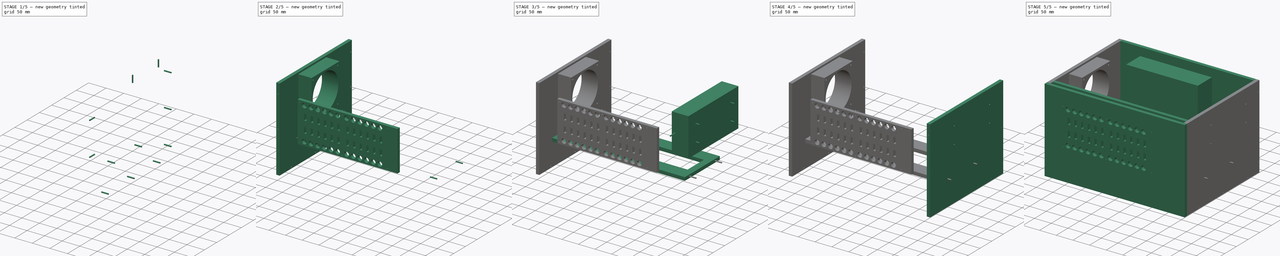
[diagram: build sequence overview — one tinted view per stage of 5, left to right]
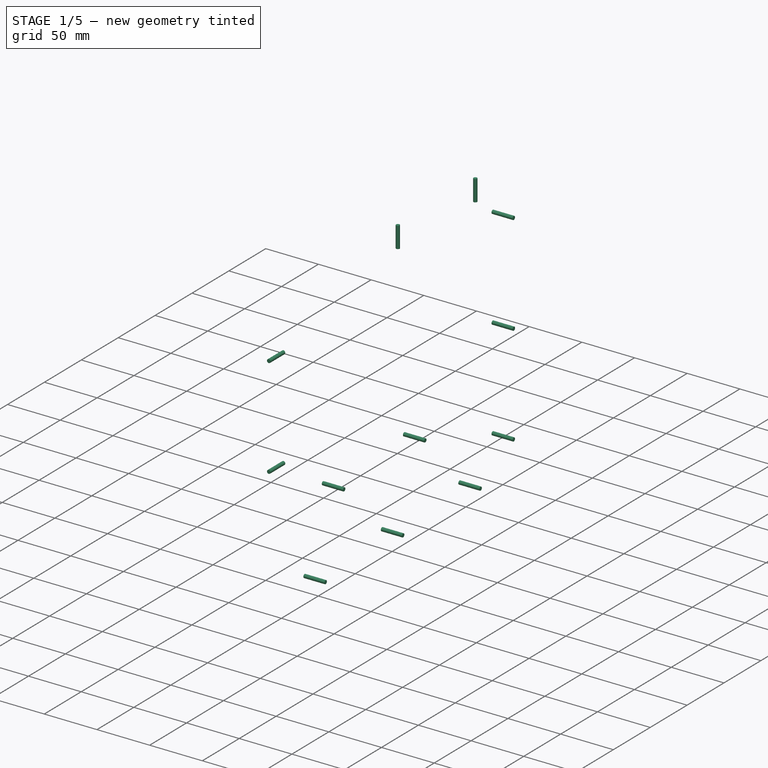
[diagram: stage 1 of 5 — iso view after this stage's code; geometry added in this stage tinted green]
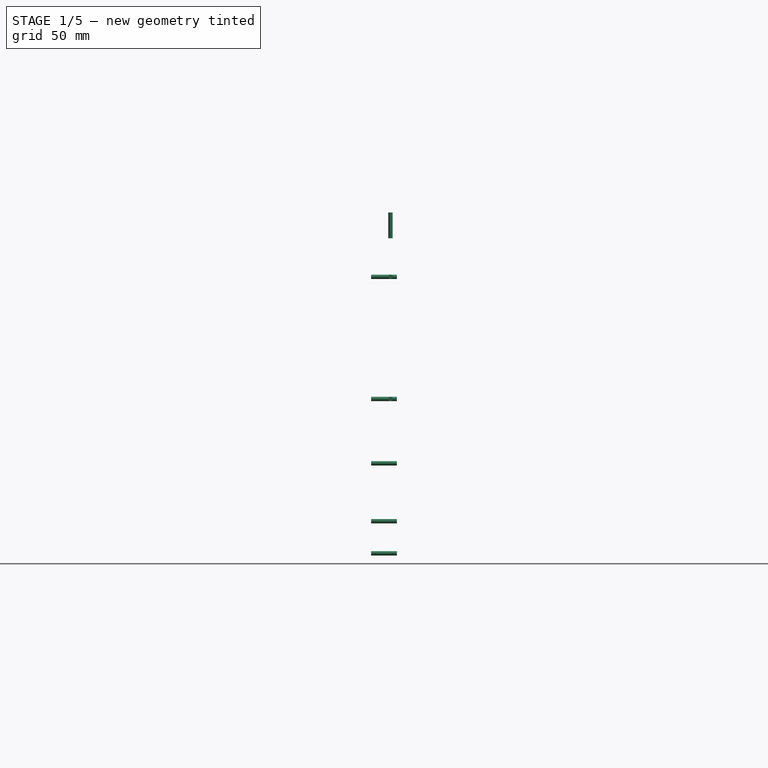
[diagram: stage 1 of 5 — front view after this stage's code; geometry added in this stage tinted green]
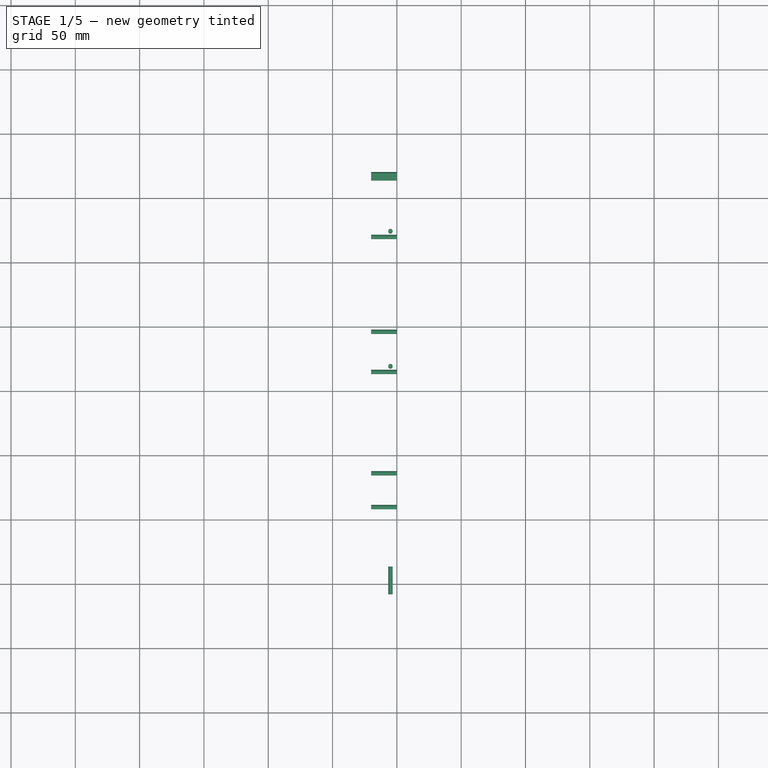
[diagram: stage 1 of 5 — top view after this stage's code; geometry added in this stage tinted green]
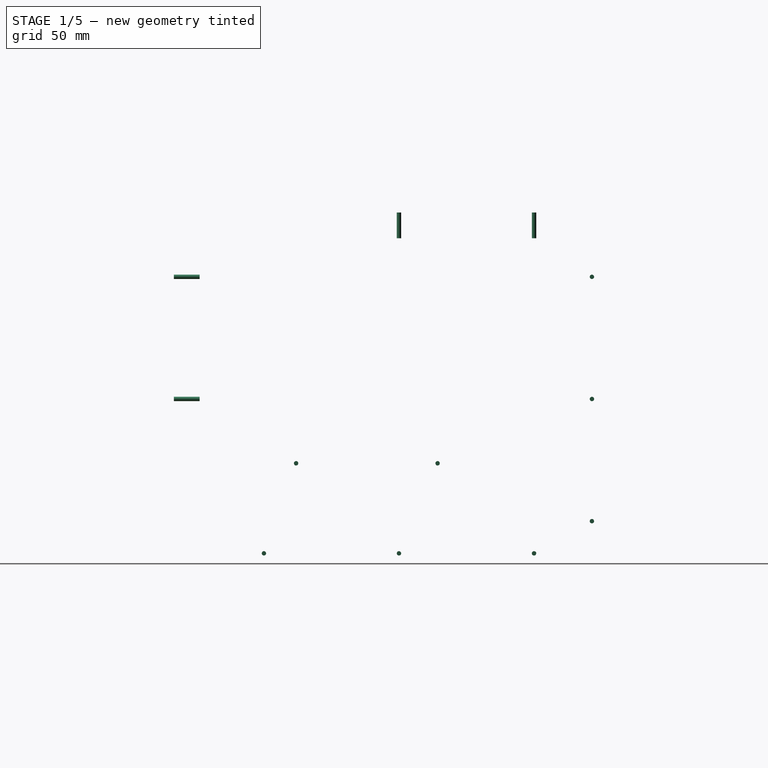
[diagram: stage 1 of 5 — right view after this stage's code; geometry added in this stage tinted green]
FCSTD DOCUMENT  (FreeCAD 0.16R6706 (Git))
Label: MSE-BOX
License: All rights reserved
LicenseURL: http://en.wikipedia.org/wiki/All_rights_reserved
objects: Drawing::FeatureViewPython×43, Part::Cylinder×32, Sketcher::SketchObject×16, PartDesign::Pad×15, Part::Cut×12, Part::MultiFuse×10, Drawing::FeatureViewPart×6, App::DocumentObjectGroup×2, Part::Box×1, Drawing::FeaturePage×1
note: 101 computed .brp shape members not serialized (recipe doc carries the construction recipe); baked Part::Feature solids carry a one-line shape summary decoded from their .brp

FEATURE [Part::Cylinder] Cylinder019  label="串口板左前001"
  Angle = 360
  Height = 20
  Placement = pos=(-220,-65,65) rot=(0,1,0;1.5708rad)
  Radius = 1.7
FEATURE [Part::Cylinder] Cylinder020  label="串口板左后001"
  Angle = 360
  Height = 20
  Placement = pos=(-220,45,65) rot=(0,1,0;1.5708rad)
  Radius = 1.7
FEATURE [App::DocumentObjectGroup] ___001  label="备份"
  Group = -> [Pad015]
FEATURE [Part::Cylinder] Cylinder022  label="下1"
  Angle = 360
  Height = 20
  Placement = pos=(-220,-90,-5) rot=(0,1,0;1.5708rad)
  Radius = 1.7
FEATURE [Part::Cylinder] Cylinder023  label="下002"
  Angle = 360
  Height = 20
  Placement = pos=(-220,15,-5) rot=(0,1,0;1.5708rad)
  Radius = 1.7
FEATURE [Part::Cylinder] Cylinder024  label="下003"
  Angle = 360
  Height = 20
  Placement = pos=(-220,120,-5) rot=(0,1,0;1.5708rad)
  Radius = 1.7
FEATURE [Part::Cylinder] Cylinder025  label="后1"
  Angle = 360
  Height = 20
  Placement = pos=(-220,165,20) rot=(0,1,0;1.5708rad)
  Radius = 1.7
FEATURE [Part::Cylinder] Cylinder026  label="后2"
  Angle = 360
  Height = 20
  Placement = pos=(-220,165,115) rot=(0,1,0;1.5708rad)
  Radius = 1.7
FEATURE [Part::Cylinder] Cylinder027  label="后3"
  Angle = 360
  Height = 20
  Placement = pos=(-220,165,210) rot=(0,1,0;1.5708rad)
  Radius = 1.7
FEATURE [Part::Cylinder] Cylinder031  label="前003"
  Angle = 360
  Height = 20
  Placement = pos=(-205,-140,210) rot=(1,0,0;1.5708rad)
  Radius = 1.7
FEATURE [Part::Cylinder] Cylinder030  label="前002"
  Angle = 360
  Height = 20
  Placement = pos=(-205,-140,115) rot=(1,0,0;1.5708rad)
  Radius = 1.7
FEATURE [Part::Cylinder] Cylinder032  label="上002"
  Angle = 360
  Height = 20
  Placement = pos=(-205,15,240) rot=(0,0,1;0rad)
  Radius = 1.7
FEATURE [Part::Cylinder] Cylinder033  label="上003"
  Angle = 360
  Height = 20
  Placement = pos=(-205,120,240) rot=(0,0,1;0rad)
  Radius = 1.7
FEATURE [Part::MultiFuse] Fusion007
  Shapes = -> [Cylinder022,Cylinder024,Cylinder025,Cylinder026,Cylinder027,Cylinder023]
FEATURE [Part::MultiFuse] Fusion008
  Shapes = -> [Cylinder019,Cylinder020]
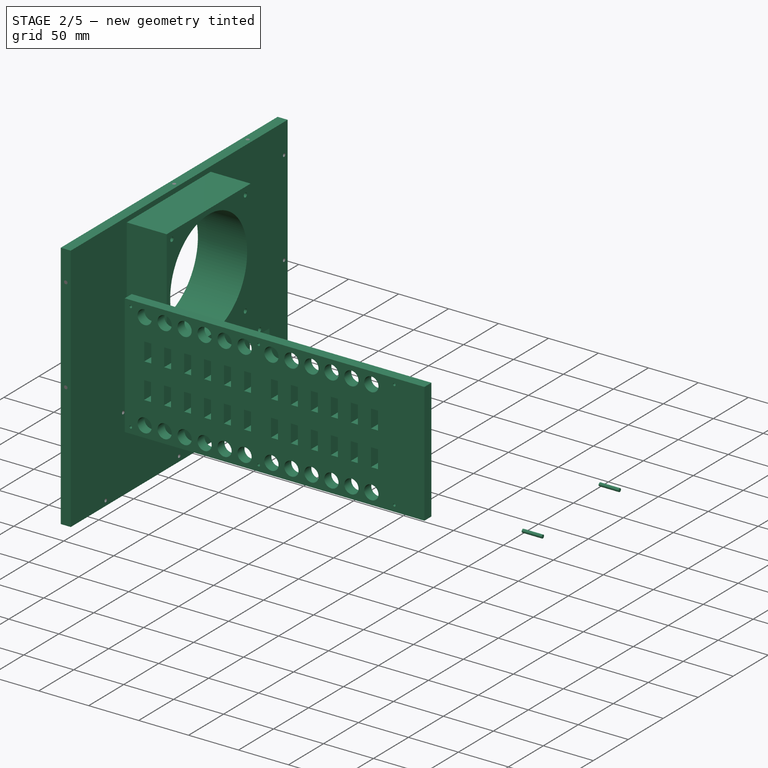
[diagram: stage 2 of 5 — iso view after this stage's code; geometry added in this stage tinted green]
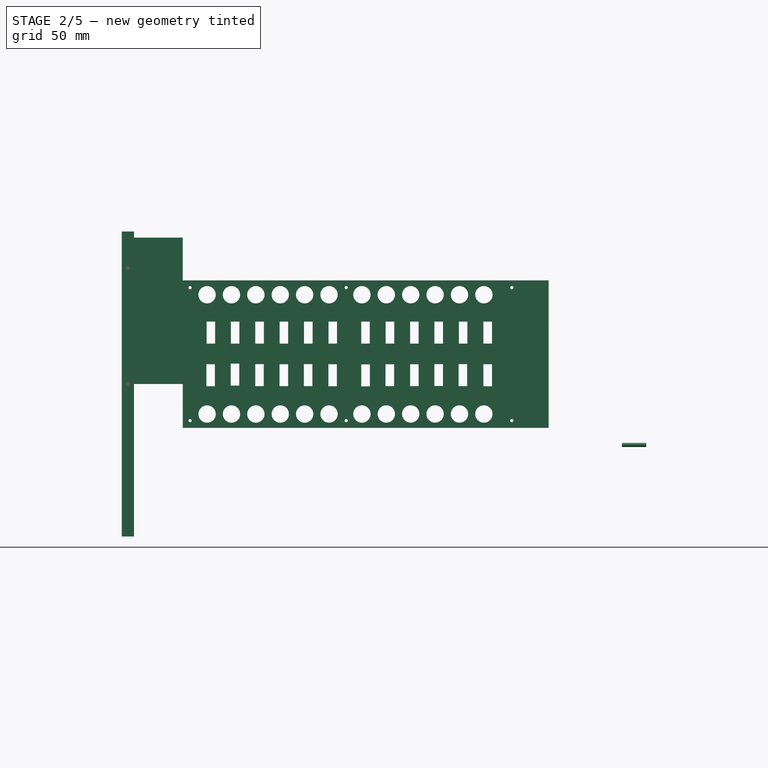
[diagram: stage 2 of 5 — front view after this stage's code; geometry added in this stage tinted green]
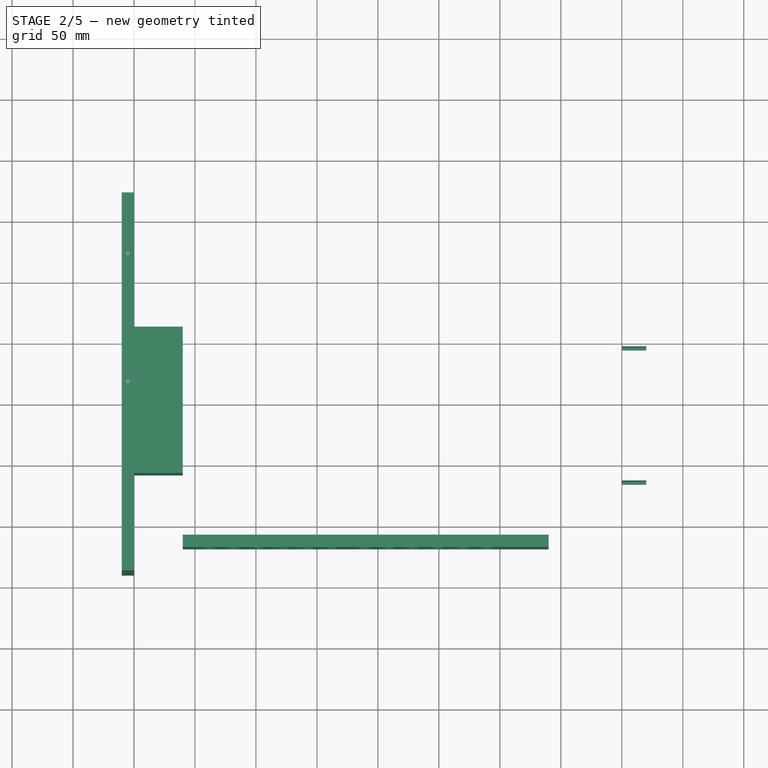
[diagram: stage 2 of 5 — top view after this stage's code; geometry added in this stage tinted green]
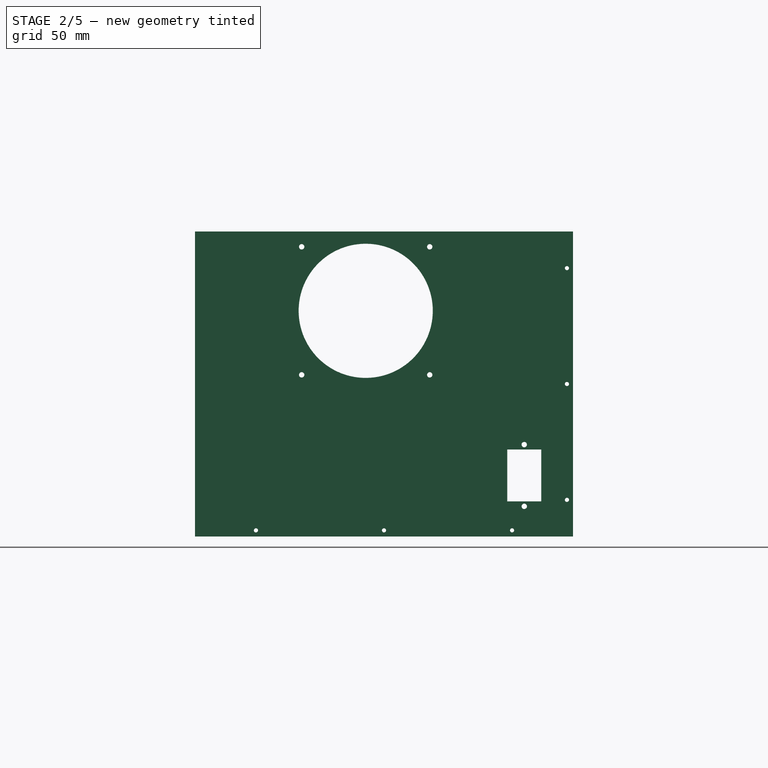
[diagram: stage 2 of 5 — right view after this stage's code; geometry added in this stage tinted green]
FEATURE [Sketcher::SketchObject] Sketch006  label="左侧面板"
  Placement = pos=(-210,0,0) rot=(0.57735,0.57735,0.57735;2.0944rad)
  sketch-geometry (4):
    g0: LineSegment StartX=-140 StartY=240 StartZ=0 EndX=170 EndY=240 EndZ=0
    g1: LineSegment StartX=170 StartY=240 StartZ=0 EndX=170 EndY=-10 EndZ=0
    g2: LineSegment StartX=170 StartY=-10 StartZ=0 EndX=-140 EndY=-10 EndZ=0
    g3: LineSegment StartX=-140 StartY=-10 StartZ=0 EndX=-140 EndY=240 EndZ=0
  constraints (12):
    c: Coincident(g0,g1)
    c: Coincident(g1,g2)
    c: Coincident(g2,g3)
    c: Coincident(g3,g0)
    c: Horizontal(g0)
    c: Horizontal(g2)
    c: Vertical(g1)
    c: Vertical(g3)
    c: DistanceY(g-1,g1) = -10
    c: DistanceX(g-1,g0) = 170
    c: DistanceX(g0,g-1) = 140
    c: DistanceY(g1,g1) = 250
FEATURE [PartDesign::Pad] Pad006  label="左侧"
  Length = 10
  Length2 = 100
  Placement = pos=(-210,0,0) rot=(0.57735,0.57735,0.57735;2.0944rad)
  Sketch = -> Sketch006
  Type = 0
FEATURE [Sketcher::SketchObject] Sketch011
  Placement = pos=(-200,0,175) rot=(0.57735,0.57735,0.57735;2.0944rad)
  sketch-geometry (9):
    g0: LineSegment StartX=-60 StartY=60 StartZ=0 EndX=60 EndY=60 EndZ=0
    g1: LineSegment StartX=60 StartY=60 StartZ=0 EndX=60 EndY=-60 EndZ=0
    g2: LineSegment StartX=60 StartY=-60 StartZ=0 EndX=-60 EndY=-60 EndZ=0
    g3: LineSegment StartX=-60 StartY=-60 StartZ=0 EndX=-60 EndY=60 EndZ=0
    g4: Circle CenterX=-52.5 CenterY=52.5 CenterZ=0 NormalX=0 NormalY=0 NormalZ=1 Radius=2.2
    g5: Circle CenterX=52.5 CenterY=52.5 CenterZ=0 NormalX=0 NormalY=0 NormalZ=1 Radius=2.2
    g6: Circle CenterX=-52.5 CenterY=-52.5 CenterZ=0 NormalX=0 NormalY=0 NormalZ=1 Radius=2.2
    g7: Circle CenterX=52.5 CenterY=-52.5 CenterZ=0 NormalX=0 NormalY=0 NormalZ=1 Radius=2.2
    g8: Circle CenterX=0 CenterY=0 CenterZ=0 NormalX=0 NormalY=0 NormalZ=1 Radius=55
  constraints (22):
    c: Coincident(g0,g1)
    c: Coincident(g1,g2)
    c: Coincident(g2,g3)
    c: Coincident(g3,g0)
    c: Horizontal(g2)
    c: Vertical(g1)
    c: Vertical(g3)
    c: Symmetric(g0,g0,g-2)
    c: Symmetric(g0,g1,g-1)
    c: DistanceY(g1,g1) = 120
    c: DistanceX(g0,g0) = 120
    c: Symmetric(g6,g7,g-2)
    c: Symmetric(g4,g5,g-2)
    c: Symmetric(g4,g6,g-1)
    c: DistanceX(g6,g7) = 105
    c: DistanceY(g6,g4) = 105
    c: Radius(g6) = 2.2
    c: Radius(g7) = 2.2
    c: Radius(g4) = 2.2
    c: Radius(g5) = 2.2
    c: Coincident(g8,g-1)
    c: Radius(g8) = 55
FEATURE [PartDesign::Pad] Pad011  label="风扇"
  Length = 40
  Length2 = 100
  Placement = pos=(-200,0,175) rot=(0.57735,0.57735,0.57735;2.0944rad)
  Sketch = -> Sketch011
  Type = 0
FEATURE [Sketcher::SketchObject] Sketch012
  Placement = pos=(-213,130,40) rot=(0.57735,0.57735,0.57735;2.0944rad)
  sketch-geometry (6):
    g0: Circle CenterX=0 CenterY=25.3 CenterZ=0 NormalX=0 NormalY=0 NormalZ=1 Radius=2.2
    g1: Circle CenterX=0 CenterY=-25.3 CenterZ=0 NormalX=0 NormalY=0 NormalZ=1 Radius=2.2
    g2: LineSegment StartX=-13.9 StartY=21.25 StartZ=0 EndX=13.9 EndY=21.25 EndZ=0
    g3: LineSegment StartX=13.9 StartY=21.25 StartZ=0 EndX=13.9 EndY=-21.25 EndZ=0
    g4: LineSegment StartX=13.9 StartY=-21.25 StartZ=0 EndX=-13.9 EndY=-21.25 EndZ=0
    g5: LineSegment StartX=-13.9 StartY=-21.25 StartZ=0 EndX=-13.9 EndY=21.25 EndZ=0
  constraints (16):
    c: Symmetric(g0,g1,g-1)
    c: Radius(g0) = 2.2
    c: Equal(g0,g1)
    c: Coincident(g2,g3)
    c: Coincident(g3,g4)
    c: Coincident(g4,g5)
    c: Coincident(g5,g2)
    c: Horizontal(g2)
    c: Horizontal(g4)
    c: Vertical(g3)
    c: Vertical(g5)
    c: Symmetric(g2,g3,g-1)
    c: DistanceY(g3,g3) = 42.5
    c: DistanceY(g1,g0) = 50.6
    c: DistanceX(g2,g2) = 27.8
    c: Symmetric(g2,g2,g-2)
FEATURE [PartDesign::Pad] Pad012  label="品形插座"
  Length = 30
  Length2 = 100
  Placement = pos=(-213,130,40) rot=(0.57735,0.57735,0.57735;2.0944rad)
  Sketch = -> Sketch012
  Type = 0
FEATURE [Sketcher::SketchObject] Sketch015
  Placement = pos=(-160,-110,200) rot=(0.57735,0.57735,-0.57735;2.0944rad)
  sketch-geometry (134):
    g0: LineSegment StartX=0 StartY=300 StartZ=0 EndX=121 EndY=300 EndZ=0
    g1: LineSegment StartX=121 StartY=300 StartZ=0 EndX=121 EndY=0 EndZ=0
    g2: LineSegment StartX=121 StartY=0 StartZ=0 EndX=0 EndY=0 EndZ=0
    g3: LineSegment StartX=0 StartY=0 StartZ=0 EndX=0 EndY=300 EndZ=0
    g4: Circle CenterX=11.81 CenterY=19.93 CenterZ=0 NormalX=0 NormalY=0 NormalZ=1 Radius=7.1
    g5: Circle CenterX=11.81 CenterY=39.93 CenterZ=0 NormalX=0 NormalY=0 NormalZ=1 Radius=7.1
    g6: Circle CenterX=11.81 CenterY=59.93 CenterZ=0 NormalX=0 NormalY=0 NormalZ=1 Radius=7.1
    g7: Circle CenterX=11.81 CenterY=79.93 CenterZ=0 NormalX=0 NormalY=0 NormalZ=1 Radius=7.1
    g8: Circle CenterX=11.81 CenterY=99.93 CenterZ=0 NormalX=0 NormalY=0 NormalZ=1 Radius=7.1
    g9: Circle CenterX=11.81 CenterY=119.93 CenterZ=0 NormalX=0 NormalY=0 NormalZ=1 Radius=7.1
    g10: Circle CenterX=11.81 CenterY=146.89 CenterZ=0 NormalX=0 NormalY=0 NormalZ=1 Radius=7.1
    g11: Circle CenterX=11.81 CenterY=166.89 CenterZ=0 NormalX=0 NormalY=0 NormalZ=1 Radius=7.1
    g12: Circle CenterX=11.81 CenterY=186.89 CenterZ=0 NormalX=0 NormalY=0 NormalZ=1 Radius=7.1
    g13: Circle CenterX=11.81 CenterY=246.89 CenterZ=0 NormalX=0 NormalY=0 NormalZ=1 Radius=7.1
    g14: Circle CenterX=109.58 CenterY=246.89 CenterZ=0 NormalX=0 NormalY=0 NormalZ=1 Radius=7.1
    g15: Circle CenterX=11.81 CenterY=226.89 CenterZ=0 NormalX=0 NormalY=0 NormalZ=1 Radius=7.1
    g16: Circle CenterX=11.81 CenterY=206.89 CenterZ=0 NormalX=0 NormalY=0 NormalZ=1 Radius=7.1
    g17: Circle CenterX=109.58 CenterY=186.89 CenterZ=0 NormalX=0 NormalY=0 NormalZ=1 Radius=7.1
    g18: Circle CenterX=109.58 CenterY=226.89 CenterZ=0 NormalX=0 NormalY=0 NormalZ=1 Radius=7.1
    g19: Circle CenterX=109.58 CenterY=206.89 CenterZ=0 NormalX=0 NormalY=0 NormalZ=1 Radius=7.1
    g20: Circle CenterX=109.58 CenterY=166.89 CenterZ=0 NormalX=0 NormalY=0 NormalZ=1 Radius=7.1
    g21: Circle CenterX=109.63 CenterY=146.89 CenterZ=0 NormalX=0 NormalY=0 NormalZ=1 Radius=7.1
    g22: Circle CenterX=109.63 CenterY=119.95 CenterZ=0 NormalX=0 NormalY=0 NormalZ=1 Radius=7.1
    g23: Circle CenterX=109.63 CenterY=99.95 CenterZ=0 NormalX=0 NormalY=0 NormalZ=1 Radius=7.1
    g24: Circle CenterX=109.63 CenterY=79.95 CenterZ=0 NormalX=0 NormalY=0 NormalZ=1 Radius=7.1
    g25: Circle CenterX=109.63 CenterY=59.95 CenterZ=0 NormalX=0 NormalY=0 NormalZ=1 Radius=7.1
    g26: Circle CenterX=109.63 CenterY=39.95 CenterZ=0 NormalX=0 NormalY=0 NormalZ=1 Radius=7.1
    g27: Circle CenterX=109.63 CenterY=19.95 CenterZ=0 NormalX=0 NormalY=0 NormalZ=1 Radius=7.1
    g28: Circle CenterX=5.9944 CenterY=5.9944 CenterZ=0 NormalX=0 NormalY=0 NormalZ=1 Radius=1.3
    g29: Circle CenterX=5.9944 CenterY=134 CenterZ=0 NormalX=0 NormalY=0 NormalZ=1 Radius=1.3
    g30: Circle CenterX=5.9944 CenterY=269.79 CenterZ=0 NormalX=0 NormalY=0 NormalZ=1 Radius=1.3
    g31: Circle CenterX=115 CenterY=269.79 CenterZ=0 NormalX=0 NormalY=0 NormalZ=1 Radius=1.3
    g32: Circle CenterX=115 CenterY=5.9944 CenterZ=0 NormalX=0 NormalY=0 NormalZ=1 Radius=1.3
    g33: Circle CenterX=115 CenterY=134 CenterZ=0 NormalX=0 NormalY=0 NormalZ=1 Radius=1.3
    g34: LineSegment StartX=33.87 StartY=26.57 StartZ=0 EndX=51.87 EndY=26.57 EndZ=0
    g35: LineSegment StartX=51.87 StartY=26.57 StartZ=0 EndX=51.87 EndY=19.57 EndZ=0
    g36: LineSegment StartX=51.87 StartY=19.57 StartZ=0 EndX=33.87 EndY=19.57 EndZ=0
    g37: LineSegment StartX=33.87 StartY=19.57 StartZ=0 EndX=33.87 EndY=26.57 EndZ=0
    g38: LineSegment StartX=33.87 StartY=66.47 StartZ=0 EndX=51.87 EndY=66.47 EndZ=0
    g39: LineSegment StartX=51.87 StartY=66.47 StartZ=0 EndX=51.87 EndY=59.47 EndZ=0
    g40: LineSegment StartX=51.87 StartY=59.47 StartZ=0 EndX=33.87 EndY=59.47 EndZ=0
    g41: LineSegment StartX=33.87 StartY=59.47 StartZ=0 EndX=33.87 EndY=66.47 EndZ=0
    g42: LineSegment StartX=33.87 StartY=86.38 StartZ=0 EndX=51.87 EndY=86.38 EndZ=0
    g43: LineSegment StartX=51.87 StartY=86.38 StartZ=0 EndX=51.87 EndY=79.38 EndZ=0
    g44: LineSegment StartX=51.87 StartY=79.38 StartZ=0 EndX=33.87 EndY=79.38 EndZ=0
    g45: LineSegment StartX=33.87 StartY=79.38 StartZ=0 EndX=33.87 EndY=86.38 EndZ=0
    g46: LineSegment StartX=33.87 StartY=46.4 StartZ=0 EndX=51.87 EndY=46.4 EndZ=0
    g47: LineSegment StartX=51.87 StartY=46.4 StartZ=0 EndX=51.87 EndY=39.4 EndZ=0
    g48: LineSegment StartX=51.87 StartY=39.4 StartZ=0 EndX=33.87 EndY=39.4 EndZ=0
    g49: LineSegment StartX=33.87 StartY=39.4 StartZ=0 EndX=33.87 EndY=46.4 EndZ=0
    g50: LineSegment StartX=33.87 StartY=153.36 StartZ=0 EndX=51.87 EndY=153.36 EndZ=0
    g51: LineSegment StartX=51.87 StartY=153.36 StartZ=0 EndX=51.87 EndY=146.36 EndZ=0
    g52: LineSegment StartX=51.87 StartY=146.36 StartZ=0 EndX=33.87 EndY=146.36 EndZ=0
    g53: LineSegment StartX=33.87 StartY=146.36 StartZ=0 EndX=33.87 EndY=153.36 EndZ=0
    g54: LineSegment StartX=33.87 StartY=126.46 StartZ=0 EndX=51.87 EndY=126.46 EndZ=0
    g55: LineSegment StartX=51.87 StartY=126.46 StartZ=0 EndX=51.87 EndY=119.46 EndZ=0
    g56: LineSegment StartX=51.87 StartY=119.46 StartZ=0 EndX=33.87 EndY=119.46 EndZ=0
    g57: LineSegment StartX=33.87 StartY=119.46 StartZ=0 EndX=33.87 EndY=126.46 EndZ=0
    g58: LineSegment StartX=33.87 StartY=106.43 StartZ=0 EndX=51.87 EndY=106.43 EndZ=0
    g59: LineSegment StartX=51.87 StartY=106.43 StartZ=0 EndX=51.87 EndY=99.43 EndZ=0
    g60: LineSegment StartX=51.87 StartY=99.43 StartZ=0 EndX=33.87 EndY=99.43 EndZ=0
    g61: LineSegment StartX=33.87 StartY=99.43 StartZ=0 EndX=33.87 EndY=106.43 EndZ=0
    g62: LineSegment StartX=33.87 StartY=173.36 StartZ=0 EndX=51.87 EndY=173.36 EndZ=0
    g63: LineSegment StartX=51.87 StartY=173.36 StartZ=0 EndX=51.87 EndY=166.36 EndZ=0
    g64: LineSegment StartX=51.87 StartY=166.36 StartZ=0 EndX=33.87 EndY=166.36 EndZ=0
    g65: LineSegment StartX=33.87 StartY=166.36 StartZ=0 EndX=33.87 EndY=173.36 EndZ=0
    g66: LineSegment StartX=51.87 StartY=213.34 StartZ=0 EndX=33.87 EndY=213.34 EndZ=0
    g67: LineSegment StartX=33.87 StartY=213.34 StartZ=0 EndX=33.87 EndY=206.34 EndZ=0
    g68: LineSegment StartX=33.87 StartY=206.34 StartZ=0 EndX=51.87 EndY=206.34 EndZ=0
    g69: LineSegment StartX=51.87 StartY=206.34 StartZ=0 EndX=51.87 EndY=213.34 EndZ=0
    g70: LineSegment StartX=33.87 StartY=193.39 StartZ=0 EndX=51.87 EndY=193.39 EndZ=0
    g71: LineSegment StartX=51.87 StartY=193.39 StartZ=0 EndX=51.87 EndY=186.39 EndZ=0
    g72: LineSegment StartX=51.87 StartY=186.39 StartZ=0 EndX=33.87 EndY=186.39 EndZ=0
    g73: LineSegment StartX=33.87 StartY=186.39 StartZ=0 EndX=33.87 EndY=193.39 EndZ=0
    g74: LineSegment StartX=33.87 StartY=253.52 StartZ=0 EndX=51.87 EndY=253.52 EndZ=0
    g75: LineSegment StartX=51.87 StartY=253.52 StartZ=0 EndX=51.87 EndY=246.52 EndZ=0
    g76: LineSegment StartX=51.87 StartY=246.52 StartZ=0 EndX=33.87 EndY=246.52 EndZ=0
    g77: LineSegment StartX=33.87 StartY=246.52 StartZ=0 EndX=33.87 EndY=253.52 EndZ=0
    g78: LineSegment StartX=33.8701 StartY=233.4 StartZ=0 EndX=51.8701 EndY=233.4 EndZ=0
    g79: LineSegment StartX=51.8701 StartY=233.4 StartZ=0 EndX=51.8701 EndY=226.4 EndZ=0
    g80: LineSegment StartX=51.8701 StartY=226.4 StartZ=0 EndX=33.8701 EndY=226.4 EndZ=0
    g81: LineSegment StartX=33.8701 StartY=226.4 StartZ=0 EndX=33.8701 EndY=233.4 EndZ=0
    g82: LineSegment StartX=68.82 StartY=26.37 StartZ=0 EndX=86.82 EndY=26.37 EndZ=0
    g83: LineSegment StartX=86.82 StartY=26.37 StartZ=0 EndX=86.82 EndY=19.37 EndZ=0
    g84: LineSegment StartX=86.82 StartY=19.37 StartZ=0 EndX=68.82 EndY=19.37 EndZ=0
    g85: LineSegment StartX=68.82 StartY=19.37 StartZ=0 EndX=68.82 EndY=26.37 EndZ=0
    g86: LineSegment StartX=68.3352 StartY=46.33 StartZ=0 EndX=86.3352 EndY=46.33 EndZ=0
    g87: LineSegment StartX=86.3352 StartY=46.33 StartZ=0 EndX=86.3352 EndY=39.33 EndZ=0
    g88: LineSegment StartX=86.3352 StartY=39.33 StartZ=0 EndX=68.3352 EndY=39.33 EndZ=0
    g89: LineSegment StartX=68.3352 StartY=39.33 StartZ=0 EndX=68.3352 EndY=46.33 EndZ=0
    g90: LineSegment StartX=68.6925 StartY=66.4 StartZ=0 EndX=86.6925 EndY=66.4 EndZ=0
    g91: LineSegment StartX=86.6925 StartY=66.4 StartZ=0 EndX=86.6925 EndY=59.4 EndZ=0
    g92: LineSegment StartX=86.6925 StartY=59.4 StartZ=0 EndX=68.6925 EndY=59.4 EndZ=0
    g93: LineSegment StartX=68.6925 StartY=59.4 StartZ=0 EndX=68.6925 EndY=66.4 EndZ=0
    g94: LineSegment StartX=68.7894 StartY=86.34 StartZ=0 EndX=86.7894 EndY=86.34 EndZ=0
    g95: LineSegment StartX=86.7894 StartY=86.34 StartZ=0 EndX=86.7894 EndY=79.34 EndZ=0
    g96: LineSegment StartX=86.7894 StartY=79.34 StartZ=0 EndX=68.7894 EndY=79.34 EndZ=0
    g97: LineSegment StartX=68.7894 StartY=79.34 StartZ=0 EndX=68.7894 EndY=86.34 EndZ=0
    g98: LineSegment StartX=68.733 StartY=106.27 StartZ=0 EndX=86.733 EndY=106.27 EndZ=0
    g99: LineSegment StartX=86.733 StartY=106.27 StartZ=0 EndX=86.733 EndY=99.27 EndZ=0
    g100: LineSegment StartX=86.733 StartY=99.27 StartZ=0 EndX=68.733 EndY=99.27 EndZ=0
    g101: LineSegment StartX=68.733 StartY=99.27 StartZ=0 EndX=68.733 EndY=106.27 EndZ=0
    g102: LineSegment StartX=68.82 StartY=126.36 StartZ=0 EndX=86.82 EndY=126.36 EndZ=0
    g103: LineSegment StartX=86.82 StartY=126.36 StartZ=0 EndX=86.82 EndY=119.36 EndZ=0
    g104: LineSegment StartX=86.82 StartY=119.36 StartZ=0 EndX=68.82 EndY=119.36 EndZ=0
    g105: LineSegment StartX=68.82 StartY=119.36 StartZ=0 EndX=68.82 EndY=126.36 EndZ=0
    g106: LineSegment StartX=68.8995 StartY=153.372 StartZ=0 EndX=86.8995 EndY=153.372 EndZ=0
    g107: LineSegment StartX=86.8995 StartY=153.372 StartZ=0 EndX=86.8995 EndY=146.372 EndZ=0
    g108: LineSegment StartX=86.8995 StartY=146.372 StartZ=0 EndX=68.8995 EndY=146.372 EndZ=0
    g109: LineSegment StartX=68.8995 StartY=146.372 StartZ=0 EndX=68.8995 EndY=153.372 EndZ=0
    g110: LineSegment StartX=68.7731 StartY=173.267 StartZ=0 EndX=86.7731 EndY=173.267 EndZ=0
    g111: LineSegment StartX=86.7731 StartY=173.267 StartZ=0 EndX=86.7731 EndY=166.267 EndZ=0
    g112: LineSegment StartX=86.7731 StartY=166.267 StartZ=0 EndX=68.7731 EndY=166.267 EndZ=0
    g113: LineSegment StartX=68.7731 StartY=166.267 StartZ=0 EndX=68.7731 EndY=173.267 EndZ=0
    g114: LineSegment StartX=68.781 StartY=193.39 StartZ=0 EndX=86.781 EndY=193.39 EndZ=0
    g115: LineSegment StartX=86.781 StartY=193.39 StartZ=0 EndX=86.781 EndY=186.39 EndZ=0
    g116: LineSegment StartX=86.781 StartY=186.39 StartZ=0 EndX=68.781 EndY=186.39 EndZ=0
    g117: LineSegment StartX=68.781 StartY=186.39 StartZ=0 EndX=68.781 EndY=193.39 EndZ=0
    g118: LineSegment StartX=68.6717 StartY=213.338 StartZ=0 EndX=86.6717 EndY=213.338 EndZ=0
    g119: LineSegment StartX=86.6717 StartY=213.338 StartZ=0 EndX=86.6717 EndY=206.338 EndZ=0
    g120: LineSegment StartX=86.6717 StartY=206.338 StartZ=0 EndX=68.6717 EndY=206.338 EndZ=0
    g121: LineSegment StartX=68.6717 StartY=206.338 StartZ=0 EndX=68.6717 EndY=213.338 EndZ=0
    g122: LineSegment StartX=68.6927 StartY=233.2 StartZ=0 EndX=86.6927 EndY=233.2 EndZ=0
    g123: LineSegment StartX=86.6927 StartY=233.2 StartZ=0 EndX=86.6927 EndY=226.2 EndZ=0
    g124: LineSegment StartX=86.6927 StartY=226.2 StartZ=0 EndX=68.6927 EndY=226.2 EndZ=0
    g125: LineSegment StartX=68.6927 StartY=226.2 StartZ=0 EndX=68.6927 EndY=233.2 EndZ=0
    g126: LineSegment StartX=68.82 StartY=253.52 StartZ=0 EndX=86.82 EndY=253.52 EndZ=0
    g127: LineSegment StartX=86.82 StartY=253.52 StartZ=0 EndX=86.82 EndY=246.52 EndZ=0
    g128: LineSegment StartX=86.82 StartY=246.52 StartZ=0 EndX=68.82 EndY=246.52 EndZ=0
    g129: LineSegment StartX=68.82 StartY=246.52 StartZ=0 EndX=68.82 EndY=253.52 EndZ=0
    g130: LineSegment StartX=-39.8783 StartY=360.002 StartZ=0 EndX=210.122 EndY=360.002 EndZ=0
    g131: LineSegment StartX=210.122 StartY=360.002 StartZ=0 EndX=210.122 EndY=-39.9981 EndZ=0
    g132: LineSegment StartX=210.122 StartY=-39.9981 StartZ=0 EndX=-39.8783 EndY=-39.9981 EndZ=0
    g133: LineSegment StartX=-39.8783 StartY=-39.9981 StartZ=0 EndX=-39.8783 EndY=360.002 EndZ=0
  constraints (346):
    c: Coincident(g0,g1)
    c: Coincident(g1,g2)
    c: Coincident(g2,g3)
    c: Coincident(g3,g0)
    c: Horizontal(g0)
    c: Horizontal(g2)
    c: Vertical(g1)
    c: Vertical(g3)
    c: Coincident(g2,g-1)
    c: DistanceX(g0) = 121
    c: DistanceY(g0) = 300
    c: Radius(g4) = 7.1
    c: DistanceX(g4) = 11.81
    c: DistanceY(g4) = 19.93
    c: Equal(g5,g6)
    c: DistanceY(g5) = 39.93
    c: DistanceY(g6) = 59.93
    c: Equal(g6,g7)
    c: DistanceY(g7) = 79.93
    c: Equal(g7,g8)
    c: Equal(g8,g9)
    c: Equal(g9,g10)
    c: DistanceY(g8) = 99.93
    c: DistanceY(g9) = 119.93
    c: DistanceY(g10) = 146.89
    c: Equal(g10,g11)
    c: Equal(g11,g12)
    c: DistanceY(g11) = 166.89
    c: DistanceY(g12) = 186.89
    c: Equal(g12,g16)
    c: Equal(g16,g15)
    c: Equal(g15,g14)
    c: Equal(g14,g13)
    c: DistanceY(g16) = 206.89
    c: DistanceY(g15) = 226.89
    c: DistanceY(g13) = 246.89
    c: DistanceX(g14) = 109.58
    c: DistanceY(g14) = 246.89
    c: DistanceX(g18) = 109.58
    c: DistanceY(g18) = 226.89
    c: Equal(g14,g18)
    c: Equal(g18,g19)
    c: Equal(g19,g17)
    c: Equal(g17,g20)
    c: Equal(g20,g21)
    c: Equal(g21,g22)
    c: Equal(g22,g23)
    c: Equal(g23,g24)
    c: Equal(g24,g25)
    c: Equal(g25,g26)
    c: Equal(g26,g27)
    c: DistanceX(g19) = 109.58
    c: DistanceY(g19) = 206.89
    c: DistanceX(g27) = 109.63
    c: DistanceY(g27) = 19.95
    c: DistanceY(g26) = 39.95
    c: DistanceY(g25) = 59.95
    c: DistanceY(g24) = 79.95
    c: DistanceY(g23) = 99.95
    c: DistanceY(g22) = 119.95
    c: DistanceX(g21) = 109.63
    c: DistanceY(g21) = 146.89
    c: DistanceX(g20) = 109.58
    c: DistanceY(g20) = 166.89
    c: DistanceX(g17) = 109.58
    c: DistanceY(g17) = 186.89
    c: Radius(g28) = 1.3
    c: DistanceX(g28) = 5.9944
    c: DistanceY(g28) = 5.9944
    c: Equal(g28,g29)
    c: Equal(g29,g30)
    c: Equal(g30,g32)
    c: Equal(g32,g33)
    c: Equal(g33,g31)
    c: Radius(g5) = 7.1
    c: DistanceX(g29) = 5.9944
    c: DistanceY(g29) = 134
    c: DistanceX(g30) = 5.9944
    c: DistanceY(g30) = 269.79
    c: DistanceX(g32) = 115
    c: DistanceY(g32) = 5.9944
    c: DistanceX(g33) = 115
    c: DistanceY(g33) = 134
    c: DistanceX(g31) = 115
    c: DistanceY(g31) = 269.79
    c: Coincident(g34,g35)
    c: Coincident(g35,g36)
    c: Coincident(g36,g37)
    c: Coincident(g37,g34)
    c: Horizontal(g34)
    c: Horizontal(g36)
    c: Vertical(g35)
    c: Vertical(g37)
    c: DistanceX(g34) = 51.87
    c: Coincident(g38,g39)
    c: Coincident(g39,g40)
    c: Coincident(g40,g41)
    c: Coincident(g41,g38)
    c: Horizontal(g38)
    c: Horizontal(g40)
    c: Vertical(g39)
    c: Vertical(g41)
    c: DistanceX(g36,g36) = 18
    c: DistanceY(g35,g35) = 7
    c: Equal(g36,g38)
    c: Equal(g35,g39)
    c: Coincident(g42,g43)
    c: Coincident(g43,g44)
    c: Coincident(g44,g45)
    c: Coincident(g45,g42)
    c: Horizontal(g42)
    c: Horizontal(g44)
    c: Vertical(g43)
    c: Vertical(g45)
    c: Coincident(g46,g47)
    c: Coincident(g47,g48)
    c: Coincident(g48,g49)
    c: Coincident(g49,g46)
    c: Horizontal(g46)
    c: Horizontal(g48)
    c: Vertical(g47)
    c: Vertical(g49)
    c: Coincident(g50,g51)
    c: Coincident(g51,g52)
    c: Coincident(g52,g53)
    c: Coincident(g53,g50)
    c: Horizontal(g50)
    c: Horizontal(g52)
    c: Vertical(g51)
    c: Vertical(g53)
    c: Coincident(g54,g55)
    c: Coincident(g55,g56)
    c: Coincident(g56,g57)
    c: Coincident(g57,g54)
    c: Horizontal(g54)
    c: Horizontal(g56)
    c: Vertical(g55)
    c: Vertical(g57)
    c: Coincident(g58,g59)
    c: Coincident(g59,g60)
    c: Coincident(g60,g61)
    c: Coincident(g61,g58)
    c: Horizontal(g58)
    c: Horizontal(g60)
    c: Vertical(g59)
    c: Vertical(g61)
    c: Coincident(g62,g63)
    c: Coincident(g63,g64)
    c: Coincident(g64,g65)
    c: Coincident(g65,g62)
    c: Horizontal(g62)
    c: Horizontal(g64)
    c: Vertical(g63)
    c: Vertical(g65)
    c: Coincident(g66,g67)
    c: Coincident(g67,g68)
    c: Coincident(g68,g69)
    c: Coincident(g69,g66)
    c: Horizontal(g66)
    c: Horizontal(g68)
    c: Vertical(g67)
    c: Vertical(g69)
    c: Coincident(g70,g71)
    c: Coincident(g71,g72)
    c: Coincident(g72,g73)
    c: Coincident(g73,g70)
    c: Horizontal(g70)
    c: Horizontal(g72)
    c: Vertical(g71)
    c: Vertical(g73)
    c: Coincident(g74,g75)
    c: Coincident(g75,g76)
    c: Coincident(g76,g77)
    c: Coincident(g77,g74)
    c: Horizontal(g74)
    c: Horizontal(g76)
    c: Vertical(g75)
    c: Vertical(g77)
    c: Coincident(g78,g79)
    c: Coincident(g79,g80)
    c: Coincident(g80,g81)
    c: Coincident(g81,g78)
    c: Horizontal(g78)
    c: Horizontal(g80)
    c: Vertical(g79)
    c: Vertical(g81)
    c: Equal(g38,g42)
    c: Equal(g42,g58)
    c: Equal(g58,g46)
    c: Equal(g39,g59)
    c: Equal(g59,g43)
    c: Equal(g43,g47)
    c: Equal(g36,g64)
    c: Equal(g64,g54)
    c: Equal(g54,g50)
    c: Equal(g50,g70)
    c: Equal(g70,g66)
    c: Equal(g66,g78)
    c: Equal(g78,g74)
    c: Equal(g35,g63)
    c: Equal(g63,g55)
    c: Equal(g55,g51)
    c: Equal(g51,g71)
    c: Equal(g71,g67)
    c: Equal(g67,g79)
    c: Equal(g79,g77)
    c: DistanceY(g54) = 126.46
    c: Coincident(g82,g83)
    c: Coincident(g83,g84)
    c: Coincident(g84,g85)
    c: Coincident(g85,g82)
    c: Horizontal(g82)
    c: Horizontal(g84)
    c: Vertical(g83)
    c: Vertical(g85)
    c: Coincident(g86,g87)
    c: Coincident(g87,g88)
    c: Coincident(g88,g89)
    c: Coincident(g89,g86)
    c: Horizontal(g86)
    c: Horizontal(g88)
    c: Vertical(g87)
    c: Vertical(g89)
    c: Coincident(g90,g91)
    c: Coincident(g91,g92)
    c: Coincident(g92,g93)
    c: Coincident(g93,g90)
    c: Horizontal(g90)
    c: Horizontal(g92)
    c: Vertical(g91)
    c: Vertical(g93)
    c: Coincident(g94,g95)
    c: Coincident(g95,g96)
    c: Coincident(g96,g97)
    c: Coincident(g97,g94)
    c: Horizontal(g94)
    c: Horizontal(g96)
    c: Vertical(g95)
    c: Vertical(g97)
    c: Coincident(g98,g99)
    c: Coincident(g99,g100)
    c: Coincident(g100,g101)
    c: Coincident(g101,g98)
    c: Horizontal(g98)
    c: Horizontal(g100)
    c: Vertical(g99)
    c: Vertical(g101)
    c: Coincident(g102,g103)
    c: Coincident(g103,g104)
    c: Coincident(g104,g105)
    c: Coincident(g105,g102)
    c: Horizontal(g102)
    c: Horizontal(g104)
    c: Vertical(g103)
    c: Vertical(g105)
    c: Coincident(g106,g107)
    c: Coincident(g107,g108)
    c: Coincident(g108,g109)
    c: Coincident(g109,g106)
    c: Horizontal(g106)
    c: Horizontal(g108)
    c: Vertical(g107)
    c: Vertical(g109)
    c: Coincident(g110,g111)
    c: Coincident(g111,g112)
    c: Coincident(g112,g113)
    c: Coincident(g113,g110)
    c: Horizontal(g110)
    c: Horizontal(g112)
    c: Vertical(g111)
    c: Vertical(g113)
    c: Coincident(g114,g115)
    c: Coincident(g115,g116)
    c: Coincident(g116,g117)
    c: Coincident(g117,g114)
    c: Horizontal(g114)
    c: Vertical(g115)
    c: Vertical(g117)
    c: Coincident(g118,g119)
    c: Coincident(g119,g120)
    c: Coincident(g120,g121)
    c: Coincident(g121,g118)
    c: Horizontal(g118)
    c: Vertical(g119)
    c: Vertical(g121)
    c: Coincident(g122,g123)
    c: Coincident(g123,g124)
    c: Coincident(g124,g125)
    c: Coincident(g125,g122)
    c: Horizontal(g122)
    c: Horizontal(g124)
    c: Vertical(g123)
    c: Vertical(g125)
    c: Coincident(g126,g127)
    c: Coincident(g127,g128)
    c: Coincident(g128,g129)
    c: Coincident(g129,g126)
    c: Horizontal(g126)
    c: Horizontal(g128)
    c: Vertical(g127)
    c: Vertical(g129)
    c: Equal(g74,g126)
    c: Equal(g75,g127)
    c: Equal(g79,g125)
    c: Equal(g78,g122)
    c: Equal(g124,g118)
    c: Equal(g118,g114)
    c: Equal(g114,g110)
    c: Equal(g129,g125)
    c: Equal(g123,g119)
    c: Equal(g119,g115)
    c: Equal(g115,g111)
    c: Equal(g112,g106)
    c: Equal(g106,g104)
    c: Equal(g104,g100)
    c: Equal(g100,g96)
    c: Equal(g96,g92)
    c: Equal(g92,g88)
    c: Equal(g88,g84)
    c: Equal(g125,g121)
    c: Equal(g121,g117)
    c: Equal(g117,g113)
    c: Equal(g113,g109)
    c: Equal(g109,g105)
    c: Equal(g105,g101)
    c: Equal(g101,g97)
    c: Equal(g101,g93)
    c: Equal(g93,g89)
    c: Equal(g89,g85)
    c: DistanceX(g126) = 86.82
    c: DistanceY(g102) = 126.36
    c: DistanceY(g98) = 106.27
    c: DistanceY(g94) = 86.34
    c: DistanceY(g90) = 66.4
    c: DistanceY(g86) = 46.33
    c: DistanceY(g82) = 26.37
    c: Coincident(g130,g131)
    c: Coincident(g131,g132)
    c: Coincident(g132,g133)
    c: Coincident(g133,g130)
    c: Horizontal(g130)
    c: Horizontal(g132)
    c: Vertical(g131)
    c: Vertical(g133)
    c: DistanceX(g130,g130) = 250
    c: DistanceY(g133,g133) = 400
FEATURE [PartDesign::Pad] Pad015  label="电源板备份"
  Length = 10
  Length2 = 100
  Placement = pos=(-160,-110,200) rot=(0.57735,0.57735,-0.57735;2.0944rad)
  Sketch = -> Sketch015
  Type = 0
FEATURE [Sketcher::SketchObject] Sketch016  label="边框打孔"
  Placement = pos=(0,0,0) rot=(0.57735,0.57735,0.57735;2.0944rad)
FEATURE [Part::Cut] Cut004  label="左侧开孔"
  Base = -> Pad006
  Tool = -> Pad012
FEATURE [Sketcher::SketchObject] Sketch018
  Placement = pos=(-200,0,175) rot=(0.57735,0.57735,0.57735;2.0944rad)
  sketch-geometry (5):
    g0: Circle CenterX=-52.5 CenterY=52.5 CenterZ=0 NormalX=0 NormalY=0 NormalZ=1 Radius=2.2
    g1: Circle CenterX=52.5 CenterY=52.5 CenterZ=0 NormalX=0 NormalY=0 NormalZ=1 Radius=2.2
    g2: Circle CenterX=-52.5 CenterY=-52.5 CenterZ=0 NormalX=0 NormalY=0 NormalZ=1 Radius=2.2
    g3: Circle CenterX=52.5 CenterY=-52.5 CenterZ=0 NormalX=0 NormalY=0 NormalZ=1 Radius=2.2
    g4: Circle CenterX=0 CenterY=0 CenterZ=0 NormalX=0 NormalY=0 NormalZ=1 Radius=56
  constraints (11):
    c: Symmetric(g2,g3,g-2)
    c: Symmetric(g0,g1,g-2)
    c: Symmetric(g0,g2,g-1)
    c: DistanceX(g2,g3) = 105
    c: DistanceY(g2,g0) = 105
    c: Radius(g2) = 2.2
    c: Radius(g3) = 2.2
    c: Radius(g0) = 2.2
    c: Radius(g1) = 2.2
    c: Coincident(g4,g-1)
    c: Radius(g4) = 56
FEATURE [PartDesign::Pad] Pad016  label="风扇挖空块"
  Length = 20
  Length2 = 100
  Placement = pos=(-200,0,175) rot=(0.57735,0.57735,0.57735;2.0944rad)
  Reversed = true
  Sketch = -> Sketch018
  Type = 0
FEATURE [Part::Cut] Cut011  label="左侧开孔001"
  Base = -> Cut004
  Tool = -> Pad016
FEATURE [Part::Cylinder] Cylinder018  label="串口板右前001"
  Angle = 360
  Height = 20
  Placement = pos=(200,-65,65) rot=(0,1,0;1.5708rad)
  Radius = 1.7
FEATURE [Part::Cylinder] Cylinder021  label="串口板右后001"
  Angle = 360
  Height = 20
  Placement = pos=(200,45,65) rot=(0,1,0;1.5708rad)
  Radius = 1.7
FEATURE [Part::Cylinder] Cylinder028  label="前1"
  Angle = 360
  Height = 20
  Placement = pos=(-205,-140,20) rot=(1,0,0;1.5708rad)
  Radius = 1.7
FEATURE [Part::Cylinder] Cylinder029  label="上1"
  Angle = 360
  Height = 20
  Placement = pos=(-205,-90,240) rot=(0,0,1;0rad)
  Radius = 1.7
FEATURE [Part::MultiFuse] Fusion006
  Shapes = -> [Cylinder029,Cylinder033,Cylinder031,Cylinder028,Cylinder032,Cylinder030]
FEATURE [Part::MultiFuse] Fusion009
  Shapes = -> [Fusion008,Fusion006,Fusion007]
FEATURE [Part::Cut] Cut012
  Base = -> Cut011
  Tool = -> Fusion009
FEATURE [App::DocumentObjectGroup] ___  label="左边"
  Group = -> [Pad011,Cut012]
FEATURE [Drawing::FeatureViewPart] Ortho  label="Ortho_0_0"
  Direction = (1,0,0)
  HiddenWidth = 0.15
  LineWidth = 0.35
  Rotation = -90
  Scale = 0.5
  ShowHiddenLines = false
  ShowSmoothLines = false
  Source = -> Cut012
  Tolerance = 0.05
  ViewResult = <g id="Ortho_0_0"\n   transform="rotate(-90,207.5,176) translate(207.5,176) scale(0.5,0.5)"\n  >\n<g   stroke="rgb(0, 0, 0)"\n   stroke-width="0.7"\n   stroke-linecap="butt"\n   stroke-linejoin="miter"\n   fill="none"\n   transform="scale(1,-1)"\n  >\n<path id= "1" d=" M 240 140 L 240 -170 " />\n<path id= "2" d=" M -10 140 L 240 140 " />\n<path id= "3" d=" M 240 -170 L -10 -170 " />\n<path id= "4" d=" M -10 -170 L -10 140 " />\n<circle cx ="20" cy ="-165" r ="1.7" /><circle cx ="115" cy ="-165" r ="1.7" /><path id= "7" d=" M 61.25 -116.1 L 18.75 -116.1 " />\n<path id= "8" d=" M 61.25 -143.9 L 61.25 -116.1 " />\n<path id= "9" d=" M 18.75 -116.1 L 18.75 -143.9 " />\n<path id= "10" d=" M 18.75 -143.9 L 61.25 -143.9 " />\n<circle cx ="65.3" cy ="-130" r ="2.2" /><circle cx ="227.5" cy ="-52.5" r ="2.2" /><circle cx ="210" cy ="-165" r ="1.7" /><circle cx ="227.5" cy ="52.5" r ="2.2" /><circle cx ="175" cy ="0" r ="56" /><circle cx ="122.5" cy ="-52.5" r ="2.2" /><circle cx ="122.5" cy ="52.5" r ="2.2" /><circle cx ="65" cy ="-45" r ="1.7" /><circle cx ="-5" cy ="-15" r ="1.7" /><circle cx ="-5" cy ="-120" r ="1.7" /><circle cx ="14.7" cy ="-130" r ="2.2" /><circle cx ="-5" cy ="90" r ="1.7" /><circle cx ="65" cy ="65" r ="1.7" /></g>\n</g>
  Visible = true
  X = 207.5
  Y = 176
FEATURE [Drawing::FeatureViewPart] Ortho001  label="Ortho_-1_0"
  Direction = (0,-1,0)
  HiddenWidth = 0.15
  LineWidth = 0.35
  Rotation = 90
  Scale = 0.5
  ShowHiddenLines = false
  ShowSmoothLines = false
  Source = -> Cut012
  Tolerance = 0.05
  ViewResult = <blob: 2508 chars omitted>
  Visible = true
  X = 181.25
  Y = 176
FEATURE [Drawing::FeatureViewPart] Ortho002  label="Ortho_1_0"
  Direction = (0,1,0)
  HiddenWidth = 0.15
  LineWidth = 0.35
  Rotation = -90
  Scale = 0.5
  ShowHiddenLines = false
  ShowSmoothLines = false
  Source = -> Cut012
  Tolerance = 0.05
  ViewResult = <blob: 3678 chars omitted>
  Visible = true
  X = 248.75
  Y = 176
FEATURE [Drawing::FeatureViewPart] Ortho003  label="Ortho_0_1"
  Direction = (0,0,1)
  HiddenWidth = 0.15
  LineWidth = 0.35
  Rotation = 90
  Scale = 0.5
  ShowHiddenLines = false
  ShowSmoothLines = false
  Source = -> Cut012
  Tolerance = 0.05
  ViewResult = <g id="Ortho_0_1"\n   transform="rotate(90,207.5,135.5) translate(207.5,135.5) scale(0.5,0.5)"\n  >\n<g   stroke="rgb(0, 0, 0)"\n   stroke-width="0.7"\n   stroke-linecap="butt"\n   stroke-linejoin="miter"\n   fill="none"\n   transform="scale(1,-1)"\n  >\n<path id= "1" d=" M -210 -140 L -200 -140 " />\n<path id= "2" d=" M -210 -140 L -210 170 " />\n<path id= "3" d=" M -200 -140 L -200 170 " />\n<path id= "4" d=" M -210 170 L -200 170 " />\n<circle cx ="-205" cy ="15" r ="1.7" /><circle cx ="-205" cy ="120" r ="1.7" /><circle cx ="-205" cy ="-90" r ="1.7" /><path id= "8" d=" M -200 116.1 L -200 143.9 " />\n<path d="M-200,127.8 L-200,127.855  L-200,128.018  L-200,128.28  L-200,128.628  L-200,129.045  L-200,129.51  L-200,130  L-200,130.49  L-200,130.955  L-200,131.372  L-200,131.72  L-200,131.982  L-200,132.145  L-200,132.2 " /><path d="M-200,54.7 L-200,54.6448  L-200,54.4821  L-200,54.22  L-200,53.8717  L-200,53.4545  L-200,52.9895  L-200,52.5  L-200,52.0105  L-200,51.5455  L-200,51.1283  L-200,50.78  L-200,50.5179  L-200,50.3552  L-200,50.3 " /><path d="M-200,166.7 L-200,166.657  L-200,166.532  L-200,166.329  L-200,166.06  L-200,165.738  L-200,165.378  L-200,165  L-200,164.622  L-200,164.262  L-200,163.94  L-200,163.671  L-200,163.468  L-200,163.343  L-200,163.3 " /></g>\n</g>
  Visible = true
  X = 207.5
  Y = 135.5
FEATURE [Drawing::FeatureViewPart] Ortho004  label="Ortho_0_-1"
  Direction = (0,0,-1)
  HiddenWidth = 0.15
  LineWidth = 0.35
  Rotation = 90
  Scale = 0.5
  ShowHiddenLines = false
  ShowSmoothLines = false
  Source = -> Cut012
  Tolerance = 0.05
  ViewResult = <blob: 5094 chars omitted>
  Visible = true
  X = 207.5
  Y = 101.5
FEATURE [Drawing::FeatureViewPython] dim001  # drawing view (typed FeaturePython)
  Rotation = 0
  ViewResult = <g> \n  <line x1="137.500000" y1="28.500000" x2="137.500000" y2="22.000000" style="stroke:rgb(0,0,255);stroke-width:0.50" />\n<line x1="292.500000" y1="28.500000" x2="292.500000" y2="22.000000" style="stroke:rgb(0,0,255);stroke-width:0.50" />\n<line x1="137.500000" y1="23.000000" x2="292.500000" y2="23.000000" style="stroke:rgb(0,0,255);stroke-width:0.50" /> \n  <polygon points="292.500000,23.000000 289.500000,22.000000 288.500000,23.000000 289.500000,24.000000" style="fill:rgb(0,0,255);stroke:rgb(0,0,255);stroke-width:0" /><polygon points="137.500000,23.000000 140.500000,24.000000 141.500000,23.000000 140.500000,22.000000" style="fill:rgb(0,0,255);stroke:rgb(0,0,255);stroke-width:0" /> \n  <text x="215.000000" y="21.000000" font-family="Verdana" font-size="3.6" fill="rgb(0,0,255)" text-anchor="middle" transform="rotate(0.000000 215.000000,21.000000)" >310</text> </g>
  Visible = true
  X = 0
  Y = 0
  arrowL1 = 3
  arrowL2 = 1
  arrowW = 2
  arrow_scheme = 0
  autoPlaceOffset = 2
  autoPlaceText = true
  click1_x = 190
  click1_y = 23
  click2_x = 190
  click2_y = 23
  comma_decimal_place = false
  dimension_line_overshoot = 1
  gap_datum_points = 2
  halfDimension_linear = false
  lineColor = rgb(0,0,255)
  strokeWidth = 0.5
  textFormat_linear = %(value)3.3f
  textRenderer_color = rgb(0,0,255)
  textRenderer_family = Verdana
  textRenderer_size = 3.6
  unit_custom_scale = 1
  unit_scheme = 0
FEATURE [Drawing::FeatureViewPython] dim002  # drawing view (typed FeaturePython)
  Rotation = 0
  ViewResult = <g> \n  <line x1="135.500000" y1="35.500000" x2="124.000000" y2="35.500000" style="stroke:rgb(0,0,255);stroke-width:0.50" />\n<line x1="135.500000" y1="30.500000" x2="124.000000" y2="30.500000" style="stroke:rgb(0,0,255);stroke-width:0.50" />\n<line x1="125.000000" y1="35.500000" x2="125.000000" y2="30.500000" style="stroke:rgb(0,0,255);stroke-width:0.50" /> \n  <polygon points="125.000000,30.500000 126.000000,27.500000 125.000000,26.500000 124.000000,27.500000" style="fill:rgb(0,0,255);stroke:rgb(0,0,255);stroke-width:0" /><polygon points="125.000000,35.500000 124.000000,38.500000 125.000000,39.500000 126.000000,38.500000" style="fill:rgb(0,0,255);stroke:rgb(0,0,255);stroke-width:0" /> \n  <text x="123.000000" y="33.000000" font-family="Verdana" font-size="3.6" fill="rgb(0,0,255)" text-anchor="middle" transform="rotate(-90.000000 123.000000,33.000000)" >10</text> </g>
  Visible = true
  X = 0
  Y = 0
  arrowL1 = 3
  arrowL2 = 1
  arrowW = 2
  arrow_scheme = 0
  autoPlaceOffset = 2
  autoPlaceText = true
  click1_x = 125
  click1_y = 34
  click2_x = 125
  click2_y = 34
  comma_decimal_place = false
  dimension_line_overshoot = 1
  gap_datum_points = 2
  halfDimension_linear = false
  lineColor = rgb(0,0,255)
  strokeWidth = 0.5
  textFormat_linear = %(value)3.3f
  textRenderer_color = rgb(0,0,255)
  textRenderer_family = Verdana
  textRenderer_size = 3.6
  unit_custom_scale = 1
  unit_scheme = 0
FEATURE [Drawing::FeatureViewPython] dim003  # drawing view (typed FeaturePython)
  Rotation = 0
  ViewResult = <g> \n  <line x1="137.500000" y1="54.000000" x2="137.500000" y2="49.000000" style="stroke:rgb(0,0,255);stroke-width:0.50" />\n<line x1="292.500000" y1="54.000000" x2="292.500000" y2="49.000000" style="stroke:rgb(0,0,255);stroke-width:0.50" />\n<line x1="137.500000" y1="50.000000" x2="292.500000" y2="50.000000" style="stroke:rgb(0,0,255);stroke-width:0.50" /> \n  <polygon points="292.500000,50.000000 289.500000,49.000000 288.500000,50.000000 289.500000,51.000000" style="fill:rgb(0,0,255);stroke:rgb(0,0,255);stroke-width:0" /><polygon points="137.500000,50.000000 140.500000,51.000000 141.500000,50.000000 140.500000,49.000000" style="fill:rgb(0,0,255);stroke:rgb(0,0,255);stroke-width:0" /> \n  <text x="215.000000" y="48.000000" font-family="Verdana" font-size="3.6" fill="rgb(0,0,255)" text-anchor="middle" transform="rotate(0.000000 215.000000,48.000000)" >310</text> </g>
  Visible = true
  X = 0
  Y = 0
  arrowL1 = 3
  arrowL2 = 1
  arrowW = 2
  arrow_scheme = 0
  autoPlaceOffset = 2
  autoPlaceText = true
  click1_x = 159
  click1_y = 50
  click2_x = 159
  click2_y = 50
  comma_decimal_place = false
  dimension_line_overshoot = 1
  gap_datum_points = 2
  halfDimension_linear = false
  lineColor = rgb(0,0,255)
  strokeWidth = 0.5
  textFormat_linear = %(value)3.3f
  textRenderer_color = rgb(0,0,255)
  textRenderer_family = Verdana
  textRenderer_size = 3.6
  unit_custom_scale = 1
  unit_scheme = 0
FEATURE [Drawing::FeatureViewPython] dim004  # drawing view (typed FeaturePython)
  Rotation = 0
  ViewResult = <g> \n  <line x1="135.500000" y1="181.000000" x2="130.000000" y2="181.000000" style="stroke:rgb(0,0,255);stroke-width:0.50" />\n<line x1="135.500000" y1="56.000000" x2="130.000000" y2="56.000000" style="stroke:rgb(0,0,255);stroke-width:0.50" />\n<line x1="131.000000" y1="181.000000" x2="131.000000" y2="56.000000" style="stroke:rgb(0,0,255);stroke-width:0.50" /> \n  <polygon points="131.000000,56.000000 130.000000,59.000000 131.000000,60.000000 132.000000,59.000000" style="fill:rgb(0,0,255);stroke:rgb(0,0,255);stroke-width:0" /><polygon points="131.000000,181.000000 132.000000,178.000000 131.000000,177.000000 130.000000,178.000000" style="fill:rgb(0,0,255);stroke:rgb(0,0,255);stroke-width:0" /> \n  <text x="129.000000" y="118.500000" font-family="Verdana" font-size="3.6" fill="rgb(0,0,255)" text-anchor="middle" transform="rotate(-90.000000 129.000000,118.500000)" >250</text> </g>
  Visible = true
  X = 0
  Y = 0
  arrowL1 = 3
  arrowL2 = 1
  arrowW = 2
  arrow_scheme = 0
  autoPlaceOffset = 2
  autoPlaceText = true
  click1_x = 131
  click1_y = 79
  click2_x = 131
  click2_y = 79
  comma_decimal_place = false
  dimension_line_overshoot = 1
  gap_datum_points = 2
  halfDimension_linear = false
  lineColor = rgb(0,0,255)
  strokeWidth = 0.5
  textFormat_linear = %(value)3.3f
  textRenderer_color = rgb(0,0,255)
  textRenderer_family = Verdana
  textRenderer_size = 3.6
  unit_custom_scale = 1
  unit_scheme = 0
FEATURE [Drawing::FeatureViewPython] dim007  # drawing view (typed FeaturePython)
  Rotation = 0
  ViewResult = <g> \n  <line x1="74.250000" y1="181.000000" x2="62.000000" y2="181.000000" style="stroke:rgb(0,0,255);stroke-width:0.50" />\n<line x1="74.250000" y1="56.000000" x2="62.000000" y2="56.000000" style="stroke:rgb(0,0,255);stroke-width:0.50" />\n<line x1="63.000000" y1="181.000000" x2="63.000000" y2="56.000000" style="stroke:rgb(0,0,255);stroke-width:0.50" /> \n  <polygon points="63.000000,56.000000 62.000000,59.000000 63.000000,60.000000 64.000000,59.000000" style="fill:rgb(0,0,255);stroke:rgb(0,0,255);stroke-width:0" /><polygon points="63.000000,181.000000 64.000000,178.000000 63.000000,177.000000 62.000000,178.000000" style="fill:rgb(0,0,255);stroke:rgb(0,0,255);stroke-width:0" /> \n  <text x="61.000000" y="118.500000" font-family="Verdana" font-size="3.6" fill="rgb(0,0,255)" text-anchor="middle" transform="rotate(-90.000000 61.000000,118.500000)" >250</text> </g>
  Visible = true
  X = 0
  Y = 0
  arrowL1 = 3
  arrowL2 = 1
  arrowW = 2
  arrow_scheme = 0
  autoPlaceOffset = 2
  autoPlaceText = true
  click1_x = 63
  click1_y = 129
  click2_x = 63
  click2_y = 129
  comma_decimal_place = false
  dimension_line_overshoot = 1
  gap_datum_points = 2
  halfDimension_linear = false
  lineColor = rgb(0,0,255)
  strokeWidth = 0.5
  textFormat_linear = %(value)3.3f
  textRenderer_color = rgb(0,0,255)
  textRenderer_family = Verdana
  textRenderer_size = 3.6
  unit_custom_scale = 1
  unit_scheme = 0
FEATURE [Drawing::FeatureViewPython] dia005  # drawing view (typed FeaturePython)
  Rotation = 0
  ViewResult = <g>  <circle cx ="181.250000" cy ="62.250000" r="0.250000" stroke="none" fill="rgb(0,0,255)" /> \n<line x1="172.000000" y1="73.000000" x2="181.967466" y2="63.083812" style="stroke:rgb(0,0,255);stroke-width:0.50" />\n<polygon points="180.532534,61.416188 179.333819,58.489914 177.923566,58.384145 177.817797,59.794397" style="fill:rgb(0,0,255);stroke:rgb(0,0,255);stroke-width:0" />\n<polygon points="181.967466,63.083812 183.166181,66.010086 184.576434,66.115855 184.682203,64.705603" style="fill:rgb(0,0,255);stroke:rgb(0,0,255);stroke-width:0" />\n<line x1="172.000000" y1="73.000000" x2="161.000000" y2="73.000000" style="stroke:rgb(0,0,255);stroke-width:0.50" />\n<text x="166.500000" y="71.000000" font-family="Verdana" font-size="3.6" fill="rgb(0,0,255)" text-anchor="middle" transform="rotate(0.000000 166.500000,71.000000)" >Ø4.4</text> </g>
  Visible = true
  X = 0
  Y = 0
  arrowL1 = 3
  arrowL2 = 1
  arrowW = 2
  arrow_scheme = 0
  autoPlaceOffset = 2
  autoPlaceText = true
  centerPointDia = 0.5
  click1_x = 172
  click1_y = 73
  click2_x = 161
  click2_y = 73
  click3_x = 161
  click3_y = 73
  comma_decimal_place = false
  lineColor = rgb(0,0,255)
  strokeWidth = 0.5
  textFormat_circular = Ø%(value)3.3f
  textRenderer_color = rgb(0,0,255)
  textRenderer_family = Verdana
  textRenderer_size = 3.6
  unit_custom_scale = 1
  unit_scheme = 0
FEATURE [Drawing::FeatureViewPython] dia006  # drawing view (typed FeaturePython)
  Rotation = 0
  ViewResult = <g>  <circle cx ="290.000000" cy ="71.000000" r="0.250000" stroke="none" fill="rgb(0,0,255)" /> \n<line x1="282.000000" y1="77.000000" x2="290.680000" y2="71.510000" style="stroke:rgb(0,0,255);stroke-width:0.50" />\n<polygon points="289.320000,70.490000 287.520000,67.890000 286.120000,68.090000 286.320000,69.490000" style="fill:rgb(0,0,255);stroke:rgb(0,0,255);stroke-width:0" />\n<polygon points="290.680000,71.510000 292.480000,74.110000 293.880000,73.910000 293.680000,72.510000" style="fill:rgb(0,0,255);stroke:rgb(0,0,255);stroke-width:0" />\n<line x1="282.000000" y1="77.000000" x2="273.000000" y2="77.000000" style="stroke:rgb(0,0,255);stroke-width:0.50" />\n<text x="277.500000" y="75.000000" font-family="Verdana" font-size="3.6" fill="rgb(0,0,255)" text-anchor="middle" transform="rotate(0.000000 277.500000,75.000000)" >Ø3.4</text> </g>
  Visible = true
  X = 0
  Y = 0
  arrowL1 = 3
  arrowL2 = 1
  arrowW = 2
  arrow_scheme = 0
  autoPlaceOffset = 2
  autoPlaceText = true
  centerPointDia = 0.5
  click1_x = 282
  click1_y = 77
  click2_x = 273
  click2_y = 77
  click3_x = 273
  click3_y = 77
  comma_decimal_place = false
  lineColor = rgb(0,0,255)
  strokeWidth = 0.5
  textFormat_circular = Ø%(value)3.3f
  textRenderer_color = rgb(0,0,255)
  textRenderer_family = Verdana
  textRenderer_size = 3.6
  unit_custom_scale = 1
  unit_scheme = 0
FEATURE [Drawing::FeatureViewPython] dim005  # drawing view (typed FeaturePython)
  Rotation = 0
  ViewResult = <g> \n  <line x1="263.550000" y1="145.375000" x2="258.000000" y2="145.375000" style="stroke:rgb(0,0,255);stroke-width:0.50" />\n<line x1="263.550000" y1="166.625000" x2="258.000000" y2="166.625000" style="stroke:rgb(0,0,255);stroke-width:0.50" />\n<line x1="259.000000" y1="145.375000" x2="259.000000" y2="166.625000" style="stroke:rgb(0,0,255);stroke-width:0.50" /> \n  <polygon points="259.000000,166.625000 260.000000,163.625000 259.000000,162.625000 258.000000,163.625000" style="fill:rgb(0,0,255);stroke:rgb(0,0,255);stroke-width:0" /><polygon points="259.000000,145.375000 258.000000,148.375000 259.000000,149.375000 260.000000,148.375000" style="fill:rgb(0,0,255);stroke:rgb(0,0,255);stroke-width:0" /> \n  <text x="257.000000" y="156.000000" font-family="Verdana" font-size="3.6" fill="rgb(0,0,255)" text-anchor="middle" transform="rotate(-90.000000 257.000000,156.000000)" >42.5</text> </g>
  Visible = true
  X = 0
  Y = 0
  arrowL1 = 3
  arrowL2 = 1
  arrowW = 2
  arrow_scheme = 0
  autoPlaceOffset = 2
  autoPlaceText = true
  click1_x = 259
  click1_y = 155
  click2_x = 259
  click2_y = 155
  comma_decimal_place = false
  dimension_line_overshoot = 1
  gap_datum_points = 2
  halfDimension_linear = false
  lineColor = rgb(0,0,255)
  strokeWidth = 0.5
  textFormat_linear = %(value)3.3f
  textRenderer_color = rgb(0,0,255)
  textRenderer_family = Verdana
  textRenderer_size = 3.6
  unit_custom_scale = 1
  unit_scheme = 0
FEATURE [Drawing::FeatureViewPython] dim006  # drawing view (typed FeaturePython)
  Rotation = 0
  ViewResult = <g> \n  <line x1="279.450000" y1="143.375000" x2="279.450000" y2="135.000000" style="stroke:rgb(0,0,255);stroke-width:0.50" />\n<line x1="265.550000" y1="143.375000" x2="265.550000" y2="135.000000" style="stroke:rgb(0,0,255);stroke-width:0.50" />\n<line x1="279.450000" y1="136.000000" x2="265.550000" y2="136.000000" style="stroke:rgb(0,0,255);stroke-width:0.50" /> \n  <polygon points="265.550000,136.000000 268.550000,137.000000 269.550000,136.000000 268.550000,135.000000" style="fill:rgb(0,0,255);stroke:rgb(0,0,255);stroke-width:0" /><polygon points="279.450000,136.000000 276.450000,135.000000 275.450000,136.000000 276.450000,137.000000" style="fill:rgb(0,0,255);stroke:rgb(0,0,255);stroke-width:0" /> \n  <text x="272.500000" y="134.000000" font-family="Verdana" font-size="3.6" fill="rgb(0,0,255)" text-anchor="middle" transform="rotate(0.000000 272.500000,134.000000)" >27.8</text> </g>
  Visible = true
  X = 0
  Y = 0
  arrowL1 = 3
  arrowL2 = 1
  arrowW = 2
  arrow_scheme = 0
  autoPlaceOffset = 2
  autoPlaceText = true
  click1_x = 277
  click1_y = 136
  click2_x = 277
  click2_y = 136
  comma_decimal_place = false
  dimension_line_overshoot = 1
  gap_datum_points = 2
  halfDimension_linear = false
  lineColor = rgb(0,0,255)
  strokeWidth = 0.5
  textFormat_linear = %(value)3.3f
  textRenderer_color = rgb(0,0,255)
  textRenderer_family = Verdana
  textRenderer_size = 3.6
  unit_custom_scale = 1
  unit_scheme = 0
FEATURE [Drawing::FeatureViewPython] dia007  # drawing view (typed FeaturePython)
  Rotation = 0
  ViewResult = <g>  <circle cx ="272.500000" cy ="168.650000" r="0.250000" stroke="none" fill="rgb(0,0,255)" /> \n<line x1="278.000000" y1="173.000000" x2="271.637232" y2="167.967629" style="stroke:rgb(0,0,255);stroke-width:0.50" />\n<polygon points="273.362768,169.332371 275.095436,171.977719 276.500108,171.813722 276.336111,170.409049" style="fill:rgb(0,0,255);stroke:rgb(0,0,255);stroke-width:0" />\n<polygon points="271.637232,167.967629 269.904564,165.322281 268.499892,165.486278 268.663889,166.890951" style="fill:rgb(0,0,255);stroke:rgb(0,0,255);stroke-width:0" />\n<line x1="278.000000" y1="173.000000" x2="285.000000" y2="173.000000" style="stroke:rgb(0,0,255);stroke-width:0.50" />\n<text x="281.500000" y="171.000000" font-family="Verdana" font-size="3.6" fill="rgb(0,0,255)" text-anchor="middle" transform="rotate(0.000000 281.500000,171.000000)" >Ø4.4</text> </g>
  Visible = true
  X = 0
  Y = 0
  arrowL1 = 3
  arrowL2 = 1
  arrowW = 2
  arrow_scheme = 0
  autoPlaceOffset = 2
  autoPlaceText = true
  centerPointDia = 0.5
  click1_x = 278
  click1_y = 173
  click2_x = 285
  click2_y = 173
  click3_x = 285
  click3_y = 173
  comma_decimal_place = false
  lineColor = rgb(0,0,255)
  strokeWidth = 0.5
  textFormat_circular = Ø%(value)3.3f
  textRenderer_color = rgb(0,0,255)
  textRenderer_family = Verdana
  textRenderer_size = 3.6
  unit_custom_scale = 1
  unit_scheme = 0
FEATURE [Drawing::FeatureViewPython] dia008  # drawing view (typed FeaturePython)
  Rotation = 0
  ViewResult = <g>  <circle cx ="290.000000" cy ="166.000000" r="0.250000" stroke="none" fill="rgb(0,0,255)" /> \n<line x1="288.000000" y1="160.000000" x2="290.268794" y2="166.806381" style="stroke:rgb(0,0,255);stroke-width:0.50" />\n<polygon points="289.731206,165.193619 289.731206,162.031342 288.466295,161.398886 287.833840,162.663797" style="fill:rgb(0,0,255);stroke:rgb(0,0,255);stroke-width:0" />\n<polygon points="290.268794,166.806381 290.268794,169.968658 291.533705,170.601114 292.166160,169.336203" style="fill:rgb(0,0,255);stroke:rgb(0,0,255);stroke-width:0" />\n<line x1="288.000000" y1="160.000000" x2="283.000000" y2="160.000000" style="stroke:rgb(0,0,255);stroke-width:0.50" />\n<text x="285.500000" y="158.000000" font-family="Verdana" font-size="3.6" fill="rgb(0,0,255)" text-anchor="middle" transform="rotate(0.000000 285.500000,158.000000)" >Ø3.4</text> </g>
  Visible = true
  X = 0
  Y = 0
  arrowL1 = 3
  arrowL2 = 1
  arrowW = 2
  arrow_scheme = 0
  autoPlaceOffset = 2
  autoPlaceText = true
  centerPointDia = 0.5
  click1_x = 288
  click1_y = 160
  click2_x = 283
  click2_y = 159
  click3_x = 283
  click3_y = 159
  comma_decimal_place = false
  lineColor = rgb(0,0,255)
  strokeWidth = 0.5
  textFormat_circular = Ø%(value)3.3f
  textRenderer_color = rgb(0,0,255)
  textRenderer_family = Verdana
  textRenderer_size = 3.6
  unit_custom_scale = 1
  unit_scheme = 0
FEATURE [Drawing::FeatureViewPython] centerLines001  # drawing view (typed FeaturePython)
  Rotation = 0
  ViewResult = <g transform="scale(0.500000,0.500000)" stroke="rgb(0,0,255)"  stroke-width="0.600000" > <path d="M 531.100000,312.000000 L 535.100000,312.000000 M 539.100000,312.000000 L 551.100000,312.000000 M 555.100000,312.000000 L 559.100000,312.000000 M 563.100000,312.000000 L 575.100000,312.000000 M 579.100000,312.000000 L 583.100000,312.000000 M 587.100000,312.000000 L 592.000000,312.000000 "/>\n<path d="M 531.100000,312.000000 L 527.100000,312.000000 M 523.100000,312.000000 L 511.100000,312.000000 M 507.100000,312.000000 L 503.100000,312.000000 M 499.100000,312.000000 L 496.000000,312.000000 "/> </g> 
  Visible = true
  X = 0
  Y = 0
  centerLine_color = rgb(0,0,255)
  centerLine_len_dash = 6
  centerLine_len_dot = 2
  centerLine_len_gap = 2
  centerLine_width = 0.3
  click1_x = 296
  click1_y = 156
  click2_x = 248
  click2_y = 155
FEATURE [Drawing::FeatureViewPython] centerLines002  # drawing view (typed FeaturePython)
  Rotation = 0
  ViewResult = <g transform="scale(0.500000,0.500000)" stroke="rgb(0,0,255)"  stroke-width="0.600000" > <path d="M 545.000000,333.250000 L 545.000000,329.250000 M 545.000000,325.250000 L 545.000000,313.250000 M 545.000000,309.250000 L 545.000000,305.250000 M 545.000000,301.250000 L 545.000000,289.250000 M 545.000000,285.250000 L 545.000000,281.250000 M 545.000000,277.250000 L 545.000000,265.250000 M 545.000000,261.250000 L 545.000000,257.250000 "/>\n<path d="M 545.000000,333.250000 L 545.000000,337.250000 M 545.000000,341.250000 L 545.000000,350.000000 "/> </g> 
  Visible = true
  X = 0
  Y = 0
  centerLine_color = rgb(0,0,255)
  centerLine_len_dash = 6
  centerLine_len_dot = 2
  centerLine_len_gap = 2
  centerLine_width = 0.3
  click1_x = 272
  click1_y = 127
  click2_x = 273
  click2_y = 175
FEATURE [Drawing::FeatureViewPython] centerLines003  # drawing view (typed FeaturePython)
  Rotation = 0
  ViewResult = <g transform="scale(0.500000,0.500000)" stroke="rgb(0,0,255)"  stroke-width="0.600000" > <path d="M 430.000000,362.000000 L 430.000000,358.000000 M 430.000000,354.000000 L 430.000000,342.000000 M 430.000000,338.000000 L 430.000000,334.000000 M 430.000000,330.000000 L 430.000000,318.000000 M 430.000000,314.000000 L 430.000000,310.000000 M 430.000000,306.000000 L 430.000000,294.000000 M 430.000000,290.000000 L 430.000000,286.000000 M 430.000000,282.000000 L 430.000000,270.000000 M 430.000000,266.000000 L 430.000000,262.000000 M 430.000000,258.000000 L 430.000000,246.000000 M 430.000000,242.000000 L 430.000000,238.000000 M 430.000000,234.000000 L 430.000000,222.000000 M 430.000000,218.000000 L 430.000000,214.000000 M 430.000000,210.000000 L 430.000000,198.000000 M 430.000000,194.000000 L 430.000000,190.000000 M 430.000000,186.000000 L 430.000000,174.000000 M 430.000000,170.000000 L 430.000000,166.000000 M 430.000000,162.000000 L 430.000000,150.000000 M 430.000000,146.000000 L 430.000000,142.000000 M 430.000000,138.000000 L 430.000000,126.000000 M 430.000000,122.000000 L 430.000000,118.000000 M 430.000000,114.000000 L 430.000000,102.000000 M 430.000000,98.000000 L 430.000000,94.000000 M 430.000000,90.000000 L 430.000000,78.000000 M 430.000000,74.000000 L 430.000000,70.000000 M 430.000000,66.000000 L 430.000000,54.000000 M 430.000000,50.000000 L 430.000000,46.000000 M 430.000000,42.000000 L 430.000000,30.000000 M 430.000000,26.000000 L 430.000000,22.000000 "/>\n<path d="M 430.000000,362.000000 L 430.000000,366.000000 M 430.000000,370.000000 L 430.000000,382.000000 M 430.000000,386.000000 L 430.000000,390.000000 M 430.000000,394.000000 L 430.000000,406.000000 M 430.000000,410.000000 L 430.000000,414.000000 M 430.000000,418.000000 L 430.000000,430.000000 M 430.000000,434.000000 L 430.000000,438.000000 M 430.000000,442.000000 L 430.000000,446.000000 "/> </g> 
  Visible = true
  X = 0
  Y = 0
  centerLine_color = rgb(0,0,255)
  centerLine_len_dash = 6
  centerLine_len_dot = 2
  centerLine_len_gap = 2
  centerLine_width = 0.3
  click1_x = 216
  click1_y = 11
  click2_x = 213
  click2_y = 223
FEATURE [Drawing::FeatureViewPython] centerLines004  # drawing view (typed FeaturePython)
  Rotation = 0
  ViewResult = <blob: 3090 chars omitted>
  Visible = true
  X = 0
  Y = 0
  centerLine_color = rgb(0,0,255)
  centerLine_len_dash = 6
  centerLine_len_dot = 2
  centerLine_len_gap = 2
  centerLine_width = 0.3
  click1_x = 401
  click1_y = 119
  click2_x = 32
  click2_y = 120
FEATURE [Drawing::FeatureViewPython] dia009  # drawing view (typed FeaturePython)
  Rotation = 0
  ViewResult = <g>  <circle cx ="175.000000" cy ="143.500000" r="0.250000" stroke="none" fill="rgb(0,0,255)" /> \n<line x1="181.000000" y1="139.000000" x2="175.680000" y2="144.010000" style="stroke:rgb(0,0,255);stroke-width:0.50" />\n<polygon points="174.320000,142.990000 172.520000,140.390000 171.120000,140.590000 171.320000,141.990000" style="fill:rgb(0,0,255);stroke:rgb(0,0,255);stroke-width:0" />\n<polygon points="175.680000,144.010000 177.480000,146.610000 178.880000,146.410000 178.680000,145.010000" style="fill:rgb(0,0,255);stroke:rgb(0,0,255);stroke-width:0" />\n<line x1="181.000000" y1="139.000000" x2="188.000000" y2="139.000000" style="stroke:rgb(0,0,255);stroke-width:0.50" />\n<text x="184.500000" y="137.000000" font-family="Verdana" font-size="3.6" fill="rgb(0,0,255)" text-anchor="middle" transform="rotate(0.000000 184.500000,137.000000)" >Ø3.4</text> </g>
  Visible = true
  X = 0
  Y = 0
  arrowL1 = 3
  arrowL2 = 1
  arrowW = 2
  arrow_scheme = 0
  autoPlaceOffset = 2
  autoPlaceText = true
  centerPointDia = 0.5
  click1_x = 181
  click1_y = 139
  click2_x = 188
  click2_y = 140
  click3_x = 188
  click3_y = 140
  comma_decimal_place = false
  lineColor = rgb(0,0,255)
  strokeWidth = 0.5
  textFormat_circular = Ø%(value)3.3f
  textRenderer_color = rgb(0,0,255)
  textRenderer_family = Verdana
  textRenderer_size = 3.6
  unit_custom_scale = 1
  unit_scheme = 0
FEATURE [Drawing::FeatureViewPython] dia010  # drawing view (typed FeaturePython)
  Rotation = 0
  ViewResult = <g>  <circle cx ="230.000000" cy ="143.500000" r="0.250000" stroke="none" fill="rgb(0,0,255)" /> \n<line x1="235.000000" y1="140.000000" x2="230.696347" y2="143.987443" style="stroke:rgb(0,0,255);stroke-width:0.50" />\n<polygon points="229.303653,143.012557 227.419419,140.472938 226.026725,140.718708 226.272495,142.111402" style="fill:rgb(0,0,255);stroke:rgb(0,0,255);stroke-width:0" />\n<polygon points="230.696347,143.987443 232.580581,146.527062 233.973275,146.281292 233.727505,144.888598" style="fill:rgb(0,0,255);stroke:rgb(0,0,255);stroke-width:0" />\n<line x1="235.000000" y1="140.000000" x2="244.000000" y2="140.000000" style="stroke:rgb(0,0,255);stroke-width:0.50" />\n<text x="239.500000" y="138.000000" font-family="Verdana" font-size="3.6" fill="rgb(0,0,255)" text-anchor="middle" transform="rotate(0.000000 239.500000,138.000000)" >Ø3.4</text> </g>
  Visible = true
  X = 0
  Y = 0
  arrowL1 = 3
  arrowL2 = 1
  arrowW = 2
  arrow_scheme = 0
  autoPlaceOffset = 2
  autoPlaceText = true
  centerPointDia = 0.5
  click1_x = 235
  click1_y = 140
  click2_x = 244
  click2_y = 139
  click3_x = 244
  click3_y = 139
  comma_decimal_place = false
  lineColor = rgb(0,0,255)
  strokeWidth = 0.5
  textFormat_circular = Ø%(value)3.3f
  textRenderer_color = rgb(0,0,255)
  textRenderer_family = Verdana
  textRenderer_size = 3.6
  unit_custom_scale = 1
  unit_scheme = 0
FEATURE [Drawing::FeatureViewPython] dia011  # drawing view (typed FeaturePython)
  Rotation = 0
  ViewResult = <g>  <circle cx ="162.500000" cy ="178.500000" r="0.250000" stroke="none" fill="rgb(0,0,255)" /> \n<line x1="167.000000" y1="171.000000" x2="162.937321" y2="179.228869" style="stroke:rgb(0,0,255);stroke-width:0.50" />\n<polygon points="162.062679,177.771131 161.376684,174.684156 160.004696,174.341159 159.661698,175.713148" style="fill:rgb(0,0,255);stroke:rgb(0,0,255);stroke-width:0" />\n<polygon points="162.937321,179.228869 163.623316,182.315844 164.995304,182.658841 165.338302,181.286852" style="fill:rgb(0,0,255);stroke:rgb(0,0,255);stroke-width:0" />\n<line x1="167.000000" y1="171.000000" x2="176.000000" y2="171.000000" style="stroke:rgb(0,0,255);stroke-width:0.50" />\n<text x="171.500000" y="169.000000" font-family="Verdana" font-size="3.6" fill="rgb(0,0,255)" text-anchor="middle" transform="rotate(0.000000 171.500000,169.000000)" >Ø3.4</text> </g>
  Visible = true
  X = 0
  Y = 0
  arrowL1 = 3
  arrowL2 = 1
  arrowW = 2
  arrow_scheme = 0
  autoPlaceOffset = 2
  autoPlaceText = true
  centerPointDia = 0.5
  click1_x = 167
  click1_y = 171
  click2_x = 176
  click2_y = 172
  click3_x = 176
  click3_y = 172
  comma_decimal_place = false
  lineColor = rgb(0,0,255)
  strokeWidth = 0.5
  textFormat_circular = Ø%(value)3.3f
  textRenderer_color = rgb(0,0,255)
  textRenderer_family = Verdana
  textRenderer_size = 3.6
  unit_custom_scale = 1
  unit_scheme = 0
FEATURE [Drawing::FeatureViewPython] dia012  # drawing view (typed FeaturePython)
  Rotation = 0
  ViewResult = <g>  <circle cx ="215.000000" cy ="178.500000" r="0.250000" stroke="none" fill="rgb(0,0,255)" /> \n<line x1="224.000000" y1="172.000000" x2="215.689077" y2="178.997667" style="stroke:rgb(0,0,255);stroke-width:0.50" />\n<polygon points="214.310923,178.002333 212.464376,175.435182 211.068206,175.660371 211.293394,177.056541" style="fill:rgb(0,0,255);stroke:rgb(0,0,255);stroke-width:0" />\n<polygon points="215.689077,178.997667 217.535624,181.564818 218.931794,181.339629 218.706606,179.943459" style="fill:rgb(0,0,255);stroke:rgb(0,0,255);stroke-width:0" />\n<line x1="224.000000" y1="172.000000" x2="238.000000" y2="172.000000" style="stroke:rgb(0,0,255);stroke-width:0.50" />\n<text x="231.000000" y="170.000000" font-family="Verdana" font-size="3.6" fill="rgb(0,0,255)" text-anchor="middle" transform="rotate(0.000000 231.000000,170.000000)" >Ø3.4</text> </g>
  Visible = true
  X = 0
  Y = 0
  arrowL1 = 3
  arrowL2 = 1
  arrowW = 2
  arrow_scheme = 0
  autoPlaceOffset = 2
  autoPlaceText = true
  centerPointDia = 0.5
  click1_x = 224
  click1_y = 172
  click2_x = 238
  click2_y = 172
  click3_x = 238
  click3_y = 172
  comma_decimal_place = false
  lineColor = rgb(0,0,255)
  strokeWidth = 0.5
  textFormat_circular = Ø%(value)3.3f
  textRenderer_color = rgb(0,0,255)
  textRenderer_family = Verdana
  textRenderer_size = 3.6
  unit_custom_scale = 1
  unit_scheme = 0
FEATURE [Drawing::FeatureViewPython] dia013  # drawing view (typed FeaturePython)
  Rotation = 0
  ViewResult = <g>  <circle cx ="267.500000" cy ="178.500000" r="0.250000" stroke="none" fill="rgb(0,0,255)" /> \n<line x1="260.000000" y1="172.000000" x2="268.142336" y2="179.056691" style="stroke:rgb(0,0,255);stroke-width:0.50" />\n<polygon points="266.857664,177.943309 265.245528,175.222828 263.834908,175.323587 263.935666,176.734207" style="fill:rgb(0,0,255);stroke:rgb(0,0,255);stroke-width:0" />\n<polygon points="268.142336,179.056691 269.754472,181.777172 271.165092,181.676413 271.064334,180.265793" style="fill:rgb(0,0,255);stroke:rgb(0,0,255);stroke-width:0" />\n<line x1="260.000000" y1="172.000000" x2="249.000000" y2="172.000000" style="stroke:rgb(0,0,255);stroke-width:0.50" />\n<text x="254.500000" y="170.000000" font-family="Verdana" font-size="3.6" fill="rgb(0,0,255)" text-anchor="middle" transform="rotate(0.000000 254.500000,170.000000)" >Ø3.4</text> </g>
  Visible = true
  X = 0
  Y = 0
  arrowL1 = 3
  arrowL2 = 1
  arrowW = 2
  arrow_scheme = 0
  autoPlaceOffset = 2
  autoPlaceText = true
  centerPointDia = 0.5
  click1_x = 260
  click1_y = 172
  click2_x = 249
  click2_y = 173
  click3_x = 249
  click3_y = 173
  comma_decimal_place = false
  lineColor = rgb(0,0,255)
  strokeWidth = 0.5
  textFormat_circular = Ø%(value)3.3f
  textRenderer_color = rgb(0,0,255)
  textRenderer_family = Verdana
  textRenderer_size = 3.6
  unit_custom_scale = 1
  unit_scheme = 0
FEATURE [Drawing::FeatureViewPython] dia014  # drawing view (typed FeaturePython)
  Rotation = 0
  ViewResult = <g>  <circle cx ="290.000000" cy ="118.500000" r="0.250000" stroke="none" fill="rgb(0,0,255)" /> \n<line x1="284.000000" y1="111.000000" x2="290.530991" y2="119.163738" style="stroke:rgb(0,0,255);stroke-width:0.50" />\n<polygon points="289.469009,117.836262 288.375793,114.868960 286.970229,114.712786 286.814055,116.118350" style="fill:rgb(0,0,255);stroke:rgb(0,0,255);stroke-width:0" />\n<polygon points="290.530991,119.163738 291.624207,122.131040 293.029771,122.287214 293.185945,120.881650" style="fill:rgb(0,0,255);stroke:rgb(0,0,255);stroke-width:0" />\n<line x1="284.000000" y1="111.000000" x2="275.000000" y2="111.000000" style="stroke:rgb(0,0,255);stroke-width:0.50" />\n<text x="279.500000" y="109.000000" font-family="Verdana" font-size="3.6" fill="rgb(0,0,255)" text-anchor="middle" transform="rotate(0.000000 279.500000,109.000000)" >Ø3.4</text> </g>
  Visible = true
  X = 0
  Y = 0
  arrowL1 = 3
  arrowL2 = 1
  arrowW = 2
  arrow_scheme = 0
  autoPlaceOffset = 2
  autoPlaceText = true
  centerPointDia = 0.5
  click1_x = 284
  click1_y = 111
  click2_x = 275
  click2_y = 111
  click3_x = 275
  click3_y = 111
  comma_decimal_place = false
  lineColor = rgb(0,0,255)
  strokeWidth = 0.5
  textFormat_circular = Ø%(value)3.3f
  textRenderer_color = rgb(0,0,255)
  textRenderer_family = Verdana
  textRenderer_size = 3.6
  unit_custom_scale = 1
  unit_scheme = 0
FEATURE [Drawing::FeatureViewPython] dia015  # drawing view (typed FeaturePython)
  Rotation = 0
  ViewResult = <g>  <circle cx ="162.500000" cy ="33.000000" r="0.250000" stroke="none" fill="rgb(0,0,255)" /> \n<line x1="165.000000" y1="39.000000" x2="162.173077" y2="32.215385" style="stroke:rgb(0,0,255);stroke-width:0.50" />\n<polygon points="162.826923,33.784615 163.057692,36.938462 164.365385,37.476923 164.903846,36.169231" style="fill:rgb(0,0,255);stroke:rgb(0,0,255);stroke-width:0" />\n<polygon points="162.173077,32.215385 161.942308,29.061538 160.634615,28.523077 160.096154,29.830769" style="fill:rgb(0,0,255);stroke:rgb(0,0,255);stroke-width:0" />\n<line x1="165.000000" y1="39.000000" x2="178.000000" y2="39.000000" style="stroke:rgb(0,0,255);stroke-width:0.50" />\n<text x="171.500000" y="37.000000" font-family="Verdana" font-size="3.6" fill="rgb(0,0,255)" text-anchor="middle" transform="rotate(0.000000 171.500000,37.000000)" >Ø3.4</text> </g>
  Visible = true
  X = 0
  Y = 0
  arrowL1 = 3
  arrowL2 = 1
  arrowW = 2
  arrow_scheme = 0
  autoPlaceOffset = 2
  autoPlaceText = true
  centerPointDia = 0.5
  click1_x = 165
  click1_y = 39
  click2_x = 178
  click2_y = 41
  click3_x = 178
  click3_y = 41
  comma_decimal_place = false
  lineColor = rgb(0,0,255)
  strokeWidth = 0.5
  textFormat_circular = Ø%(value)3.3f
  textRenderer_color = rgb(0,0,255)
  textRenderer_family = Verdana
  textRenderer_size = 3.6
  unit_custom_scale = 1
  unit_scheme = 0
FEATURE [Drawing::FeatureViewPython] dia016  # drawing view (typed FeaturePython)
  Rotation = 0
  ViewResult = <g>  <circle cx ="78.750000" cy ="71.000000" r="0.250000" stroke="none" fill="rgb(0,0,255)" /> \n<line x1="86.000000" y1="67.000000" x2="79.494241" y2="71.410616" style="stroke:rgb(0,0,255);stroke-width:0.50" />\n<polygon points="78.005759,70.589384 75.862103,68.264575 74.503448,68.657075 74.895949,70.015730" style="fill:rgb(0,0,255);stroke:rgb(0,0,255);stroke-width:0" />\n<polygon points="79.494241,71.410616 81.637897,73.735425 82.996552,73.342925 82.604051,71.984270" style="fill:rgb(0,0,255);stroke:rgb(0,0,255);stroke-width:0" />\n<line x1="86.000000" y1="67.000000" x2="97.000000" y2="67.000000" style="stroke:rgb(0,0,255);stroke-width:0.50" />\n<text x="91.500000" y="65.000000" font-family="Verdana" font-size="3.6" fill="rgb(0,0,255)" text-anchor="middle" transform="rotate(0.000000 91.500000,65.000000)" >Ø3.4</text> </g>
  Visible = true
  X = 0
  Y = 0
  arrowL1 = 3
  arrowL2 = 1
  arrowW = 2
  arrow_scheme = 0
  autoPlaceOffset = 2
  autoPlaceText = true
  centerPointDia = 0.5
  click1_x = 86
  click1_y = 67
  click2_x = 97
  click2_y = 67
  click3_x = 97
  click3_y = 67
  comma_decimal_place = false
  lineColor = rgb(0,0,255)
  strokeWidth = 0.5
  textFormat_circular = Ø%(value)3.3f
  textRenderer_color = rgb(0,0,255)
  textRenderer_family = Verdana
  textRenderer_size = 3.6
  unit_custom_scale = 1
  unit_scheme = 0
FEATURE [Drawing::FeatureViewPython] dim008  # drawing view (typed FeaturePython)
  Rotation = 0
  ViewResult = <g> \n  <line x1="76.250000" y1="54.000000" x2="76.250000" y2="49.000000" style="stroke:rgb(0,0,255);stroke-width:0.50" />\n<line x1="81.250000" y1="54.000000" x2="81.250000" y2="49.000000" style="stroke:rgb(0,0,255);stroke-width:0.50" />\n<line x1="76.250000" y1="50.000000" x2="81.250000" y2="50.000000" style="stroke:rgb(0,0,255);stroke-width:0.50" /> \n  <polygon points="81.250000,50.000000 84.250000,51.000000 85.250000,50.000000 84.250000,49.000000" style="fill:rgb(0,0,255);stroke:rgb(0,0,255);stroke-width:0" /><polygon points="76.250000,50.000000 73.250000,49.000000 72.250000,50.000000 73.250000,51.000000" style="fill:rgb(0,0,255);stroke:rgb(0,0,255);stroke-width:0" /> \n  <text x="78.750000" y="48.000000" font-family="Verdana" font-size="3.6" fill="rgb(0,0,255)" text-anchor="middle" transform="rotate(0.000000 78.750000,48.000000)" >10</text> </g>
  Visible = true
  X = 0
  Y = 0
  arrowL1 = 3
  arrowL2 = 1
  arrowW = 2
  arrow_scheme = 0
  autoPlaceOffset = 2
  autoPlaceText = true
  click1_x = 80
  click1_y = 50
  click2_x = 80
  click2_y = 50
  comma_decimal_place = false
  dimension_line_overshoot = 1
  gap_datum_points = 2
  halfDimension_linear = false
  lineColor = rgb(0,0,255)
  strokeWidth = 0.5
  textFormat_linear = %(value)3.3f
  textRenderer_color = rgb(0,0,255)
  textRenderer_family = Verdana
  textRenderer_size = 3.6
  unit_custom_scale = 1
  unit_scheme = 0
FEATURE [Drawing::FeatureViewPython] dim009  # drawing view (typed FeaturePython)
  Rotation = 0
  ViewResult = <g> \n  <line x1="135.500000" y1="206.500000" x2="130.000000" y2="206.500000" style="stroke:rgb(0,0,255);stroke-width:0.50" />\n<line x1="135.500000" y1="201.500000" x2="130.000000" y2="201.500000" style="stroke:rgb(0,0,255);stroke-width:0.50" />\n<line x1="131.000000" y1="206.500000" x2="131.000000" y2="201.500000" style="stroke:rgb(0,0,255);stroke-width:0.50" /> \n  <polygon points="131.000000,201.500000 132.000000,198.500000 131.000000,197.500000 130.000000,198.500000" style="fill:rgb(0,0,255);stroke:rgb(0,0,255);stroke-width:0" /><polygon points="131.000000,206.500000 130.000000,209.500000 131.000000,210.500000 132.000000,209.500000" style="fill:rgb(0,0,255);stroke:rgb(0,0,255);stroke-width:0" /> \n  <text x="129.000000" y="204.000000" font-family="Verdana" font-size="3.6" fill="rgb(0,0,255)" text-anchor="middle" transform="rotate(-90.000000 129.000000,204.000000)" >10</text> </g>
  Visible = true
  X = 0
  Y = 0
  arrowL1 = 3
  arrowL2 = 1
  arrowW = 2
  arrow_scheme = 0
  autoPlaceOffset = 2
  autoPlaceText = true
  click1_x = 131
  click1_y = 204
  click2_x = 131
  click2_y = 204
  comma_decimal_place = false
  dimension_line_overshoot = 1
  gap_datum_points = 2
  halfDimension_linear = false
  lineColor = rgb(0,0,255)
  strokeWidth = 0.5
  textFormat_linear = %(value)3.3f
  textRenderer_color = rgb(0,0,255)
  textRenderer_family = Verdana
  textRenderer_size = 3.6
  unit_custom_scale = 1
  unit_scheme = 0
FEATURE [Drawing::FeatureViewPython] dim010  # drawing view (typed FeaturePython)
  Rotation = 0
  ViewResult = <g> \n  <line x1="292.500000" y1="208.500000" x2="292.500000" y2="215.000000" style="stroke:rgb(0,0,255);stroke-width:0.50" />\n<line x1="137.500000" y1="208.500000" x2="137.500000" y2="215.000000" style="stroke:rgb(0,0,255);stroke-width:0.50" />\n<line x1="292.500000" y1="214.000000" x2="137.500000" y2="214.000000" style="stroke:rgb(0,0,255);stroke-width:0.50" /> \n  <polygon points="137.500000,214.000000 140.500000,215.000000 141.500000,214.000000 140.500000,213.000000" style="fill:rgb(0,0,255);stroke:rgb(0,0,255);stroke-width:0" /><polygon points="292.500000,214.000000 289.500000,213.000000 288.500000,214.000000 289.500000,215.000000" style="fill:rgb(0,0,255);stroke:rgb(0,0,255);stroke-width:0" /> \n  <text x="215.000000" y="212.000000" font-family="Verdana" font-size="3.6" fill="rgb(0,0,255)" text-anchor="middle" transform="rotate(0.000000 215.000000,212.000000)" >310</text> </g>
  Visible = true
  X = 0
  Y = 0
  arrowL1 = 3
  arrowL2 = 1
  arrowW = 2
  arrow_scheme = 0
  autoPlaceOffset = 2
  autoPlaceText = true
  click1_x = 209
  click1_y = 214
  click2_x = 209
  click2_y = 214
  comma_decimal_place = false
  dimension_line_overshoot = 1
  gap_datum_points = 2
  halfDimension_linear = false
  lineColor = rgb(0,0,255)
  strokeWidth = 0.5
  textFormat_linear = %(value)3.3f
  textRenderer_color = rgb(0,0,255)
  textRenderer_family = Verdana
  textRenderer_size = 3.6
  unit_custom_scale = 1
  unit_scheme = 0
FEATURE [Drawing::FeatureViewPython] dim011  # drawing view (typed FeaturePython)
  Rotation = 0
  ViewResult = <g> \n  <line x1="355.750000" y1="56.000000" x2="361.000000" y2="56.000000" style="stroke:rgb(0,0,255);stroke-width:0.50" />\n<line x1="355.750000" y1="181.000000" x2="361.000000" y2="181.000000" style="stroke:rgb(0,0,255);stroke-width:0.50" />\n<line x1="360.000000" y1="56.000000" x2="360.000000" y2="181.000000" style="stroke:rgb(0,0,255);stroke-width:0.50" /> \n  <polygon points="360.000000,181.000000 361.000000,178.000000 360.000000,177.000000 359.000000,178.000000" style="fill:rgb(0,0,255);stroke:rgb(0,0,255);stroke-width:0" /><polygon points="360.000000,56.000000 359.000000,59.000000 360.000000,60.000000 361.000000,59.000000" style="fill:rgb(0,0,255);stroke:rgb(0,0,255);stroke-width:0" /> \n  <text x="358.000000" y="118.500000" font-family="Verdana" font-size="3.6" fill="rgb(0,0,255)" text-anchor="middle" transform="rotate(-90.000000 358.000000,118.500000)" >250</text> </g>
  Visible = true
  X = 0
  Y = 0
  arrowL1 = 3
  arrowL2 = 1
  arrowW = 2
  arrow_scheme = 0
  autoPlaceOffset = 2
  autoPlaceText = true
  click1_x = 360
  click1_y = 150
  click2_x = 360
  click2_y = 150
  comma_decimal_place = false
  dimension_line_overshoot = 1
  gap_datum_points = 2
  halfDimension_linear = false
  lineColor = rgb(0,0,255)
  strokeWidth = 0.5
  textFormat_linear = %(value)3.3f
  textRenderer_color = rgb(0,0,255)
  textRenderer_family = Verdana
  textRenderer_size = 3.6
  unit_custom_scale = 1
  unit_scheme = 0
FEATURE [Drawing::FeatureViewPython] dim012  # drawing view (typed FeaturePython)
  Rotation = 0
  ViewResult = <g> \n  <line x1="353.750000" y1="183.000000" x2="353.750000" y2="189.000000" style="stroke:rgb(0,0,255);stroke-width:0.50" />\n<line x1="348.750000" y1="183.000000" x2="348.750000" y2="189.000000" style="stroke:rgb(0,0,255);stroke-width:0.50" />\n<line x1="353.750000" y1="188.000000" x2="348.750000" y2="188.000000" style="stroke:rgb(0,0,255);stroke-width:0.50" /> \n  <polygon points="348.750000,188.000000 345.750000,187.000000 344.750000,188.000000 345.750000,189.000000" style="fill:rgb(0,0,255);stroke:rgb(0,0,255);stroke-width:0" /><polygon points="353.750000,188.000000 356.750000,189.000000 357.750000,188.000000 356.750000,187.000000" style="fill:rgb(0,0,255);stroke:rgb(0,0,255);stroke-width:0" /> \n  <text x="351.250000" y="186.000000" font-family="Verdana" font-size="3.6" fill="rgb(0,0,255)" text-anchor="middle" transform="rotate(0.000000 351.250000,186.000000)" >10</text> </g>
  Visible = true
  X = 0
  Y = 0
  arrowL1 = 3
  arrowL2 = 1
  arrowW = 2
  arrow_scheme = 0
  autoPlaceOffset = 2
  autoPlaceText = true
  click1_x = 352
  click1_y = 188
  click2_x = 352
  click2_y = 188
  comma_decimal_place = false
  dimension_line_overshoot = 1
  gap_datum_points = 2
  halfDimension_linear = false
  lineColor = rgb(0,0,255)
  strokeWidth = 0.5
  textFormat_linear = %(value)3.3f
  textRenderer_color = rgb(0,0,255)
  textRenderer_family = Verdana
  textRenderer_size = 3.6
  unit_custom_scale = 1
  unit_scheme = 0
FEATURE [Drawing::FeatureViewPython] dim013  # drawing view (typed FeaturePython)
  Rotation = 0
  ViewResult = <g> \n  <line x1="207.500000" y1="86.500000" x2="207.500000" y2="79.000000" style="stroke:rgb(0,0,255);stroke-width:0.50" />\n<line x1="215.000000" y1="176.500000" x2="215.000000" y2="79.000000" style="stroke:rgb(0,0,255);stroke-width:0.50" />\n<line x1="207.500000" y1="80.000000" x2="215.000000" y2="80.000000" style="stroke:rgb(0,0,255);stroke-width:0.50" /> \n  <polygon points="215.000000,80.000000 218.000000,81.000000 219.000000,80.000000 218.000000,79.000000" style="fill:rgb(0,0,255);stroke:rgb(0,0,255);stroke-width:0" /><polygon points="207.500000,80.000000 204.500000,79.000000 203.500000,80.000000 204.500000,81.000000" style="fill:rgb(0,0,255);stroke:rgb(0,0,255);stroke-width:0" /> \n  <text x="211.250000" y="78.000000" font-family="Verdana" font-size="3.6" fill="rgb(0,0,255)" text-anchor="middle" transform="rotate(0.000000 211.250000,78.000000)" >15</text> </g>
  Visible = true
  X = 0
  Y = 0
  arrowL1 = 3
  arrowL2 = 1
  arrowW = 2
  arrow_scheme = 0
  autoPlaceOffset = 2
  autoPlaceText = true
  click1_x = 213
  click1_y = 80
  click2_x = 213
  click2_y = 80
  comma_decimal_place = false
  dimension_line_overshoot = 1
  gap_datum_points = 2
  halfDimension_linear = false
  lineColor = rgb(0,0,255)
  strokeWidth = 0.5
  textFormat_linear = %(value)3.3f
  textRenderer_color = rgb(0,0,255)
  textRenderer_family = Verdana
  textRenderer_size = 3.6
  unit_custom_scale = 1
  unit_scheme = 0
FEATURE [Drawing::FeatureViewPython] dia001  # drawing view (typed FeaturePython)
  Rotation = 0
  ViewResult = <g>  <circle cx ="207.500000" cy ="88.500000" r="0.250000" stroke="none" fill="rgb(0,0,255)" /> \n<line x1="239.000000" y1="87.000000" x2="235.468308" y2="89.831824" style="stroke:rgb(0,0,255);stroke-width:0.50" />\n<polygon points="179.531692,87.168176 182.480731,88.309739 183.527165,87.358436 182.575862,86.312003" style="fill:rgb(0,0,255);stroke:rgb(0,0,255);stroke-width:0" />\n<polygon points="235.468308,89.831824 232.519269,88.690261 231.472835,89.641564 232.424138,90.687997" style="fill:rgb(0,0,255);stroke:rgb(0,0,255);stroke-width:0" />\n<line x1="239.000000" y1="87.000000" x2="251.000000" y2="87.000000" style="stroke:rgb(0,0,255);stroke-width:0.50" />\n<text x="245.000000" y="85.000000" font-family="Verdana" font-size="3.6" fill="rgb(0,0,255)" text-anchor="middle" transform="rotate(0.000000 245.000000,85.000000)" >Ø112</text> </g>
  Visible = true
  X = 0
  Y = 0
  arrowL1 = 3
  arrowL2 = 1
  arrowW = 2
  arrow_scheme = 0
  autoPlaceOffset = 2
  autoPlaceText = true
  centerPointDia = 0.5
  click1_x = 239
  click1_y = 87
  click2_x = 251
  click2_y = 87
  click3_x = 251
  click3_y = 87
  comma_decimal_place = false
  lineColor = rgb(0,0,255)
  strokeWidth = 0.5
  textFormat_circular = Ø%(value)3.3f
  textRenderer_color = rgb(0,0,255)
  textRenderer_family = Verdana
  textRenderer_size = 3.6
  unit_custom_scale = 1
  unit_scheme = 0
FEATURE [Drawing::FeatureViewPython] centerLines005  # drawing view (typed FeaturePython)
  Rotation = 0
  ViewResult = <g transform="scale(0.500000,0.500000)" stroke="rgb(0,0,255)"  stroke-width="0.600000" > <path d="M 415.000000,177.000000 L 415.000000,176.000000 "/>\n<path d="M 415.000000,177.000000 L 419.000000,177.000000 M 423.000000,177.000000 L 435.000000,177.000000 M 439.000000,177.000000 L 443.000000,177.000000 M 447.000000,177.000000 L 459.000000,177.000000 M 463.000000,177.000000 L 467.000000,177.000000 M 471.000000,177.000000 L 483.000000,177.000000 M 487.000000,177.000000 L 491.000000,177.000000 M 495.000000,177.000000 L 507.000000,177.000000 M 511.000000,177.000000 L 512.000000,177.000000 "/>\n<path d="M 415.000000,177.000000 L 415.000000,176.000000 "/>\n<path d="M 415.000000,177.000000 L 411.000000,177.000000 M 407.000000,177.000000 L 395.000000,177.000000 M 391.000000,177.000000 L 387.000000,177.000000 M 383.000000,177.000000 L 371.000000,177.000000 M 367.000000,177.000000 L 363.000000,177.000000 M 359.000000,177.000000 L 347.000000,177.000000 M 343.000000,177.000000 L 339.000000,177.000000 M 335.000000,177.000000 L 323.000000,177.000000 M 319.000000,177.000000 L 315.000000,177.000000 M 311.000000,177.000000 L 304.000000,177.000000 "/> </g> 
  Visible = true
  X = 0
  Y = 0
  centerLine_color = rgb(0,0,255)
  centerLine_len_dash = 6
  centerLine_len_dot = 2
  centerLine_len_gap = 2
  centerLine_width = 0.3
  click1_x = 256
  click1_y = 88
  click2_x = 152
  click2_y = 88
FEATURE [Drawing::FeatureViewPython] centerLines006  # drawing view (typed FeaturePython)
  Rotation = 0
  ViewResult = <g transform="scale(0.500000,0.500000)" stroke="rgb(0,0,255)"  stroke-width="0.600000" > <path d="M 415.000000,177.000000 L 415.000000,173.000000 M 415.000000,169.000000 L 415.000000,157.000000 M 415.000000,153.000000 L 415.000000,149.000000 M 415.000000,145.000000 L 415.000000,133.000000 M 415.000000,129.000000 L 415.000000,125.000000 M 415.000000,121.000000 L 415.000000,116.000000 "/>\n<path d="M 415.000000,177.000000 L 411.000000,177.000000 "/>\n<path d="M 415.000000,177.000000 L 415.000000,181.000000 M 415.000000,185.000000 L 415.000000,197.000000 M 415.000000,201.000000 L 415.000000,205.000000 M 415.000000,209.000000 L 415.000000,221.000000 M 415.000000,225.000000 L 415.000000,229.000000 M 415.000000,233.000000 L 415.000000,242.000000 "/>\n<path d="M 415.000000,177.000000 L 416.000000,177.000000 "/> </g> 
  Visible = true
  X = 0
  Y = 0
  centerLine_color = rgb(0,0,255)
  centerLine_len_dash = 6
  centerLine_len_dot = 2
  centerLine_len_gap = 2
  centerLine_width = 0.3
  click1_x = 205
  click1_y = 58
  click2_x = 208
  click2_y = 121
FEATURE [Drawing::FeatureViewPython] dimStack001  # drawing view (typed FeaturePython)
  Rotation = 0
  ViewResult = <g> <line x1="181.500001" y1="88.500000" x2="213.000000" y2="88.500000" style="stroke:rgb(0,0,255);stroke-width:0.50" />\n<line x1="287.999999" y1="118.500000" x2="211.000000" y2="118.500000" style="stroke:rgb(0,0,255);stroke-width:0.50" />\n<line x1="212.000000" y1="88.500000" x2="212.000000" y2="118.500000" style="stroke:rgb(0,0,255);stroke-width:0.50" />\n<polygon points="212.000000,88.500000 211.000000,91.500000 212.000000,92.500000 213.000000,91.500000" style="fill:rgb(0,0,255);stroke:rgb(0,0,255);stroke-width:0" />\n<polygon points="212.000000,118.500000 213.000000,115.500000 212.000000,114.500000 211.000000,115.500000" style="fill:rgb(0,0,255);stroke:rgb(0,0,255);stroke-width:0" />\n<text x="210.000000" y="103.500000" font-family="Verdana" font-size="3.6" fill="rgb(0,0,255)" text-anchor="middle" transform="rotate(-90.000000 210.000000,103.500000)" >60</text> </g> 
  Visible = true
  X = 0
  Y = 0
  arrowL1 = 3
  arrowL2 = 1
  arrowW = 2
  arrow_scheme = 0
  autoPlaceOffset = 2
  click1_x = 212
  click1_y = 117
  comma_decimal_place = false
  dimension_line_overshoot = 1
  gap_datum_points = 2
  lineColor = rgb(0,0,255)
  stack_offset = 7
  stack_offset0 = 0
  strokeWidth = 0.5
  textFormat_linear = %(value)3.3f
  textRenderer_color = rgb(0,0,255)
  textRenderer_family = Verdana
  textRenderer_size = 3.6
  unit_custom_scale = 1
  unit_scheme = 0
FEATURE [Drawing::FeatureViewPython] dimStack002  # drawing view (typed FeaturePython)
  Rotation = 0
  ViewResult = <g> <line x1="179.249999" y1="114.750000" x2="173.000000" y2="114.750000" style="stroke:rgb(0,0,255);stroke-width:0.50" />\n<line x1="34.000001" y1="118.500000" x2="175.000000" y2="118.500000" style="stroke:rgb(0,0,255);stroke-width:0.50" />\n<line x1="174.000000" y1="114.750000" x2="174.000000" y2="118.500000" style="stroke:rgb(0,0,255);stroke-width:0.50" />\n<polygon points="174.000000,114.750000 175.000000,111.750000 174.000000,110.750000 173.000000,111.750000" style="fill:rgb(0,0,255);stroke:rgb(0,0,255);stroke-width:0" />\n<polygon points="174.000000,118.500000 173.000000,121.500000 174.000000,122.500000 175.000000,121.500000" style="fill:rgb(0,0,255);stroke:rgb(0,0,255);stroke-width:0" />\n<text x="172.000000" y="116.625000" font-family="Verdana" font-size="3.6" fill="rgb(0,0,255)" text-anchor="middle" transform="rotate(-90.000000 172.000000,116.625000)" >7.5</text> </g> 
  Visible = true
  X = 0
  Y = 0
  arrowL1 = 3
  arrowL2 = 1
  arrowW = 2
  arrow_scheme = 0
  autoPlaceOffset = 2
  click1_x = 174
  click1_y = 121
  comma_decimal_place = false
  dimension_line_overshoot = 1
  gap_datum_points = 2
  lineColor = rgb(0,0,255)
  stack_offset = 7
  stack_offset0 = 0
  strokeWidth = 0.5
  textFormat_linear = %(value)3.3f
  textRenderer_color = rgb(0,0,255)
  textRenderer_family = Verdana
  textRenderer_size = 3.6
  unit_custom_scale = 1
  unit_scheme = 0
FEATURE [Drawing::FeatureViewPython] dimStack003  # drawing view (typed FeaturePython)
  Rotation = 0
  ViewResult = <g> <line x1="181.250000" y1="116.750001" x2="181.250000" y2="127.000000" style="stroke:rgb(0,0,255);stroke-width:0.50" />\n<line x1="215.000000" y1="13.000001" x2="215.000000" y2="127.000000" style="stroke:rgb(0,0,255);stroke-width:0.50" />\n<line x1="181.250000" y1="126.000000" x2="215.000000" y2="126.000000" style="stroke:rgb(0,0,255);stroke-width:0.50" />\n<polygon points="181.250000,126.000000 184.250000,127.000000 185.250000,126.000000 184.250000,125.000000" style="fill:rgb(0,0,255);stroke:rgb(0,0,255);stroke-width:0" />\n<polygon points="215.000000,126.000000 212.000000,125.000000 211.000000,126.000000 212.000000,127.000000" style="fill:rgb(0,0,255);stroke:rgb(0,0,255);stroke-width:0" />\n<text x="198.125000" y="124.000000" font-family="Verdana" font-size="3.6" fill="rgb(0,0,255)" text-anchor="middle" transform="rotate(0.000000 198.125000,124.000000)" >67.5</text> </g> 
  Visible = true
  X = 0
  Y = 0
  arrowL1 = 3
  arrowL2 = 1
  arrowW = 2
  arrow_scheme = 0
  autoPlaceOffset = 2
  click1_x = 186
  click1_y = 126
  comma_decimal_place = false
  dimension_line_overshoot = 1
  gap_datum_points = 2
  lineColor = rgb(0,0,255)
  stack_offset = 7
  stack_offset0 = 0
  strokeWidth = 0.5
  textFormat_linear = %(value)3.3f
  textRenderer_color = rgb(0,0,255)
  textRenderer_family = Verdana
  textRenderer_size = 3.6
  unit_custom_scale = 1
  unit_scheme = 0
FEATURE [Drawing::FeatureViewPython] dimStack004  # drawing view (typed FeaturePython)
  Rotation = 0
  ViewResult = <g> <line x1="233.750000" y1="116.750001" x2="233.750000" y2="127.000000" style="stroke:rgb(0,0,255);stroke-width:0.50" />\n<line x1="215.000000" y1="220.999999" x2="215.000000" y2="125.000000" style="stroke:rgb(0,0,255);stroke-width:0.50" />\n<line x1="233.750000" y1="126.000000" x2="215.000000" y2="126.000000" style="stroke:rgb(0,0,255);stroke-width:0.50" />\n<polygon points="233.750000,126.000000 230.750000,125.000000 229.750000,126.000000 230.750000,127.000000" style="fill:rgb(0,0,255);stroke:rgb(0,0,255);stroke-width:0" />\n<polygon points="215.000000,126.000000 218.000000,127.000000 219.000000,126.000000 218.000000,125.000000" style="fill:rgb(0,0,255);stroke:rgb(0,0,255);stroke-width:0" />\n<text x="224.375000" y="124.000000" font-family="Verdana" font-size="3.6" fill="rgb(0,0,255)" text-anchor="middle" transform="rotate(0.000000 224.375000,124.000000)" >37.5</text> </g> 
  Visible = true
  X = 0
  Y = 0
  arrowL1 = 3
  arrowL2 = 1
  arrowW = 2
  arrow_scheme = 0
  autoPlaceOffset = 2
  click1_x = 223
  click1_y = 126
  comma_decimal_place = false
  dimension_line_overshoot = 1
  gap_datum_points = 2
  lineColor = rgb(0,0,255)
  stack_offset = 7
  stack_offset0 = 0
  strokeWidth = 0.5
  textFormat_linear = %(value)3.3f
  textRenderer_color = rgb(0,0,255)
  textRenderer_family = Verdana
  textRenderer_size = 3.6
  unit_custom_scale = 1
  unit_scheme = 0
FEATURE [Drawing::FeatureViewPython] centerLines007  # drawing view (typed FeaturePython)
  Rotation = 0
  ViewResult = <g transform="scale(0.500000,0.500000)" stroke="rgb(0,0,255)"  stroke-width="0.600000" > <path d="M 362.500000,124.500000 L 366.500000,124.500000 M 370.500000,124.500000 L 382.500000,124.500000 M 386.500000,124.500000 L 390.500000,124.500000 M 394.500000,124.500000 L 406.500000,124.500000 M 410.500000,124.500000 L 414.500000,124.500000 M 418.500000,124.500000 L 430.500000,124.500000 M 434.500000,124.500000 L 438.500000,124.500000 M 442.500000,124.500000 L 454.500000,124.500000 M 458.500000,124.500000 L 462.500000,124.500000 "/>\n<path d="M 362.500000,124.500000 L 362.000000,124.500000 "/> </g> 
  Visible = true
  X = 0
  Y = 0
  centerLine_color = rgb(0,0,255)
  centerLine_len_dash = 6
  centerLine_len_dot = 2
  centerLine_len_gap = 2
  centerLine_width = 0.3
  click1_x = 233
  click1_y = 62
  click2_x = 181
  click2_y = 114
FEATURE [Drawing::FeatureViewPython] centerLines008  # drawing view (typed FeaturePython)
  Rotation = 0
  ViewResult = <g transform="scale(0.500000,0.500000)" stroke="rgb(0,0,255)"  stroke-width="0.600000" > <path d="M 362.500000,124.500000 L 362.500000,128.500000 M 362.500000,132.500000 L 362.500000,144.500000 M 362.500000,148.500000 L 362.500000,152.500000 M 362.500000,156.500000 L 362.500000,168.500000 M 362.500000,172.500000 L 362.500000,176.500000 M 362.500000,180.500000 L 362.500000,192.500000 M 362.500000,196.500000 L 362.500000,200.500000 M 362.500000,204.500000 L 362.500000,216.500000 M 362.500000,220.500000 L 362.500000,224.500000 "/>\n<path d="M 362.500000,124.500000 L 362.500000,128.500000 M 362.500000,132.500000 L 362.500000,144.500000 M 362.500000,148.500000 L 362.500000,152.500000 M 362.500000,156.500000 L 362.500000,168.500000 M 362.500000,172.500000 L 362.500000,176.500000 M 362.500000,180.500000 L 362.500000,192.500000 M 362.500000,196.500000 L 362.500000,200.500000 M 362.500000,204.500000 L 362.500000,216.500000 M 362.500000,220.500000 L 362.500000,224.500000 M 362.500000,228.500000 L 362.500000,230.000000 "/> </g> 
  Visible = true
  X = 0
  Y = 0
  centerLine_color = rgb(0,0,255)
  centerLine_len_dash = 6
  centerLine_len_dot = 2
  centerLine_len_gap = 2
  centerLine_width = 0.3
  click1_x = 181
  click1_y = 114
  click2_x = 186
  click2_y = 115
FEATURE [Drawing::FeatureViewPython] centerLines009  # drawing view (typed FeaturePython)
  Rotation = 0
  ViewResult = <g transform="scale(0.500000,0.500000)" stroke="rgb(0,0,255)"  stroke-width="0.600000" > <path d="M 362.500000,229.500000 L 366.500000,229.500000 M 370.500000,229.500000 L 382.500000,229.500000 M 386.500000,229.500000 L 390.500000,229.500000 M 394.500000,229.500000 L 406.500000,229.500000 M 410.500000,229.500000 L 414.500000,229.500000 M 418.500000,229.500000 L 430.500000,229.500000 M 434.500000,229.500000 L 438.500000,229.500000 M 442.500000,229.500000 L 454.500000,229.500000 M 458.500000,229.500000 L 462.500000,229.500000 "/>\n<path d="M 362.500000,229.500000 L 366.500000,229.500000 M 370.500000,229.500000 L 382.500000,229.500000 M 386.500000,229.500000 L 390.500000,229.500000 M 394.500000,229.500000 L 406.500000,229.500000 M 410.500000,229.500000 L 414.500000,229.500000 M 418.500000,229.500000 L 430.500000,229.500000 M 434.500000,229.500000 L 438.500000,229.500000 M 442.500000,229.500000 L 454.500000,229.500000 M 458.500000,229.500000 L 462.500000,229.500000 "/> </g> 
  Visible = true
  X = 0
  Y = 0
  centerLine_color = rgb(0,0,255)
  centerLine_len_dash = 6
  centerLine_len_dot = 2
  centerLine_len_gap = 2
  centerLine_width = 0.3
  click1_x = 233
  click1_y = 114
  click2_x = 233
  click2_y = 109
FEATURE [Drawing::FeatureViewPython] centerLines010  # drawing view (typed FeaturePython)
  Rotation = 0
  ViewResult = <g transform="scale(0.500000,0.500000)" stroke="rgb(0,0,255)"  stroke-width="0.600000" > <path d="M 467.500000,229.500000 L 467.500000,225.500000 M 467.500000,221.500000 L 467.500000,209.500000 M 467.500000,205.500000 L 467.500000,201.500000 M 467.500000,197.500000 L 467.500000,185.500000 M 467.500000,181.500000 L 467.500000,177.500000 M 467.500000,173.500000 L 467.500000,161.500000 M 467.500000,157.500000 L 467.500000,153.500000 M 467.500000,149.500000 L 467.500000,137.500000 M 467.500000,133.500000 L 467.500000,129.500000 M 467.500000,125.500000 L 467.500000,124.000000 "/>\n<path d="M 467.500000,229.500000 L 467.500000,225.500000 M 467.500000,221.500000 L 467.500000,209.500000 M 467.500000,205.500000 L 467.500000,201.500000 M 467.500000,197.500000 L 467.500000,185.500000 M 467.500000,181.500000 L 467.500000,177.500000 M 467.500000,173.500000 L 467.500000,161.500000 M 467.500000,157.500000 L 467.500000,153.500000 M 467.500000,149.500000 L 467.500000,137.500000 M 467.500000,133.500000 L 467.500000,129.500000 "/> </g> 
  Visible = true
  X = 0
  Y = 0
  centerLine_color = rgb(0,0,255)
  centerLine_len_dash = 6
  centerLine_len_dot = 2
  centerLine_len_gap = 2
  centerLine_width = 0.3
  click1_x = 233
  click1_y = 62
  click2_x = 237
  click2_y = 63
FEATURE [Drawing::FeatureViewPython] centerLines011  # drawing view (typed FeaturePython)
  Rotation = 0
  ViewResult = <g transform="scale(0.500000,0.500000)" stroke="rgb(0,0,255)"  stroke-width="0.600000" > <path d="M 325.000000,357.000000 L 329.000000,357.000000 M 333.000000,357.000000 L 345.000000,357.000000 M 349.000000,357.000000 L 353.000000,357.000000 M 357.000000,357.000000 L 369.000000,357.000000 M 373.000000,357.000000 L 377.000000,357.000000 M 381.000000,357.000000 L 393.000000,357.000000 M 397.000000,357.000000 L 401.000000,357.000000 M 405.000000,357.000000 L 417.000000,357.000000 M 421.000000,357.000000 L 425.000000,357.000000 M 429.000000,357.000000 L 441.000000,357.000000 M 445.000000,357.000000 L 449.000000,357.000000 M 453.000000,357.000000 L 465.000000,357.000000 M 469.000000,357.000000 L 473.000000,357.000000 M 477.000000,357.000000 L 489.000000,357.000000 M 493.000000,357.000000 L 497.000000,357.000000 M 501.000000,357.000000 L 513.000000,357.000000 M 517.000000,357.000000 L 521.000000,357.000000 M 525.000000,357.000000 L 534.000000,357.000000 "/>\n<path d="M 325.000000,357.000000 L 329.000000,357.000000 M 333.000000,357.000000 L 345.000000,357.000000 M 349.000000,357.000000 L 353.000000,357.000000 M 357.000000,357.000000 L 369.000000,357.000000 M 373.000000,357.000000 L 377.000000,357.000000 M 381.000000,357.000000 L 393.000000,357.000000 M 397.000000,357.000000 L 401.000000,357.000000 M 405.000000,357.000000 L 417.000000,357.000000 M 421.000000,357.000000 L 425.000000,357.000000 M 429.000000,357.000000 L 441.000000,357.000000 M 445.000000,357.000000 L 449.000000,357.000000 M 453.000000,357.000000 L 465.000000,357.000000 M 469.000000,357.000000 L 473.000000,357.000000 M 477.000000,357.000000 L 489.000000,357.000000 M 493.000000,357.000000 L 497.000000,357.000000 M 501.000000,357.000000 L 513.000000,357.000000 M 517.000000,357.000000 L 521.000000,357.000000 M 525.000000,357.000000 L 536.000000,357.000000 "/> </g> 
  Visible = true
  X = 0
  Y = 0
  centerLine_color = rgb(0,0,255)
  centerLine_len_dash = 6
  centerLine_len_dot = 2
  centerLine_len_gap = 2
  centerLine_width = 0.3
  click1_x = 267
  click1_y = 178
  click2_x = 268
  click2_y = 181
FEATURE [Drawing::FeatureViewPython] centerLines012  # drawing view (typed FeaturePython)
  Rotation = 0
  ViewResult = <g transform="scale(0.500000,0.500000)" stroke="rgb(0,0,255)"  stroke-width="0.600000" > <path d="M 350.000000,287.000000 L 354.000000,287.000000 M 358.000000,287.000000 L 370.000000,287.000000 M 374.000000,287.000000 L 378.000000,287.000000 M 382.000000,287.000000 L 394.000000,287.000000 M 398.000000,287.000000 L 402.000000,287.000000 M 406.000000,287.000000 L 418.000000,287.000000 M 422.000000,287.000000 L 426.000000,287.000000 M 430.000000,287.000000 L 442.000000,287.000000 M 446.000000,287.000000 L 450.000000,287.000000 M 454.000000,287.000000 L 460.000000,287.000000 "/>\n<path d="M 350.000000,287.000000 L 354.000000,287.000000 M 358.000000,287.000000 L 370.000000,287.000000 M 374.000000,287.000000 L 378.000000,287.000000 M 382.000000,287.000000 L 394.000000,287.000000 M 398.000000,287.000000 L 402.000000,287.000000 M 406.000000,287.000000 L 418.000000,287.000000 M 422.000000,287.000000 L 426.000000,287.000000 M 430.000000,287.000000 L 442.000000,287.000000 M 446.000000,287.000000 L 450.000000,287.000000 M 454.000000,287.000000 L 460.000000,287.000000 "/> </g> 
  Visible = true
  X = 0
  Y = 0
  centerLine_color = rgb(0,0,255)
  centerLine_len_dash = 6
  centerLine_len_dot = 2
  centerLine_len_gap = 2
  centerLine_width = 0.3
  click1_x = 230
  click1_y = 143
  click2_x = 230
  click2_y = 145
FEATURE [Drawing::FeatureViewPython] dim014  # drawing view (typed FeaturePython)
  Rotation = 0
  ViewResult = <g> \n  <line x1="236.850000" y1="62.250000" x2="264.000000" y2="62.250000" style="stroke:rgb(0,0,255);stroke-width:0.50" />\n<line x1="236.850000" y1="114.750000" x2="264.000000" y2="114.750000" style="stroke:rgb(0,0,255);stroke-width:0.50" />\n<line x1="263.000000" y1="62.250000" x2="263.000000" y2="114.750000" style="stroke:rgb(0,0,255);stroke-width:0.50" /> \n  <polygon points="263.000000,114.750000 264.000000,111.750000 263.000000,110.750000 262.000000,111.750000" style="fill:rgb(0,0,255);stroke:rgb(0,0,255);stroke-width:0" /><polygon points="263.000000,62.250000 262.000000,65.250000 263.000000,66.250000 264.000000,65.250000" style="fill:rgb(0,0,255);stroke:rgb(0,0,255);stroke-width:0" /> \n  <text x="261.000000" y="88.500000" font-family="Verdana" font-size="3.6" fill="rgb(0,0,255)" text-anchor="middle" transform="rotate(-90.000000 261.000000,88.500000)" >105</text> </g>
  Visible = true
  X = 0
  Y = 0
  arrowL1 = 3
  arrowL2 = 1
  arrowW = 2
  arrow_scheme = 0
  autoPlaceOffset = 2
  autoPlaceText = true
  click1_x = 263
  click1_y = 112
  click2_x = 263
  click2_y = 112
  comma_decimal_place = false
  dimension_line_overshoot = 1
  gap_datum_points = 2
  halfDimension_linear = false
  lineColor = rgb(0,0,255)
  strokeWidth = 0.5
  textFormat_linear = %(value)3.3f
  textRenderer_color = rgb(0,0,255)
  textRenderer_family = Verdana
  textRenderer_size = 3.6
  unit_custom_scale = 1
  unit_scheme = 0
FEATURE [Drawing::FeatureViewPart] Ortho005  label="Ortho_0_002"
  Direction = (1,0,0)
  HiddenWidth = 0.15
  LineWidth = 0.35
  Rotation = -90
  Scale = 0.5
  ShowHiddenLines = false
  ShowSmoothLines = false
  Source = -> Cut012
  Tolerance = 0.05
  ViewResult = <g id="Ortho_0_002"\n   transform="rotate(-90,207.5,176) translate(207.5,176) scale(0.5,0.5)"\n  >\n<g   stroke="rgb(0, 0, 0)"\n   stroke-width="0.7"\n   stroke-linecap="butt"\n   stroke-linejoin="miter"\n   fill="none"\n   transform="scale(1,-1)"\n  >\n<path id= "1" d=" M 240 140 L 240 -170 " />\n<path id= "2" d=" M -10 140 L 240 140 " />\n<path id= "3" d=" M 240 -170 L -10 -170 " />\n<path id= "4" d=" M -10 -170 L -10 140 " />\n<circle cx ="20" cy ="-165" r ="1.7" /><circle cx ="115" cy ="-165" r ="1.7" /><path id= "7" d=" M 61.25 -116.1 L 18.75 -116.1 " />\n<path id= "8" d=" M 61.25 -143.9 L 61.25 -116.1 " />\n<path id= "9" d=" M 18.75 -116.1 L 18.75 -143.9 " />\n<path id= "10" d=" M 18.75 -143.9 L 61.25 -143.9 " />\n<circle cx ="65.3" cy ="-130" r ="2.2" /><circle cx ="227.5" cy ="-52.5" r ="2.2" /><circle cx ="210" cy ="-165" r ="1.7" /><circle cx ="227.5" cy ="52.5" r ="2.2" /><circle cx ="175" cy ="0" r ="56" /><circle cx ="122.5" cy ="-52.5" r ="2.2" /><circle cx ="122.5" cy ="52.5" r ="2.2" /><circle cx ="65" cy ="-45" r ="1.7" /><circle cx ="-5" cy ="-15" r ="1.7" /><circle cx ="-5" cy ="-120" r ="1.7" /><circle cx ="14.7" cy ="-130" r ="2.2" /><circle cx ="-5" cy ="90" r ="1.7" /><circle cx ="65" cy ="65" r ="1.7" /></g>\n</g>
  Visible = true
  X = 207.5
  Y = 176
FEATURE [Drawing::FeaturePage] Page  label="left_panel"
  EditableTexts = AUTHOR NAME | DRAWING TITLE | FreeCAD DRAWING | A3 | X / Y | SCALE | PN | DN | DD/MM/YYYY | REV A
  Group = -> [Ortho,Ortho001,Ortho002,Ortho003,Ortho004,dim001,dim002,dim003,dim004,dim007,dia005,dia006,dim005,dim006,dia007,dia008,centerLines001,centerLines002,centerLines003,centerLines004,dia009,dia010,dia011,dia012,dia013,dia014,dia015,dia016,dim008,dim009,dim010,dim011,dim012,dim013,dia001,centerLines005,centerLines006,dimStack001,dimStack002,dimStack003,dimStack004,centerLines007,centerLines008,+6 more]
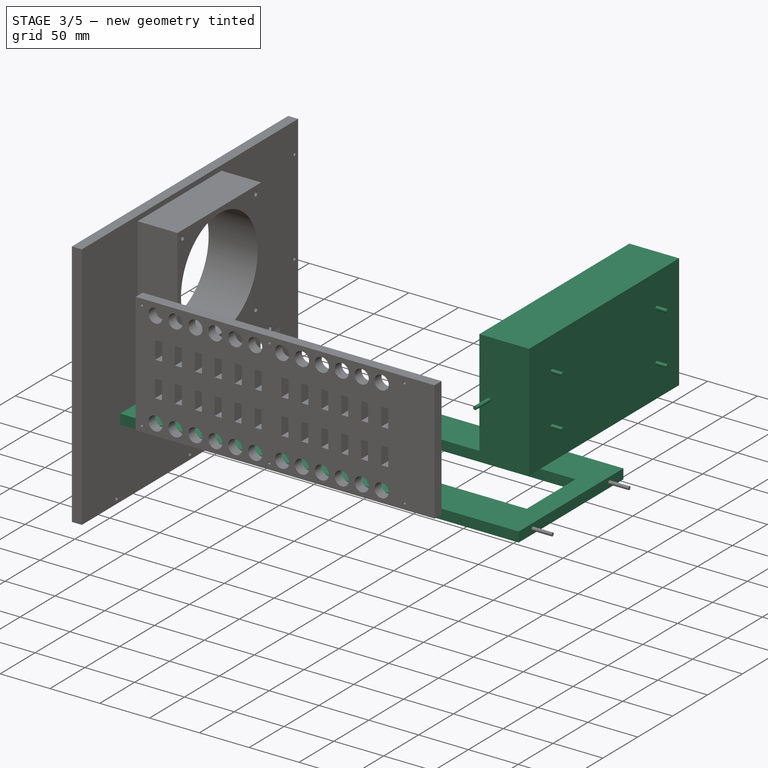
[diagram: stage 3 of 5 — iso view after this stage's code; geometry added in this stage tinted green]
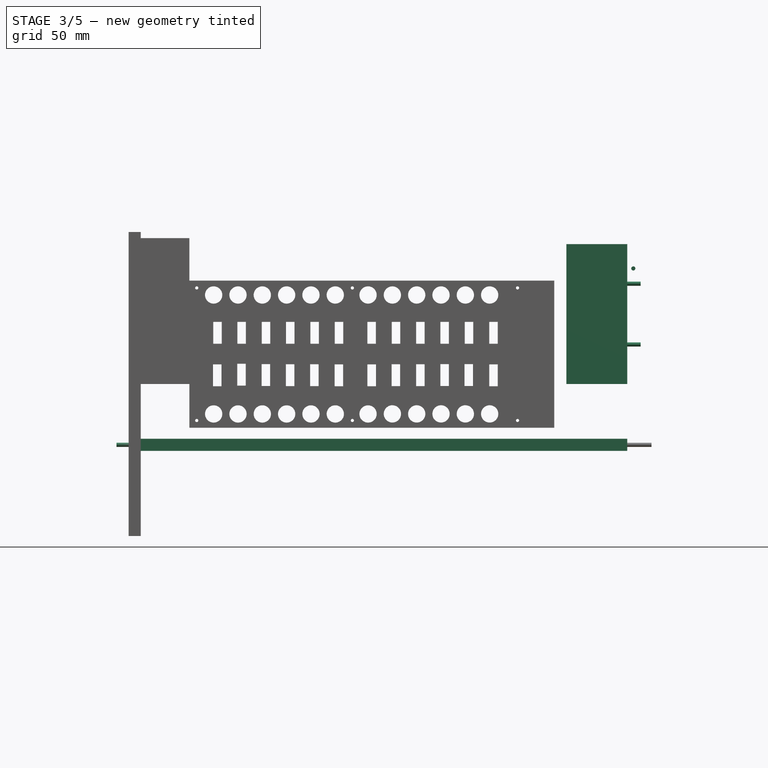
[diagram: stage 3 of 5 — front view after this stage's code; geometry added in this stage tinted green]
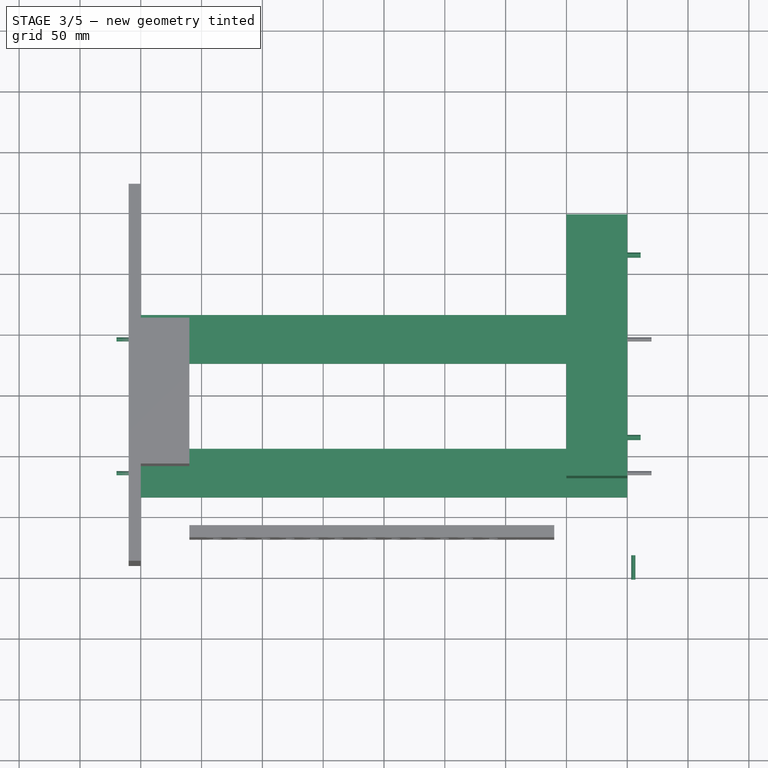
[diagram: stage 3 of 5 — top view after this stage's code; geometry added in this stage tinted green]
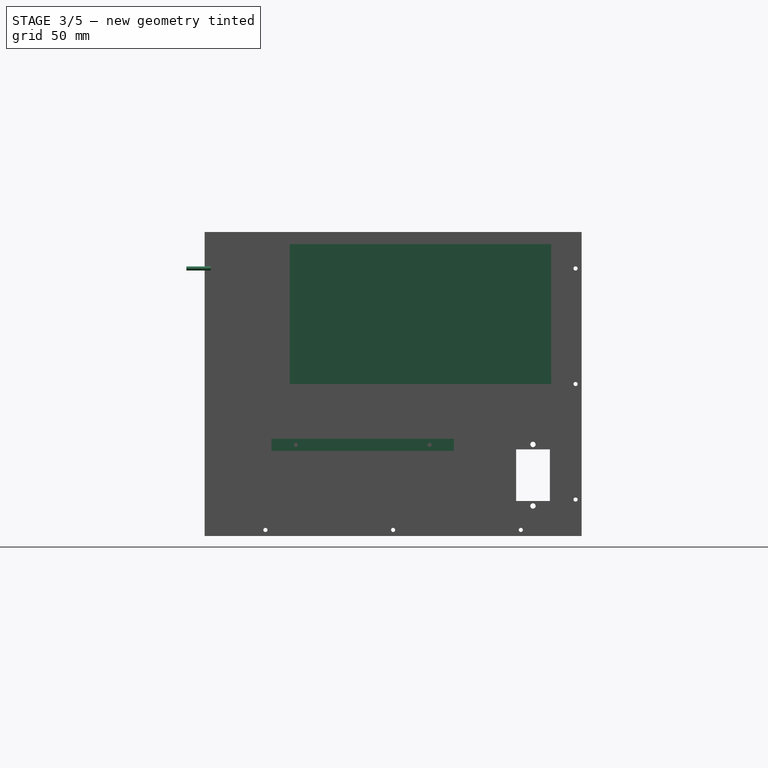
[diagram: stage 3 of 5 — right view after this stage's code; geometry added in this stage tinted green]
FEATURE [Part::Box] Box  label="5V电源"
  Height = 115
  Length = 50
  Placement = pos=(150,-70,115) rot=(0,0,1;0rad)
  Width = 215
FEATURE [Sketcher::SketchObject] Sketch013
  Placement = pos=(0,-10,60) rot=(0,0,1;0rad)
  sketch-geometry (8):
    g0: LineSegment StartX=-200 StartY=75 StartZ=0 EndX=200 EndY=75 EndZ=0
    g1: LineSegment StartX=200 StartY=75 StartZ=0 EndX=200 EndY=-75 EndZ=0
    g2: LineSegment StartX=200 StartY=-75 StartZ=0 EndX=-200 EndY=-75 EndZ=0
    g3: LineSegment StartX=-200 StartY=-75 StartZ=0 EndX=-200 EndY=75 EndZ=0
    g4: LineSegment StartX=-180 StartY=35 StartZ=0 EndX=180 EndY=35 EndZ=0
    g5: LineSegment StartX=180 StartY=35 StartZ=0 EndX=180 EndY=-35 EndZ=0
    g6: LineSegment StartX=180 StartY=-35 StartZ=0 EndX=-180 EndY=-35 EndZ=0
    g7: LineSegment StartX=-180 StartY=-35 StartZ=0 EndX=-180 EndY=35 EndZ=0
  constraints (23):
    c: Coincident(g0,g1)
    c: Coincident(g2,g3)
    c: Coincident(g3,g0)
    c: Vertical(g1)
    c: Vertical(g3)
    c: DistanceX(g0,g0) = 400
    c: Symmetric(g0,g0,g-2)
    c: DistanceY(g1,g1) = 150
    c: Coincident(g4,g5)
    c: Coincident(g5,g6)
    c: Coincident(g6,g7)
    c: Coincident(g7,g4)
    c: Horizontal(g4)
    c: Horizontal(g6)
    c: Vertical(g5)
    c: Vertical(g7)
    c: Distance(g4,g3) = 20
    c: Distance(g4,g1) = 20
    c: Distance(g4,g0) = 40
    c: Symmetric(g1,g0,g-1)
    c: DistanceY(g2,g5) = 40
    c: DistanceY(g6,g4) = 70
    c: DistanceY(g2,g0) = 150
FEATURE [PartDesign::Pad] Pad013  label="串口板支架"
  Length = 10
  Length2 = 100
  Placement = pos=(0,-10,60) rot=(0,0,1;0rad)
  Sketch = -> Sketch013
  Type = 0
FEATURE [Part::Cylinder] Cylinder002  label="5V-M4-左下"
  Angle = 360
  Height = 61
  Placement = pos=(150,-37.5,147.5) rot=(0,1,0;1.5708rad)
  Radius = 1.7
FEATURE [Part::Cylinder] Cylinder004  label="5V-M4-左上"
  Angle = 360
  Height = 61
  Placement = pos=(150,-37.5,197.5) rot=(0,1,0;1.5708rad)
  Radius = 1.7
FEATURE [Part::Cylinder] Cylinder005  label="5V-M4-右下"
  Angle = 360
  Height = 61
  Placement = pos=(150,112.5,147.5) rot=(0,1,0;1.5708rad)
  Radius = 1.7
FEATURE [Part::Cylinder] Cylinder006  label="5V-M4-右上"
  Angle = 360
  Height = 61
  Placement = pos=(150,112.5,197.5) rot=(0,1,0;1.5708rad)
  Radius = 1.7
FEATURE [Part::MultiFuse] Fusion002  label="5V电源加螺丝"
  Shapes = -> [Cylinder006,Cylinder005,Cylinder004,Cylinder002,Box]
FEATURE [Part::Cylinder] Cylinder012  label="右侧前003"
  Angle = 360
  Height = 20
  Placement = pos=(205,-135,210) rot=(1,0,0;1.5708rad)
  Radius = 1.7
FEATURE [Part::Cylinder] Cylinder013  label="串口板右前"
  Angle = 360
  Height = 20
  Placement = pos=(200,-65,65) rot=(0,1,0;1.5708rad)
  Radius = 1.7
FEATURE [Part::Cylinder] Cylinder015  label="串口板左前"
  Angle = 360
  Height = 20
  Placement = pos=(-220,-65,65) rot=(0,1,0;1.5708rad)
  Radius = 1.7
FEATURE [Part::Cylinder] Cylinder016  label="串口板左后"
  Angle = 360
  Height = 20
  Placement = pos=(-220,45,65) rot=(0,1,0;1.5708rad)
  Radius = 1.7
FEATURE [Part::Cylinder] Cylinder017  label="串口板右后"
  Angle = 360
  Height = 20
  Placement = pos=(200,45,65) rot=(0,1,0;1.5708rad)
  Radius = 1.7
FEATURE [Part::MultiFuse] Fusion004  label="支架四个螺丝钉"
  Shapes = -> [Cylinder017,Cylinder013,Cylinder015,Cylinder016]
FEATURE [Part::MultiFuse] Fusion005  label="串口板支架加螺丝"
  Shapes = -> [Fusion004,Pad013]
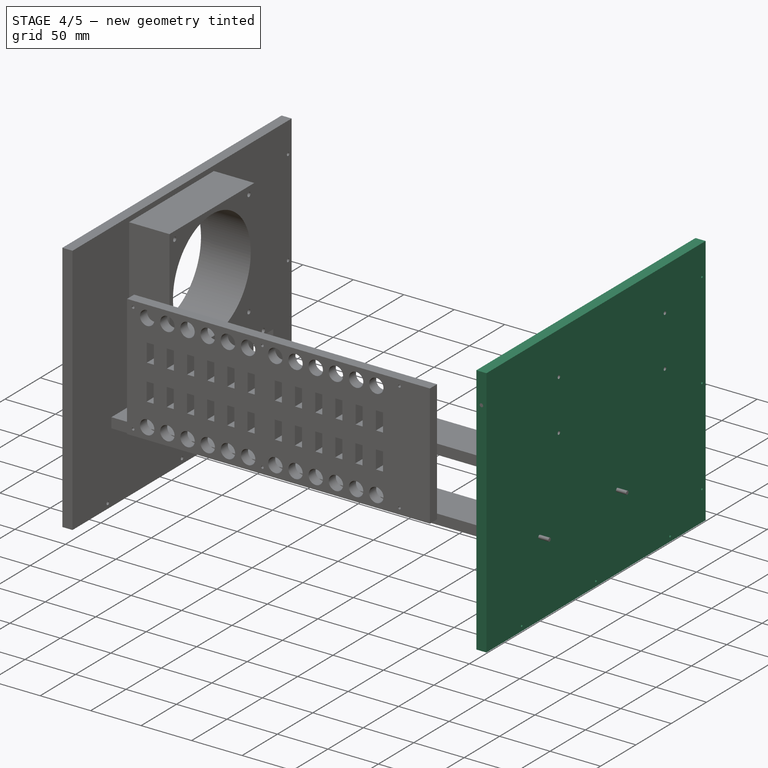
[diagram: stage 4 of 5 — iso view after this stage's code; geometry added in this stage tinted green]
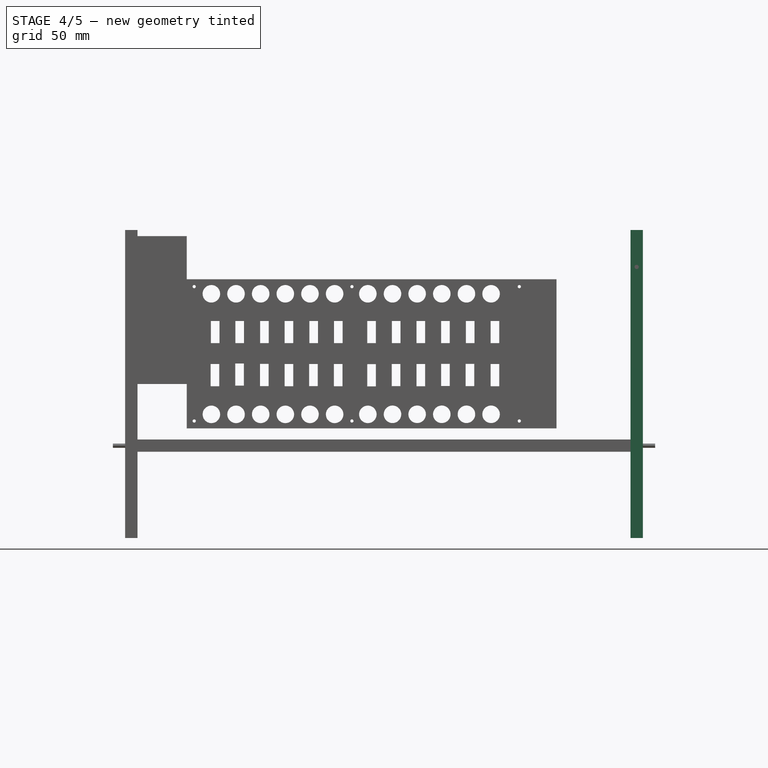
[diagram: stage 4 of 5 — front view after this stage's code; geometry added in this stage tinted green]
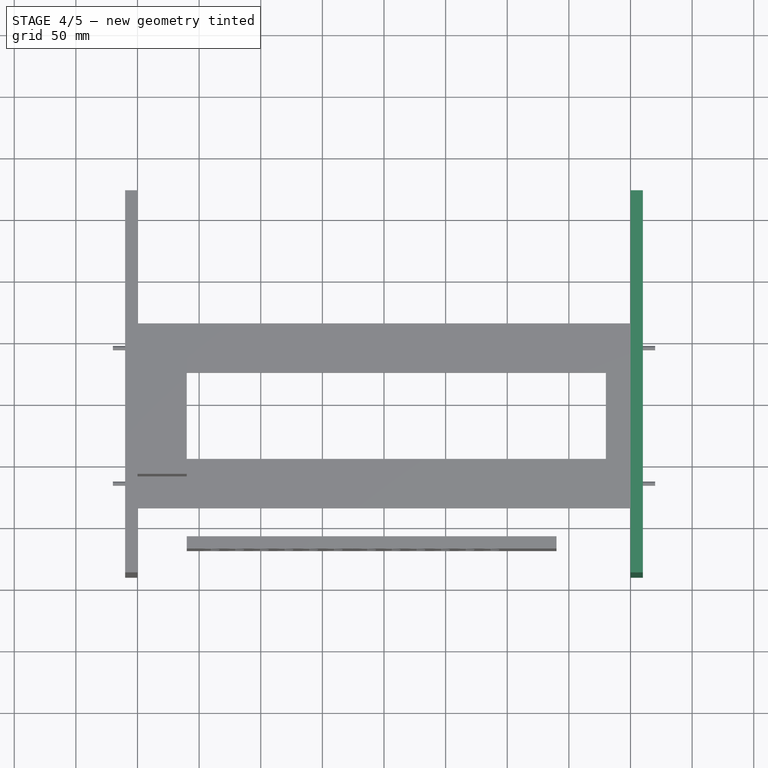
[diagram: stage 4 of 5 — top view after this stage's code; geometry added in this stage tinted green]
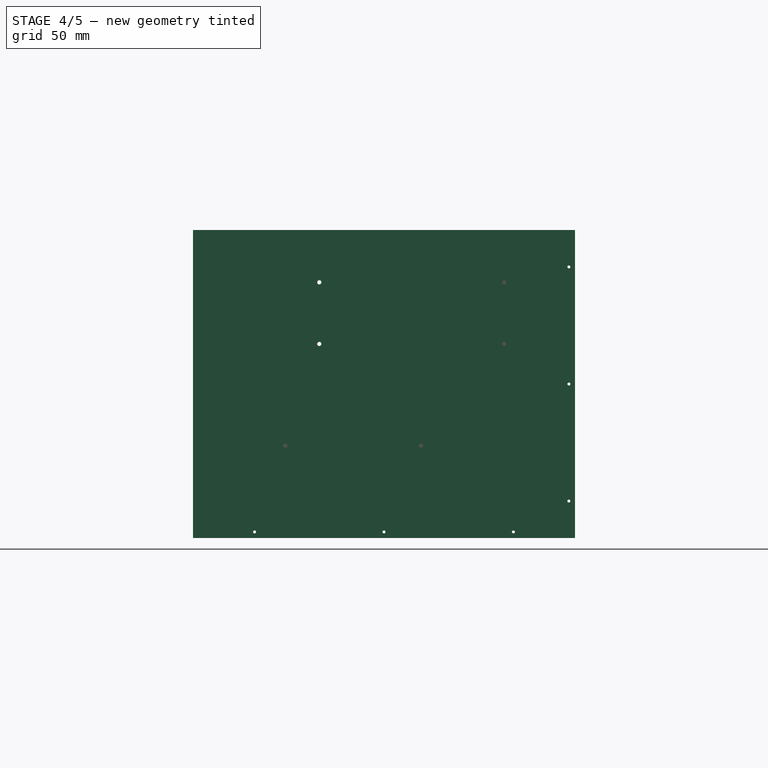
[diagram: stage 4 of 5 — right view after this stage's code; geometry added in this stage tinted green]
FEATURE [Sketcher::SketchObject] Sketch005  label="右侧板图"
  Placement = pos=(200,0,0) rot=(0.57735,0.57735,0.57735;2.0944rad)
  sketch-geometry (14):
    g0: LineSegment StartX=-140 StartY=240 StartZ=0 EndX=170 EndY=240 EndZ=0
    g1: LineSegment StartX=170 StartY=-10 StartZ=0 EndX=-140 EndY=-10 EndZ=0
    g2: LineSegment StartX=-140 StartY=-10 StartZ=0 EndX=-140 EndY=240 EndZ=0
    g3: LineSegment StartX=170 StartY=240 StartZ=0 EndX=170 EndY=-10 EndZ=0
    g4: Circle CenterX=165 CenterY=210 CenterZ=0 NormalX=0 NormalY=0 NormalZ=1 Radius=1.2
    g5: Circle CenterX=165 CenterY=115 CenterZ=0 NormalX=0 NormalY=0 NormalZ=1 Radius=1.2
    g6: Circle CenterX=165 CenterY=20 CenterZ=0 NormalX=0 NormalY=0 NormalZ=1 Radius=1.2
    g7: Circle CenterX=120 CenterY=-5 CenterZ=0 NormalX=0 NormalY=0 NormalZ=1 Radius=1.2
    g8: Circle CenterX=15 CenterY=-5 CenterZ=0 NormalX=0 NormalY=0 NormalZ=1 Radius=1.2
    g9: Circle CenterX=-90 CenterY=-5 CenterZ=0 NormalX=0 NormalY=0 NormalZ=1 Radius=1.2
    g10: Circle CenterX=-37.5 CenterY=197.5 CenterZ=0 NormalX=0 NormalY=0 NormalZ=1 Radius=1.7
    g11: Circle CenterX=-37.5 CenterY=147.5 CenterZ=0 NormalX=0 NormalY=0 NormalZ=1 Radius=1.7
    g12: Circle CenterX=112.5 CenterY=147.5 CenterZ=0 NormalX=0 NormalY=0 NormalZ=1 Radius=1.7
    g13: Circle CenterX=112.5 CenterY=197.5 CenterZ=0 NormalX=0 NormalY=0 NormalZ=1 Radius=1.7
  constraints (41):
    c: Coincident(g1,g2)
    c: Coincident(g2,g0)
    c: Horizontal(g0)
    c: Horizontal(g1)
    c: DistanceX(g0,g0) = 310
    c: Perpendicular(g2,g1)
    c: DistanceX(g0) = 170
    c: Coincident(g3,g0)
    c: Coincident(g3,g1)
    c: Perpendicular(g3,g1,g1) = 4.71239
    c: Radius(g4) = 1.2
    c: Radius(g9) = 1.2
    c: DistanceY(g-1,g9) = -5
    c: Radius(g8) = 1.2
    c: Radius(g5) = 1.2
    c: Radius(g6) = 1.2
    c: Radius(g7) = 1.2
    c: DistanceY(g-1,g8) = -5
    c: DistanceY(g-1,g7) = -5
    c: Distance(g6,g3) = 5
    c: Distance(g5,g3) = 5
    c: Distance(g4,g3) = 5
    c: Radius(g10) = 1.7
    c: Distance(g10,g0) = 42.5
    c: Equal(g10,g11)
    c: Equal(g11,g12)
    c: Equal(g12,g13)
    c: Distance(g11,g0) = 92.5
    c: Distance(g11,g2) = 102.5
    c: Distance(g13,g3) = 57.5
    c: Distance(g13,g0) = 42.5
    c: Distance(g12,g3) = 57.5
    c: Distance(g12,g0) = 92.5
    c: Distance(g4,g0) = 30
    c: Distance(g6,g1) = 30
    c: Distance(g0,g1) = 250
    c: DistanceY(g1,g-1) = 10
    c: Distance(g5,g1) = 125
    c: Distance(g7,g3) = 50
    c: Distance(g9,g2) = 50
    c: Distance(g8,g2) = 155
FEATURE [PartDesign::Pad] Pad005  label="右面板"
  Length = 10
  Length2 = 100
  Placement = pos=(200,0,0) rot=(0.57735,0.57735,0.57735;2.0944rad)
  Sketch = -> Sketch005
  Type = 0
FEATURE [Part::Cut] Cut002  label="右侧开孔"
  Base = -> Pad005
  Tool = -> Fusion002
FEATURE [Part::Cylinder] Cylinder007  label="右侧-上001"
  Angle = 360
  Height = 20
  Placement = pos=(205,-90,235) rot=(0,0,1;0rad)
  Radius = 1.7
FEATURE [Part::Cylinder] Cylinder008  label="右侧-上002"
  Angle = 360
  Height = 20
  Placement = pos=(205,15,235) rot=(0,0,1;0rad)
  Radius = 1.7
FEATURE [Part::Cylinder] Cylinder009  label="右侧-上003"
  Angle = 360
  Height = 20
  Placement = pos=(205,120,235) rot=(0,0,1;0rad)
  Radius = 1.7
FEATURE [Part::Cylinder] Cylinder010  label="右侧前001"
  Angle = 360
  Height = 20
  Placement = pos=(205,-135,20) rot=(1,0,0;1.5708rad)
  Radius = 1.7
FEATURE [Part::Cylinder] Cylinder011  label="右侧前002"
  Angle = 360
  Height = 20
  Placement = pos=(205,-135,115) rot=(1,0,0;1.5708rad)
  Radius = 1.7
FEATURE [Part::Cut] Cut005
  Base = -> Cut002
  Tool = -> Cylinder007
FEATURE [Part::Cut] Cut006
  Base = -> Cut002
  Tool = -> Cylinder008
FEATURE [Part::Cut] Cut007
  Base = -> Cut002
  Tool = -> Cylinder009
FEATURE [Part::Cut] Cut008
  Base = -> Cut002
  Tool = -> Cylinder010
FEATURE [Part::Cut] Cut009
  Base = -> Cut002
  Tool = -> Cylinder011
FEATURE [Part::Cut] Cut010  label="ok"
  Base = -> Cut002
  Tool = -> Cylinder012
FEATURE [Part::MultiFuse] Fusion003  label="右侧开孔001"
  Shapes = -> [Cut005,Cut007,Cut006,Cut008,Cut009,Cut010]
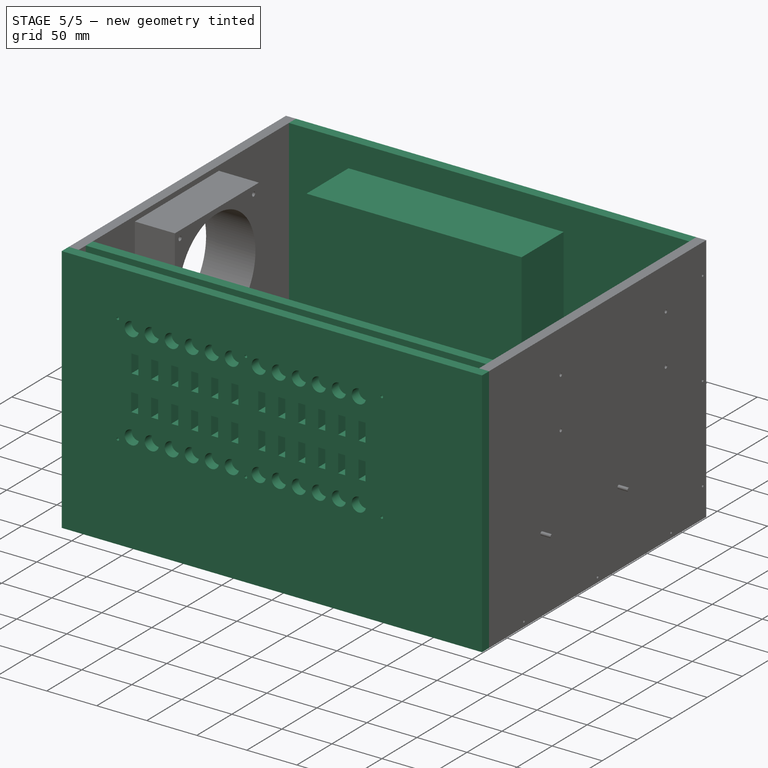
[diagram: stage 5 of 5 — iso view after this stage's code; geometry added in this stage tinted green]
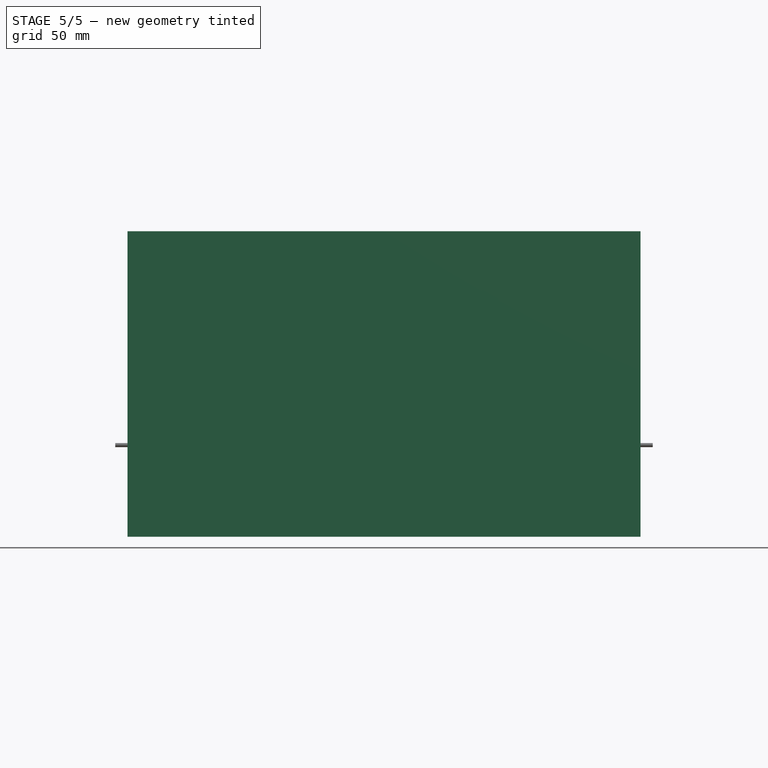
[diagram: stage 5 of 5 — front view after this stage's code; geometry added in this stage tinted green]
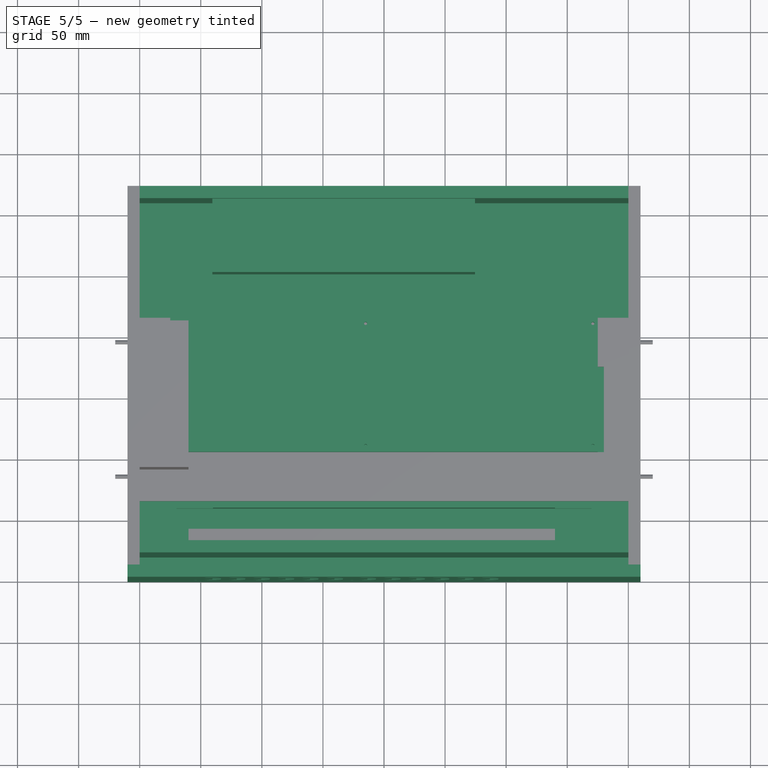
[diagram: stage 5 of 5 — top view after this stage's code; geometry added in this stage tinted green]
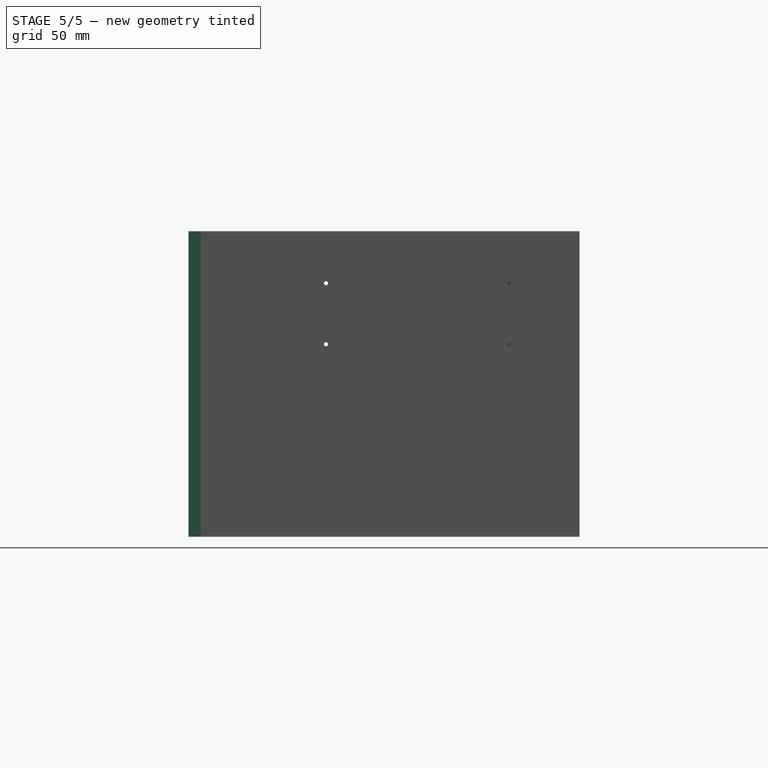
[diagram: stage 5 of 5 — right view after this stage's code; geometry added in this stage tinted green]
FEATURE [Sketcher::SketchObject] Sketch
  sketch-geometry (4):
    g0: LineSegment StartX=-140 StartY=90 StartZ=0 EndX=140 EndY=90 EndZ=0
    g1: LineSegment StartX=140 StartY=90 StartZ=0 EndX=140 EndY=-90 EndZ=0
    g2: LineSegment StartX=140 StartY=-90 StartZ=0 EndX=-140 EndY=-90 EndZ=0
    g3: LineSegment StartX=-140 StartY=-90 StartZ=0 EndX=-140 EndY=90 EndZ=0
  constraints (12):
    c: Coincident(g0,g1)
    c: Coincident(g1,g2)
    c: Coincident(g2,g3)
    c: Coincident(g3,g0)
    c: Horizontal(g0)
    c: Horizontal(g2)
    c: Vertical(g1)
    c: Vertical(g3)
    c: Distance(g1) = 180
    c: Distance(g0) = 280
    c: DistanceX(g0) = 140
    c: DistanceY(g0) = 90
FEATURE [PartDesign::Pad] Pad
  Length = 44
  Length2 = 100
  Sketch = -> Sketch
  Type = 0
FEATURE [Sketcher::SketchObject] Sketch001
  sketch-geometry (8):
    g0: LineSegment StartX=140 StartY=-36 StartZ=0 EndX=170 EndY=-36 EndZ=0
    g1: LineSegment StartX=170 StartY=-36 StartZ=0 EndX=170 EndY=-90 EndZ=0
    g2: LineSegment StartX=170 StartY=-90 StartZ=0 EndX=140 EndY=-90 EndZ=0
    g3: LineSegment StartX=140 StartY=-90 StartZ=0 EndX=140 EndY=-36 EndZ=0
    g4: LineSegment StartX=-170 StartY=-36 StartZ=0 EndX=-140 EndY=-36 EndZ=0
    g5: LineSegment StartX=-140 StartY=-36 StartZ=0 EndX=-140 EndY=-90 EndZ=0
    g6: LineSegment StartX=-140 StartY=-90 StartZ=0 EndX=-170 EndY=-90 EndZ=0
    g7: LineSegment StartX=-170 StartY=-90 StartZ=0 EndX=-170 EndY=-36 EndZ=0
  constraints (21):
    c: Coincident(g0,g1)
    c: Coincident(g1,g2)
    c: Coincident(g3,g0)
    c: Horizontal(g0)
    c: Horizontal(g2)
    c: Vertical(g1)
    c: Vertical(g3)
    c: DistanceY(g1,g1) = 54
    c: DistanceX(g0,g0) = 30
    c: Coincident(g4,g5)
    c: Coincident(g5,g6)
    c: Coincident(g6,g7)
    c: Coincident(g7,g4)
    c: Horizontal(g4)
    c: Horizontal(g6)
    c: Vertical(g5)
    c: Vertical(g7)
    c: DistanceX(g5) = -140
    c: DistanceY(g5) = -90
    c: DistanceX(g6,g6) = 30
    c: DistanceY(g7,g7) = 54
FEATURE [PartDesign::Pad] Pad001
  Length = 10
  Length2 = 100
  Sketch = -> Sketch001
  Type = 0
FEATURE [Sketcher::SketchObject] Sketch002
  Placement = pos=(0,0,-10) rot=(1,0,0;3.14159rad)
  sketch-geometry (4):
    g0: LineSegment StartX=-200 StartY=140 StartZ=0 EndX=200 EndY=140 EndZ=0
    g1: LineSegment StartX=200 StartY=140 StartZ=0 EndX=200 EndY=-160 EndZ=0
    g2: LineSegment StartX=200 StartY=-160 StartZ=0 EndX=-200 EndY=-160 EndZ=0
    g3: LineSegment StartX=-200 StartY=-160 StartZ=0 EndX=-200 EndY=140 EndZ=0
  constraints (13):
    c: Coincident(g1,g2)
    c: Coincident(g2,g3)
    c: Coincident(g3,g0)
    c: Horizontal(g0)
    c: Horizontal(g2)
    c: Vertical(g1)
    c: Vertical(g3)
    c: DistanceX(g0) = 200
    c: DistanceX(g0,g0) = 400
    c: DistanceX(g1) = 200
    c: DistanceY(g1,g1) = 300
    c: DistanceY(g-1,g0) = 140
    c: DistanceY(g1,g-1) = 160
FEATURE [PartDesign::Pad] Pad002  label="底面板"
  Length = 10
  Length2 = 100
  Placement = pos=(0,0,-10) rot=(1,0,0;3.14159rad)
  Reversed = true
  Sketch = -> Sketch002
  Type = 0
FEATURE [Part::Cylinder] Cylinder
  Angle = 360
  Height = 50
  Placement = pos=(155,-66,-25) rot=(0,0,1;0rad)
  Radius = 5
FEATURE [Part::Cylinder] Cylinder001
  Angle = 360
  Height = 50
  Placement = pos=(-155,-66,-30) rot=(0,0,1;0rad)
  Radius = 5
FEATURE [Part::MultiFuse] Fusion  label="交换机"
  Shapes = -> [Pad001,Pad]
FEATURE [Part::MultiFuse] Fusion001  label="交换机加底面板"
  Shapes = -> [Pad002,Fusion]
FEATURE [Part::Cut] Cut
  Base = -> Fusion001
  Tool = -> Cylinder
FEATURE [Part::Cut] Cut001  label="底面"
  Base = -> Cut
  Tool = -> Cylinder001
FEATURE [Sketcher::SketchObject] Sketch003  label="后面板1"
  Placement = pos=(0,170,0) rot=(1,0,0;1.5708rad)
  sketch-geometry (4):
    g0: LineSegment StartX=-200 StartY=240 StartZ=0 EndX=200 EndY=240 EndZ=0
    g1: LineSegment StartX=200 StartY=240 StartZ=0 EndX=200 EndY=-10 EndZ=0
    g2: LineSegment StartX=200 StartY=-10 StartZ=0 EndX=-200 EndY=-10 EndZ=0
    g3: LineSegment StartX=-200 StartY=-10 StartZ=0 EndX=-200 EndY=240 EndZ=0
  constraints (12):
    c: Coincident(g0,g1)
    c: Coincident(g1,g2)
    c: Coincident(g2,g3)
    c: Coincident(g3,g0)
    c: Horizontal(g0)
    c: Horizontal(g2)
    c: Vertical(g1)
    c: Vertical(g3)
    c: DistanceX(g0,g0) = 400
    c: Symmetric(g0,g0,g-2)
    c: DistanceY(g1,g1) = 250
    c: DistanceY(g1,g-1) = 10
FEATURE [PartDesign::Pad] Pad003  label="后面板"
  Length = 10
  Length2 = 100
  Placement = pos=(0,170,0) rot=(1,0,0;1.5708rad)
  Sketch = -> Sketch003
  Type = 0
FEATURE [Sketcher::SketchObject] Sketch004  label="12V电源001"
  Placement = pos=(-33,160,50) rot=(1,0,0;1.5708rad)
  sketch-geometry (4):
    g0: LineSegment StartX=-107.5 StartY=165 StartZ=0 EndX=107.5 EndY=165 EndZ=0
    g1: LineSegment StartX=107.5 StartY=165 StartZ=0 EndX=107.5 EndY=50 EndZ=0
    g2: LineSegment StartX=107.5 StartY=50 StartZ=0 EndX=-107.5 EndY=50 EndZ=0
    g3: LineSegment StartX=-107.5 StartY=50 StartZ=0 EndX=-107.5 EndY=165 EndZ=0
  constraints (12):
    c: Coincident(g0,g1)
    c: Coincident(g1,g2)
    c: Coincident(g2,g3)
    c: Coincident(g3,g0)
    c: Horizontal(g0)
    c: Horizontal(g2)
    c: Vertical(g1)
    c: Vertical(g3)
    c: DistanceX(g0,g0) = 215
    c: DistanceY(g1,g1) = 115
    c: Symmetric(g0,g0,g-2)
    c: DistanceY(g1) = 50
FEATURE [PartDesign::Pad] Pad004  label="12V电源"
  Length = 60
  Length2 = 100
  Placement = pos=(-33,160,50) rot=(1,0,0;1.5708rad)
  Sketch = -> Sketch004
  Type = 0
FEATURE [Sketcher::SketchObject] Sketch007
  Placement = pos=(0,-120,0) rot=(1,0,0;1.5708rad)
  sketch-geometry (4):
    g0: LineSegment StartX=-200 StartY=240 StartZ=0 EndX=200 EndY=240 EndZ=0
    g1: LineSegment StartX=200 StartY=240 StartZ=0 EndX=200 EndY=-10 EndZ=0
    g2: LineSegment StartX=200 StartY=-10 StartZ=0 EndX=-200 EndY=-10 EndZ=0
    g3: LineSegment StartX=-200 StartY=-10 StartZ=0 EndX=-200 EndY=240 EndZ=0
  constraints (12):
    c: Coincident(g0,g1)
    c: Coincident(g1,g2)
    c: Coincident(g2,g3)
    c: Coincident(g3,g0)
    c: Horizontal(g0)
    c: Horizontal(g2)
    c: Vertical(g1)
    c: Vertical(g3)
    c: DistanceX(g0,g0) = 400
    c: Symmetric(g0,g0,g-2)
    c: DistanceY(g1,g1) = 250
    c: DistanceY(g-1,g1) = -10
FEATURE [PartDesign::Pad] Pad007  label="纯前面板"
  Length = 10
  Length2 = 100
  Placement = pos=(0,-120,0) rot=(1,0,0;1.5708rad)
  Sketch = -> Sketch007
  Type = 0
FEATURE [Sketcher::SketchObject] Sketch009
  Placement = pos=(-160,-140,200) rot=(0.57735,0.57735,-0.57735;2.0944rad)
  sketch-geometry (130):
    g0: Circle CenterX=11.81 CenterY=19.93 CenterZ=0 NormalX=0 NormalY=0 NormalZ=1 Radius=7.1
    g1: Circle CenterX=11.81 CenterY=39.93 CenterZ=0 NormalX=0 NormalY=0 NormalZ=1 Radius=7.1
    g2: Circle CenterX=11.81 CenterY=59.93 CenterZ=0 NormalX=0 NormalY=0 NormalZ=1 Radius=7.1
    g3: Circle CenterX=11.81 CenterY=79.93 CenterZ=0 NormalX=0 NormalY=0 NormalZ=1 Radius=7.1
    g4: Circle CenterX=11.81 CenterY=99.93 CenterZ=0 NormalX=0 NormalY=0 NormalZ=1 Radius=7.1
    g5: Circle CenterX=11.81 CenterY=119.93 CenterZ=0 NormalX=0 NormalY=0 NormalZ=1 Radius=7.1
    g6: Circle CenterX=11.81 CenterY=146.89 CenterZ=0 NormalX=0 NormalY=0 NormalZ=1 Radius=7.1
    g7: Circle CenterX=11.81 CenterY=166.89 CenterZ=0 NormalX=0 NormalY=0 NormalZ=1 Radius=7.1
    g8: Circle CenterX=11.81 CenterY=186.89 CenterZ=0 NormalX=0 NormalY=0 NormalZ=1 Radius=7.1
    g9: Circle CenterX=11.81 CenterY=246.89 CenterZ=0 NormalX=0 NormalY=0 NormalZ=1 Radius=7.1
    g10: Circle CenterX=109.58 CenterY=246.89 CenterZ=0 NormalX=0 NormalY=0 NormalZ=1 Radius=7.1
    g11: Circle CenterX=11.81 CenterY=226.89 CenterZ=0 NormalX=0 NormalY=0 NormalZ=1 Radius=7.1
    g12: Circle CenterX=11.81 CenterY=206.89 CenterZ=0 NormalX=0 NormalY=0 NormalZ=1 Radius=7.1
    g13: Circle CenterX=109.58 CenterY=186.89 CenterZ=0 NormalX=0 NormalY=0 NormalZ=1 Radius=7.1
    g14: Circle CenterX=109.58 CenterY=226.89 CenterZ=0 NormalX=0 NormalY=0 NormalZ=1 Radius=7.1
    g15: Circle CenterX=109.58 CenterY=206.89 CenterZ=0 NormalX=0 NormalY=0 NormalZ=1 Radius=7.1
    g16: Circle CenterX=109.58 CenterY=166.89 CenterZ=0 NormalX=0 NormalY=0 NormalZ=1 Radius=7.1
    g17: Circle CenterX=109.63 CenterY=146.89 CenterZ=0 NormalX=0 NormalY=0 NormalZ=1 Radius=7.1
    g18: Circle CenterX=109.63 CenterY=119.95 CenterZ=0 NormalX=0 NormalY=0 NormalZ=1 Radius=7.1
    g19: Circle CenterX=109.63 CenterY=99.95 CenterZ=0 NormalX=0 NormalY=0 NormalZ=1 Radius=7.1
    g20: Circle CenterX=109.63 CenterY=79.95 CenterZ=0 NormalX=0 NormalY=0 NormalZ=1 Radius=7.1
    g21: Circle CenterX=109.63 CenterY=59.95 CenterZ=0 NormalX=0 NormalY=0 NormalZ=1 Radius=7.1
    g22: Circle CenterX=109.63 CenterY=39.95 CenterZ=0 NormalX=0 NormalY=0 NormalZ=1 Radius=7.1
    g23: Circle CenterX=109.63 CenterY=19.95 CenterZ=0 NormalX=0 NormalY=0 NormalZ=1 Radius=7.1
    g24: Circle CenterX=5.9944 CenterY=5.9944 CenterZ=0 NormalX=0 NormalY=0 NormalZ=1 Radius=1.3
    g25: Circle CenterX=5.9944 CenterY=134 CenterZ=0 NormalX=0 NormalY=0 NormalZ=1 Radius=1.3
    g26: Circle CenterX=5.9944 CenterY=269.79 CenterZ=0 NormalX=0 NormalY=0 NormalZ=1 Radius=1.3
    g27: Circle CenterX=115 CenterY=269.79 CenterZ=0 NormalX=0 NormalY=0 NormalZ=1 Radius=1.3
    g28: Circle CenterX=115 CenterY=5.9944 CenterZ=0 NormalX=0 NormalY=0 NormalZ=1 Radius=1.3
    g29: Circle CenterX=115 CenterY=134 CenterZ=0 NormalX=0 NormalY=0 NormalZ=1 Radius=1.3
    g30: LineSegment StartX=33.87 StartY=26.57 StartZ=0 EndX=51.87 EndY=26.57 EndZ=0
    g31: LineSegment StartX=51.87 StartY=26.57 StartZ=0 EndX=51.87 EndY=19.57 EndZ=0
    g32: LineSegment StartX=51.87 StartY=19.57 StartZ=0 EndX=33.87 EndY=19.57 EndZ=0
    g33: LineSegment StartX=33.87 StartY=19.57 StartZ=0 EndX=33.87 EndY=26.57 EndZ=0
    g34: LineSegment StartX=33.87 StartY=66.47 StartZ=0 EndX=51.87 EndY=66.47 EndZ=0
    g35: LineSegment StartX=51.87 StartY=66.47 StartZ=0 EndX=51.87 EndY=59.47 EndZ=0
    g36: LineSegment StartX=51.87 StartY=59.47 StartZ=0 EndX=33.87 EndY=59.47 EndZ=0
    g37: LineSegment StartX=33.87 StartY=59.47 StartZ=0 EndX=33.87 EndY=66.47 EndZ=0
    g38: LineSegment StartX=33.87 StartY=86.38 StartZ=0 EndX=51.87 EndY=86.38 EndZ=0
    g39: LineSegment StartX=51.87 StartY=86.38 StartZ=0 EndX=51.87 EndY=79.38 EndZ=0
    g40: LineSegment StartX=51.87 StartY=79.38 StartZ=0 EndX=33.87 EndY=79.38 EndZ=0
    g41: LineSegment StartX=33.87 StartY=79.38 StartZ=0 EndX=33.87 EndY=86.38 EndZ=0
    g42: LineSegment StartX=33.87 StartY=46.4 StartZ=0 EndX=51.87 EndY=46.4 EndZ=0
    g43: LineSegment StartX=51.87 StartY=46.4 StartZ=0 EndX=51.87 EndY=39.4 EndZ=0
    g44: LineSegment StartX=51.87 StartY=39.4 StartZ=0 EndX=33.87 EndY=39.4 EndZ=0
    g45: LineSegment StartX=33.87 StartY=39.4 StartZ=0 EndX=33.87 EndY=46.4 EndZ=0
    g46: LineSegment StartX=33.87 StartY=153.36 StartZ=0 EndX=51.87 EndY=153.36 EndZ=0
    g47: LineSegment StartX=51.87 StartY=153.36 StartZ=0 EndX=51.87 EndY=146.36 EndZ=0
    g48: LineSegment StartX=51.87 StartY=146.36 StartZ=0 EndX=33.87 EndY=146.36 EndZ=0
    g49: LineSegment StartX=33.87 StartY=146.36 StartZ=0 EndX=33.87 EndY=153.36 EndZ=0
    g50: LineSegment StartX=33.87 StartY=126.46 StartZ=0 EndX=51.87 EndY=126.46 EndZ=0
    g51: LineSegment StartX=51.87 StartY=126.46 StartZ=0 EndX=51.87 EndY=119.46 EndZ=0
    g52: LineSegment StartX=51.87 StartY=119.46 StartZ=0 EndX=33.87 EndY=119.46 EndZ=0
    g53: LineSegment StartX=33.87 StartY=119.46 StartZ=0 EndX=33.87 EndY=126.46 EndZ=0
    g54: LineSegment StartX=33.87 StartY=106.43 StartZ=0 EndX=51.87 EndY=106.43 EndZ=0
    g55: LineSegment StartX=51.87 StartY=106.43 StartZ=0 EndX=51.87 EndY=99.43 EndZ=0
    g56: LineSegment StartX=51.87 StartY=99.43 StartZ=0 EndX=33.87 EndY=99.43 EndZ=0
    g57: LineSegment StartX=33.87 StartY=99.43 StartZ=0 EndX=33.87 EndY=106.43 EndZ=0
    g58: LineSegment StartX=33.87 StartY=173.36 StartZ=0 EndX=51.87 EndY=173.36 EndZ=0
    g59: LineSegment StartX=51.87 StartY=173.36 StartZ=0 EndX=51.87 EndY=166.36 EndZ=0
    g60: LineSegment StartX=51.87 StartY=166.36 StartZ=0 EndX=33.87 EndY=166.36 EndZ=0
    g61: LineSegment StartX=33.87 StartY=166.36 StartZ=0 EndX=33.87 EndY=173.36 EndZ=0
    g62: LineSegment StartX=51.87 StartY=213.34 StartZ=0 EndX=33.87 EndY=213.34 EndZ=0
    g63: LineSegment StartX=33.87 StartY=213.34 StartZ=0 EndX=33.87 EndY=206.34 EndZ=0
    g64: LineSegment StartX=33.87 StartY=206.34 StartZ=0 EndX=51.87 EndY=206.34 EndZ=0
    g65: LineSegment StartX=51.87 StartY=206.34 StartZ=0 EndX=51.87 EndY=213.34 EndZ=0
    g66: LineSegment StartX=33.87 StartY=193.39 StartZ=0 EndX=51.87 EndY=193.39 EndZ=0
    g67: LineSegment StartX=51.87 StartY=193.39 StartZ=0 EndX=51.87 EndY=186.39 EndZ=0
    g68: LineSegment StartX=51.87 StartY=186.39 StartZ=0 EndX=33.87 EndY=186.39 EndZ=0
    g69: LineSegment StartX=33.87 StartY=186.39 StartZ=0 EndX=33.87 EndY=193.39 EndZ=0
    g70: LineSegment StartX=33.87 StartY=253.52 StartZ=0 EndX=51.87 EndY=253.52 EndZ=0
    g71: LineSegment StartX=51.87 StartY=253.52 StartZ=0 EndX=51.87 EndY=246.52 EndZ=0
    g72: LineSegment StartX=51.87 StartY=246.52 StartZ=0 EndX=33.87 EndY=246.52 EndZ=0
    g73: LineSegment StartX=33.87 StartY=246.52 StartZ=0 EndX=33.87 EndY=253.52 EndZ=0
    g74: LineSegment StartX=33.8701 StartY=233.4 StartZ=0 EndX=51.8701 EndY=233.4 EndZ=0
    g75: LineSegment StartX=51.8701 StartY=233.4 StartZ=0 EndX=51.8701 EndY=226.4 EndZ=0
    g76: LineSegment StartX=51.8701 StartY=226.4 StartZ=0 EndX=33.8701 EndY=226.4 EndZ=0
    g77: LineSegment StartX=33.8701 StartY=226.4 StartZ=0 EndX=33.8701 EndY=233.4 EndZ=0
    g78: LineSegment StartX=68.82 StartY=26.37 StartZ=0 EndX=86.82 EndY=26.37 EndZ=0
    g79: LineSegment StartX=86.82 StartY=26.37 StartZ=0 EndX=86.82 EndY=19.37 EndZ=0
    g80: LineSegment StartX=86.82 StartY=19.37 StartZ=0 EndX=68.82 EndY=19.37 EndZ=0
    g81: LineSegment StartX=68.82 StartY=19.37 StartZ=0 EndX=68.82 EndY=26.37 EndZ=0
    g82: LineSegment StartX=68.3352 StartY=46.33 StartZ=0 EndX=86.3352 EndY=46.33 EndZ=0
    g83: LineSegment StartX=86.3352 StartY=46.33 StartZ=0 EndX=86.3352 EndY=39.33 EndZ=0
    g84: LineSegment StartX=86.3352 StartY=39.33 StartZ=0 EndX=68.3352 EndY=39.33 EndZ=0
    g85: LineSegment StartX=68.3352 StartY=39.33 StartZ=0 EndX=68.3352 EndY=46.33 EndZ=0
    g86: LineSegment StartX=68.6925 StartY=66.4 StartZ=0 EndX=86.6925 EndY=66.4 EndZ=0
    g87: LineSegment StartX=86.6925 StartY=66.4 StartZ=0 EndX=86.6925 EndY=59.4 EndZ=0
    g88: LineSegment StartX=86.6925 StartY=59.4 StartZ=0 EndX=68.6925 EndY=59.4 EndZ=0
    g89: LineSegment StartX=68.6925 StartY=59.4 StartZ=0 EndX=68.6925 EndY=66.4 EndZ=0
    g90: LineSegment StartX=68.7894 StartY=86.34 StartZ=0 EndX=86.7894 EndY=86.34 EndZ=0
    g91: LineSegment StartX=86.7894 StartY=86.34 StartZ=0 EndX=86.7894 EndY=79.34 EndZ=0
    g92: LineSegment StartX=86.7894 StartY=79.34 StartZ=0 EndX=68.7894 EndY=79.34 EndZ=0
    g93: LineSegment StartX=68.7894 StartY=79.34 StartZ=0 EndX=68.7894 EndY=86.34 EndZ=0
    g94: LineSegment StartX=68.733 StartY=106.27 StartZ=0 EndX=86.733 EndY=106.27 EndZ=0
    g95: LineSegment StartX=86.733 StartY=106.27 StartZ=0 EndX=86.733 EndY=99.27 EndZ=0
    g96: LineSegment StartX=86.733 StartY=99.27 StartZ=0 EndX=68.733 EndY=99.27 EndZ=0
    g97: LineSegment StartX=68.733 StartY=99.27 StartZ=0 EndX=68.733 EndY=106.27 EndZ=0
    g98: LineSegment StartX=68.82 StartY=126.36 StartZ=0 EndX=86.82 EndY=126.36 EndZ=0
    g99: LineSegment StartX=86.82 StartY=126.36 StartZ=0 EndX=86.82 EndY=119.36 EndZ=0
    g100: LineSegment StartX=86.82 StartY=119.36 StartZ=0 EndX=68.82 EndY=119.36 EndZ=0
    g101: LineSegment StartX=68.82 StartY=119.36 StartZ=0 EndX=68.82 EndY=126.36 EndZ=0
    g102: LineSegment StartX=68.8995 StartY=153.372 StartZ=0 EndX=86.8995 EndY=153.372 EndZ=0
    g103: LineSegment StartX=86.8995 StartY=153.372 StartZ=0 EndX=86.8995 EndY=146.372 EndZ=0
    g104: LineSegment StartX=86.8995 StartY=146.372 StartZ=0 EndX=68.8995 EndY=146.372 EndZ=0
    g105: LineSegment StartX=68.8995 StartY=146.372 StartZ=0 EndX=68.8995 EndY=153.372 EndZ=0
    g106: LineSegment StartX=68.7731 StartY=173.267 StartZ=0 EndX=86.7731 EndY=173.267 EndZ=0
    g107: LineSegment StartX=86.7731 StartY=173.267 StartZ=0 EndX=86.7731 EndY=166.267 EndZ=0
    g108: LineSegment StartX=86.7731 StartY=166.267 StartZ=0 EndX=68.7731 EndY=166.267 EndZ=0
    g109: LineSegment StartX=68.7731 StartY=166.267 StartZ=0 EndX=68.7731 EndY=173.267 EndZ=0
    g110: LineSegment StartX=68.781 StartY=193.39 StartZ=0 EndX=86.781 EndY=193.39 EndZ=0
    g111: LineSegment StartX=86.781 StartY=193.39 StartZ=0 EndX=86.781 EndY=186.39 EndZ=0
    g112: LineSegment StartX=86.781 StartY=186.39 StartZ=0 EndX=68.781 EndY=186.39 EndZ=0
    g113: LineSegment StartX=68.781 StartY=186.39 StartZ=0 EndX=68.781 EndY=193.39 EndZ=0
    g114: LineSegment StartX=68.6717 StartY=213.338 StartZ=0 EndX=86.6717 EndY=213.338 EndZ=0
    g115: LineSegment StartX=86.6717 StartY=213.338 StartZ=0 EndX=86.6717 EndY=206.338 EndZ=0
    g116: LineSegment StartX=86.6717 StartY=206.338 StartZ=0 EndX=68.6717 EndY=206.338 EndZ=0
    g117: LineSegment StartX=68.6717 StartY=206.338 StartZ=0 EndX=68.6717 EndY=213.338 EndZ=0
    g118: LineSegment StartX=68.6927 StartY=233.2 StartZ=0 EndX=86.6927 EndY=233.2 EndZ=0
    g119: LineSegment StartX=86.6927 StartY=233.2 StartZ=0 EndX=86.6927 EndY=226.2 EndZ=0
    g120: LineSegment StartX=86.6927 StartY=226.2 StartZ=0 EndX=68.6927 EndY=226.2 EndZ=0
    g121: LineSegment StartX=68.6927 StartY=226.2 StartZ=0 EndX=68.6927 EndY=233.2 EndZ=0
    g122: LineSegment StartX=68.82 StartY=253.52 StartZ=0 EndX=86.82 EndY=253.52 EndZ=0
    g123: LineSegment StartX=86.82 StartY=253.52 StartZ=0 EndX=86.82 EndY=246.52 EndZ=0
    g124: LineSegment StartX=86.82 StartY=246.52 StartZ=0 EndX=68.82 EndY=246.52 EndZ=0
    g125: LineSegment StartX=68.82 StartY=246.52 StartZ=0 EndX=68.82 EndY=253.52 EndZ=0
    g126: LineSegment StartX=-40 StartY=370 StartZ=0 EndX=210 EndY=370 EndZ=0
    g127: LineSegment StartX=210 StartY=370 StartZ=0 EndX=210 EndY=-49.9998 EndZ=0
    g128: LineSegment StartX=210 StartY=-49.9998 StartZ=0 EndX=-40 EndY=-49.9998 EndZ=0
    g129: LineSegment StartX=-40 StartY=-49.9998 StartZ=0 EndX=-40 EndY=370 EndZ=0
  constraints (337):
    c: Radius(g0) = 7.1
    c: DistanceX(g0) = 11.81
    c: DistanceY(g0) = 19.93
    c: Equal(g1,g2)
    c: DistanceY(g1) = 39.93
    c: DistanceY(g2) = 59.93
    c: Equal(g2,g3)
    c: DistanceY(g3) = 79.93
    c: Equal(g3,g4)
    c: Equal(g4,g5)
    c: Equal(g5,g6)
    c: DistanceY(g4) = 99.93
    c: DistanceY(g5) = 119.93
    c: DistanceY(g6) = 146.89
    c: Equal(g6,g7)
    c: Equal(g7,g8)
    c: DistanceY(g7) = 166.89
    c: DistanceY(g8) = 186.89
    c: Equal(g8,g12)
    c: Equal(g12,g11)
    c: Equal(g11,g10)
    c: Equal(g10,g9)
    c: DistanceY(g12) = 206.89
    c: DistanceY(g11) = 226.89
    c: DistanceY(g9) = 246.89
    c: DistanceX(g10) = 109.58
    c: DistanceY(g10) = 246.89
    c: DistanceX(g14) = 109.58
    c: DistanceY(g14) = 226.89
    c: Equal(g10,g14)
    c: Equal(g14,g15)
    c: Equal(g15,g13)
    c: Equal(g13,g16)
    c: Equal(g16,g17)
    c: Equal(g17,g18)
    c: Equal(g18,g19)
    c: Equal(g19,g20)
    c: Equal(g20,g21)
    c: Equal(g21,g22)
    c: Equal(g22,g23)
    c: DistanceX(g15) = 109.58
    c: DistanceY(g15) = 206.89
    c: DistanceX(g23) = 109.63
    c: DistanceY(g23) = 19.95
    c: DistanceY(g22) = 39.95
    c: DistanceY(g21) = 59.95
    c: DistanceY(g20) = 79.95
    c: DistanceY(g19) = 99.95
    c: DistanceY(g18) = 119.95
    c: DistanceX(g17) = 109.63
    c: DistanceY(g17) = 146.89
    c: DistanceX(g16) = 109.58
    c: DistanceY(g16) = 166.89
    c: DistanceX(g13) = 109.58
    c: DistanceY(g13) = 186.89
    c: Radius(g24) = 1.3
    c: DistanceX(g24) = 5.9944
    c: DistanceY(g24) = 5.9944
    c: Equal(g24,g25)
    c: Equal(g25,g26)
    c: Equal(g26,g28)
    c: Equal(g28,g29)
    c: Equal(g29,g27)
    c: Radius(g1) = 7.1
    c: DistanceX(g25) = 5.9944
    c: DistanceY(g25) = 134
    c: DistanceX(g26) = 5.9944
    c: DistanceY(g26) = 269.79
    c: DistanceX(g28) = 115
    c: DistanceY(g28) = 5.9944
    c: DistanceX(g29) = 115
    c: DistanceY(g29) = 134
    c: DistanceX(g27) = 115
    c: DistanceY(g27) = 269.79
    c: Coincident(g30,g31)
    c: Coincident(g31,g32)
    c: Coincident(g32,g33)
    c: Coincident(g33,g30)
    c: Horizontal(g30)
    c: Horizontal(g32)
    c: Vertical(g31)
    c: Vertical(g33)
    c: DistanceX(g30) = 51.87
    c: Coincident(g34,g35)
    c: Coincident(g35,g36)
    c: Coincident(g36,g37)
    c: Coincident(g37,g34)
    c: Horizontal(g34)
    c: Horizontal(g36)
    c: Vertical(g35)
    c: Vertical(g37)
    c: DistanceX(g32,g32) = 18
    c: DistanceY(g31,g31) = 7
    c: Equal(g32,g34)
    c: Equal(g31,g35)
    c: Coincident(g38,g39)
    c: Coincident(g39,g40)
    c: Coincident(g40,g41)
    c: Coincident(g41,g38)
    c: Horizontal(g38)
    c: Horizontal(g40)
    c: Vertical(g39)
    c: Vertical(g41)
    c: Coincident(g42,g43)
    c: Coincident(g43,g44)
    c: Coincident(g44,g45)
    c: Coincident(g45,g42)
    c: Horizontal(g42)
    c: Horizontal(g44)
    c: Vertical(g43)
    c: Vertical(g45)
    c: Coincident(g46,g47)
    c: Coincident(g47,g48)
    c: Coincident(g48,g49)
    c: Coincident(g49,g46)
    c: Horizontal(g46)
    c: Horizontal(g48)
    c: Vertical(g47)
    c: Vertical(g49)
    c: Coincident(g50,g51)
    c: Coincident(g51,g52)
    c: Coincident(g52,g53)
    c: Coincident(g53,g50)
    c: Horizontal(g50)
    c: Horizontal(g52)
    c: Vertical(g51)
    c: Vertical(g53)
    c: Coincident(g54,g55)
    c: Coincident(g55,g56)
    c: Coincident(g56,g57)
    c: Coincident(g57,g54)
    c: Horizontal(g54)
    c: Horizontal(g56)
    c: Vertical(g55)
    c: Vertical(g57)
    c: Coincident(g58,g59)
    c: Coincident(g59,g60)
    c: Coincident(g60,g61)
    c: Coincident(g61,g58)
    c: Horizontal(g58)
    c: Horizontal(g60)
    c: Vertical(g59)
    c: Vertical(g61)
    c: Coincident(g62,g63)
    c: Coincident(g63,g64)
    c: Coincident(g64,g65)
    c: Coincident(g65,g62)
    c: Horizontal(g62)
    c: Horizontal(g64)
    c: Vertical(g63)
    c: Vertical(g65)
    c: Coincident(g66,g67)
    c: Coincident(g67,g68)
    c: Coincident(g68,g69)
    c: Coincident(g69,g66)
    c: Horizontal(g66)
    c: Horizontal(g68)
    c: Vertical(g67)
    c: Vertical(g69)
    c: Coincident(g70,g71)
    c: Coincident(g71,g72)
    c: Coincident(g72,g73)
    c: Coincident(g73,g70)
    c: Horizontal(g70)
    c: Horizontal(g72)
    c: Vertical(g71)
    c: Vertical(g73)
    c: Coincident(g74,g75)
    c: Coincident(g75,g76)
    c: Coincident(g76,g77)
    c: Coincident(g77,g74)
    c: Horizontal(g74)
    c: Horizontal(g76)
    c: Vertical(g75)
    c: Vertical(g77)
    c: Equal(g34,g38)
    c: Equal(g38,g54)
    c: Equal(g54,g42)
    c: Equal(g35,g55)
    c: Equal(g55,g39)
    c: Equal(g39,g43)
    c: Equal(g32,g60)
    c: Equal(g60,g50)
    c: Equal(g50,g46)
    c: Equal(g46,g66)
    c: Equal(g66,g62)
    c: Equal(g62,g74)
    c: Equal(g74,g70)
    c: Equal(g31,g59)
    c: Equal(g59,g51)
    c: Equal(g51,g47)
    c: Equal(g47,g67)
    c: Equal(g67,g63)
    c: Equal(g63,g75)
    c: Equal(g75,g73)
    c: DistanceY(g50) = 126.46
    c: Coincident(g78,g79)
    c: Coincident(g79,g80)
    c: Coincident(g80,g81)
    c: Coincident(g81,g78)
    c: Horizontal(g78)
    c: Horizontal(g80)
    c: Vertical(g79)
    c: Vertical(g81)
    c: Coincident(g82,g83)
    c: Coincident(g83,g84)
    c: Coincident(g84,g85)
    c: Coincident(g85,g82)
    c: Horizontal(g82)
    c: Horizontal(g84)
    c: Vertical(g83)
    c: Vertical(g85)
    c: Coincident(g86,g87)
    c: Coincident(g87,g88)
    c: Coincident(g88,g89)
    c: Coincident(g89,g86)
    c: Horizontal(g86)
    c: Horizontal(g88)
    c: Vertical(g87)
    c: Vertical(g89)
    c: Coincident(g90,g91)
    c: Coincident(g91,g92)
    c: Coincident(g92,g93)
    c: Coincident(g93,g90)
    c: Horizontal(g90)
    c: Horizontal(g92)
    c: Vertical(g91)
    c: Vertical(g93)
    c: Coincident(g94,g95)
    c: Coincident(g95,g96)
    c: Coincident(g96,g97)
    c: Coincident(g97,g94)
    c: Horizontal(g94)
    c: Horizontal(g96)
    c: Vertical(g95)
    c: Vertical(g97)
    c: Coincident(g98,g99)
    c: Coincident(g99,g100)
    c: Coincident(g100,g101)
    c: Coincident(g101,g98)
    c: Horizontal(g98)
    c: Horizontal(g100)
    c: Vertical(g99)
    c: Vertical(g101)
    c: Coincident(g102,g103)
    c: Coincident(g103,g104)
    c: Coincident(g104,g105)
    c: Coincident(g105,g102)
    c: Horizontal(g102)
    c: Horizontal(g104)
    c: Vertical(g103)
    c: Vertical(g105)
    c: Coincident(g106,g107)
    c: Coincident(g107,g108)
    c: Coincident(g108,g109)
    c: Coincident(g109,g106)
    c: Horizontal(g106)
    c: Horizontal(g108)
    c: Vertical(g107)
    c: Vertical(g109)
    c: Coincident(g110,g111)
    c: Coincident(g111,g112)
    c: Coincident(g112,g113)
    c: Coincident(g113,g110)
    c: Horizontal(g110)
    c: Vertical(g111)
    c: Vertical(g113)
    c: Coincident(g114,g115)
    c: Coincident(g115,g116)
    c: Coincident(g116,g117)
    c: Coincident(g117,g114)
    c: Horizontal(g114)
    c: Vertical(g115)
    c: Vertical(g117)
    c: Coincident(g118,g119)
    c: Coincident(g119,g120)
    c: Coincident(g120,g121)
    c: Coincident(g121,g118)
    c: Horizontal(g118)
    c: Horizontal(g120)
    c: Vertical(g119)
    c: Vertical(g121)
    c: Coincident(g122,g123)
    c: Coincident(g123,g124)
    c: Coincident(g124,g125)
    c: Coincident(g125,g122)
    c: Horizontal(g122)
    c: Horizontal(g124)
    c: Vertical(g123)
    c: Vertical(g125)
    c: Equal(g70,g122)
    c: Equal(g71,g123)
    c: Equal(g75,g121)
    c: Equal(g74,g118)
    c: Equal(g120,g114)
    c: Equal(g114,g110)
    c: Equal(g110,g106)
    c: Equal(g125,g121)
    c: Equal(g119,g115)
    c: Equal(g115,g111)
    c: Equal(g111,g107)
    c: Equal(g108,g102)
    c: Equal(g102,g100)
    c: Equal(g100,g96)
    c: Equal(g96,g92)
    c: Equal(g92,g88)
    c: Equal(g88,g84)
    c: Equal(g84,g80)
    c: Equal(g121,g117)
    c: Equal(g117,g113)
    c: Equal(g113,g109)
    c: Equal(g109,g105)
    c: Equal(g105,g101)
    c: Equal(g101,g97)
    c: Equal(g97,g93)
    c: Equal(g97,g89)
    c: Equal(g89,g85)
    c: Equal(g85,g81)
    c: DistanceX(g122) = 86.82
    c: DistanceY(g98) = 126.36
    c: DistanceY(g94) = 106.27
    c: DistanceY(g90) = 86.34
    c: DistanceY(g86) = 66.4
    c: DistanceY(g82) = 46.33
    c: DistanceY(g78) = 26.37
    c: Coincident(g126,g127)
    c: Coincident(g127,g128)
    c: Coincident(g128,g129)
    c: Coincident(g129,g126)
    c: Horizontal(g126)
    c: Horizontal(g128)
    c: Vertical(g127)
    c: Vertical(g129)
    c: DistanceX(g126,g126) = 250
    c: DistanceY(g129,g129) = 420
    c: DistanceX(g126) = -40
    c: DistanceY(g126) = 370
FEATURE [PartDesign::Pad] Pad009  label="电源板in前面板"
  Length = 10
  Length2 = 100
  Placement = pos=(-160,-140,200) rot=(0.57735,0.57735,-0.57735;2.0944rad)
  Sketch = -> Sketch009
  Type = 0
FEATURE [Sketcher::SketchObject] Sketch014
  Placement = pos=(0,10,70) rot=(0,0,1;0rad)
  sketch-geometry (10):
    g0: LineSegment StartX=-175 StartY=55 StartZ=0 EndX=175 EndY=55 EndZ=0
    g1: LineSegment StartX=175 StartY=55 StartZ=0 EndX=175 EndY=-55 EndZ=0
    g2: LineSegment StartX=175 StartY=-55 StartZ=0 EndX=-175 EndY=-55 EndZ=0
    g3: LineSegment StartX=-175 StartY=-55 StartZ=0 EndX=-175 EndY=55 EndZ=0
    g4: Circle CenterX=170.934 CenterY=50 CenterZ=0 NormalX=0 NormalY=0 NormalZ=1 Radius=1.3
    g5: Circle CenterX=170.934 CenterY=-50 CenterZ=0 NormalX=0 NormalY=0 NormalZ=1 Radius=1.3
    g6: Circle CenterX=-15.0664 CenterY=50 CenterZ=0 NormalX=0 NormalY=0 NormalZ=1 Radius=1.3
    g7: Circle CenterX=-15.0664 CenterY=-50 CenterZ=0 NormalX=0 NormalY=0 NormalZ=1 Radius=1.3
    g8: Circle CenterX=-171.066 CenterY=-50 CenterZ=0 NormalX=0 NormalY=0 NormalZ=1 Radius=1.3
    g9: Circle CenterX=-171.066 CenterY=50 CenterZ=0 NormalX=0 NormalY=0 NormalZ=1 Radius=1.3
  constraints (26):
    c: Coincident(g0,g1)
    c: Coincident(g1,g2)
    c: Coincident(g2,g3)
    c: Coincident(g3,g0)
    c: Horizontal(g0)
    c: Horizontal(g2)
    c: Vertical(g1)
    c: Vertical(g3)
    c: DistanceX(g0,g0) = 350
    c: DistanceY(g1,g1) = 110
    c: Symmetric(g0,g0,g-2)
    c: Radius(g4) = 1.3
    c: Radius(g5) = 1.3
    c: DistanceY(g5,g4) = 100
    c: Symmetric(g0,g1,g-1)
    c: Symmetric(g4,g5,g-1)
    c: Symmetric(g6,g7,g-1)
    c: Symmetric(g9,g8,g-1)
    c: DistanceY(g8,g9) = 100
    c: DistanceY(g7,g6) = 100
    c: Radius(g9) = 1.3
    c: Radius(g8) = 1.3
    c: Radius(g7) = 1.3
    c: Radius(g6) = 1.3
    c: DistanceX(g8,g7) = 156
    c: DistanceX(g7,g5) = 186
FEATURE [PartDesign::Pad] Pad014  label="串口板模型"
  Length = 20
  Length2 = 100
  Placement = pos=(0,10,70) rot=(0,0,1;0rad)
  Sketch = -> Sketch014
  Type = 0
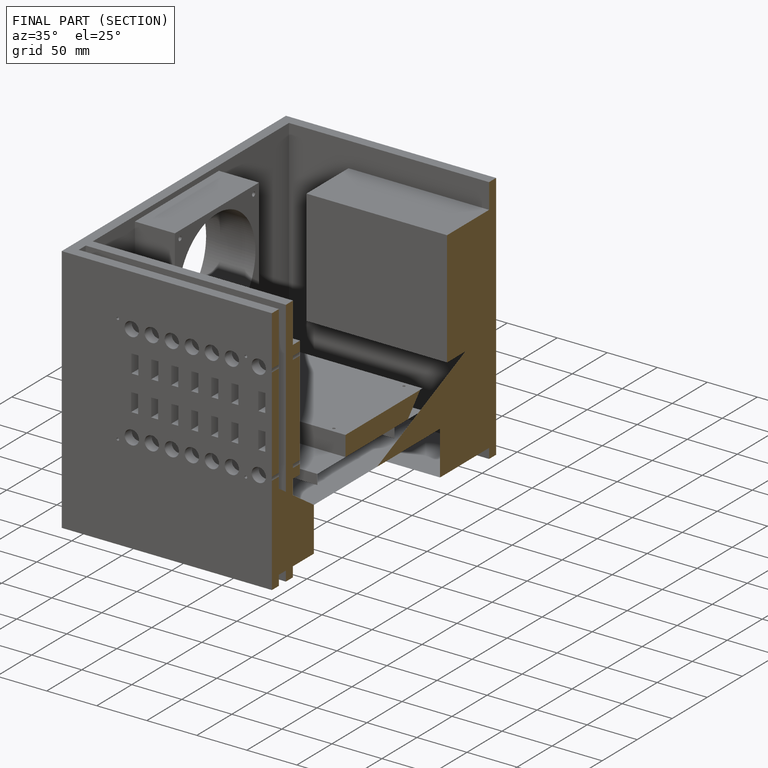
[diagram: finished part — half-section view (interior)]
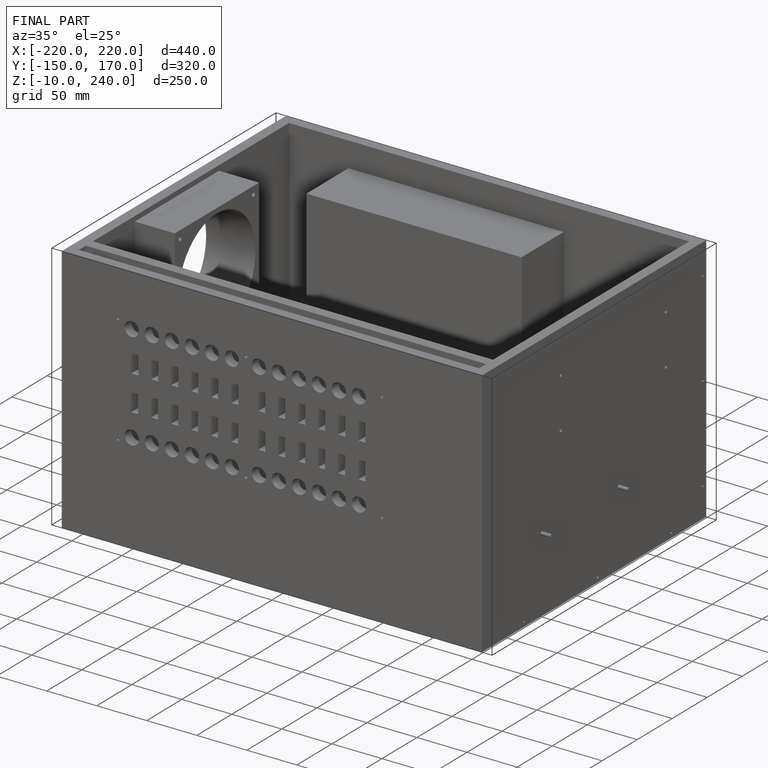
[diagram: finished part — iso view with bounding-box wireframe]
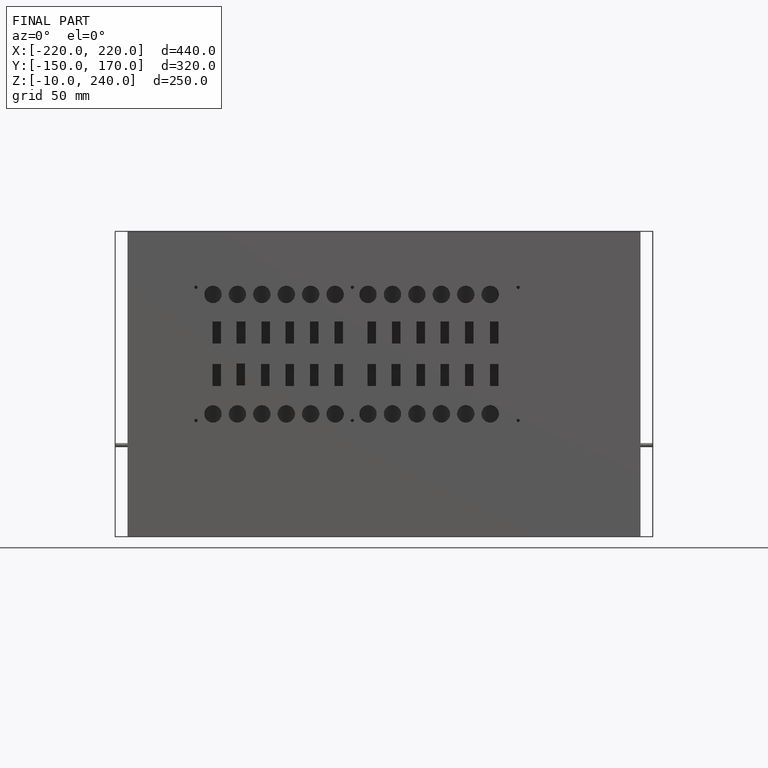
[diagram: finished part — front view with bounding-box wireframe]
